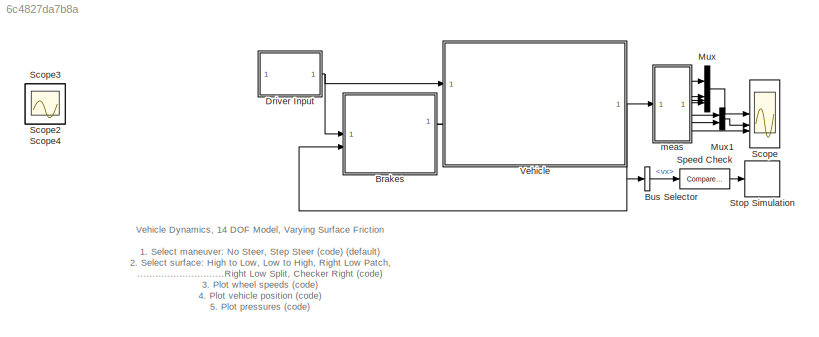
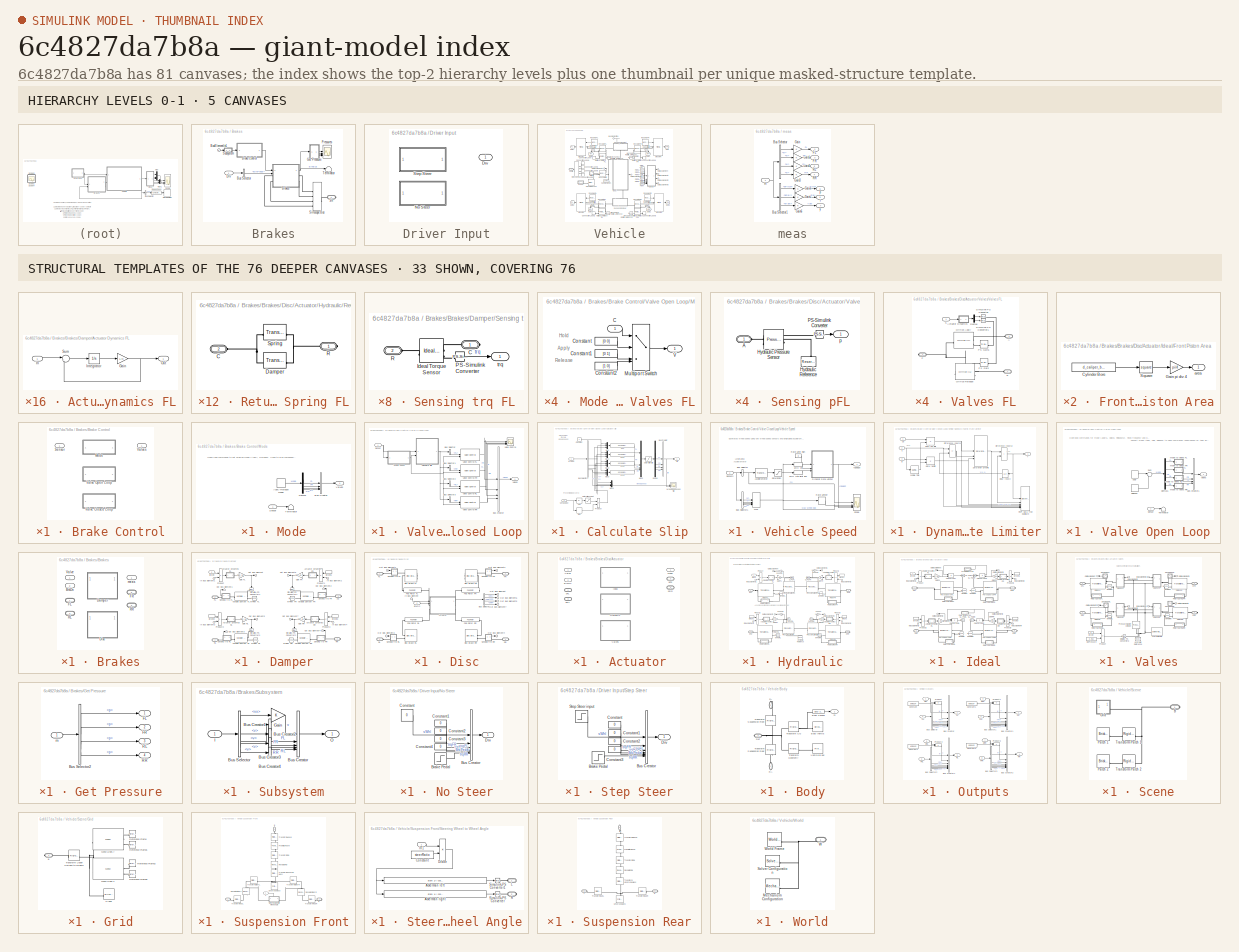
[diagram: thumbnail index - top-2 hierarchy levels (5 canvases) + 33 structural-template representatives of the remaining 76 canvases]
MODEL slx_6c4827da7b8a
KIND model
CONFIG AbsTol = 1e-3
CONFIG EnableMultiTasking = on
CONFIG MaxStep = 0.2
CONFIG PostLoadFcn = sm_vehicle_2axle_heave_roll_param\nsm_vehicle_2axle_heave_roll_scene\nsm_vehicle_2axle_heave_roll_config_maneuver(bdroot,VehicleData,'plateau');\nset_param([bdroot '/Vehicle'],'popup_surface_conditions','Checker Right');
CONFIG SolverName = ode23t
CONFIG StartFcn = tic
CONFIG StopFcn = Elapsed_Sim_Time = toc;
CONFIG StopTime = 14.2
BLOCK [SubSystem] Brakes
  AttributesFormatString = Disc, Pressure
BLOCK [SubSystem] Brakes/Brake Control
  AttributesFormatString = %<control_mode>
  LabelModeActiveChoice = Mode
  Variant = on
  VariantControl = Variant1
  VariantControlMode = label
BLOCK [Outport] Brakes/Brake Control/ Valves
  VectorParamsAs1DForOutWhenUnconnected = off
BLOCK [SubSystem] Brakes/Brake Control/Mode
  VariantControl = Mode
BLOCK [DiscretePulseGenerator] Brakes/Brake Control/Mode/Apply Release Mode
  Amplitude = [1 1 1 1]
  Period = 0.1
  PulseType = Time based
  PulseWidth = 60
BLOCK [BusCreator] Brakes/Brake Control/Mode/Bus Creator
  DisplayOption = bar
  InheritFromInputs = on
  Inputs = 4
BLOCK [Demux] Brakes/Brake Control/Mode/Demux
BLOCK [Inport] Brakes/Brake Control/Mode/Sensor
BLOCK [Terminator] Brakes/Brake Control/Mode/Terminator
BLOCK [Outport] Brakes/Brake Control/Mode/Valves
  VectorParamsAs1DForOutWhenUnconnected = off
BLOCK [Inport] Brakes/Brake Control/Sensor
BLOCK [SubSystem] Brakes/Brake Control/Valve Closed Loop
  VariantControl = Valve_Closed_Loop
BLOCK [BusCreator] Brakes/Brake Control/Valve Closed Loop/Bus Creator
  DisplayOption = bar
  InheritFromInputs = on
  Inputs = 4
BLOCK [BusSelector] Brakes/Brake Control/Valve Closed Loop/Bus Selector
  OutputSignals = FL
BLOCK [BusSelector] Brakes/Brake Control/Valve Closed Loop/Bus Selector1
  OutputSignals = FR
BLOCK [BusSelector] Brakes/Brake Control/Valve Closed Loop/Bus Selector2
  OutputSignals = RL
BLOCK [BusSelector] Brakes/Brake Control/Valve Closed Loop/Bus Selector3
  OutputSignals = RR
BLOCK [SubSystem] Brakes/Brake Control/Valve Closed Loop/Calculate Slip
BLOCK [Abs] Brakes/Brake Control/Valve Closed Loop/Calculate Slip/Abs
  SaturateOnIntegerOverflow = off
  ZeroCross = off
BLOCK [BusCreator] Brakes/Brake Control/Valve Closed Loop/Calculate Slip/Bus Creator
  DisplayOption = bar
  InheritFromInputs = on
  Inputs = 4
BLOCK [BusSelector] Brakes/Brake Control/Valve Closed Loop/Calculate Slip/Bus Selector1
  OutputSignals = FL.v,FR.v,RL.v,RR.v
BLOCK [Constant] Brakes/Brake Control/Valve Closed Loop/Calculate Slip/Constant
BLOCK [Demux] Brakes/Brake Control/Valve Closed Loop/Calculate Slip/Demux
BLOCK [Fcn] Brakes/Brake Control/Valve Closed Loop/Calculate Slip/Fcn
  Expr = abs(u(1)*u(2)-u(3))/u(3)
BLOCK [Fcn] Brakes/Brake Control/Valve Closed Loop/Calculate Slip/Fcn1
  Expr = abs(u(1)*u(2)-u(3))/u(3)
BLOCK [Fcn] Brakes/Brake Control/Valve Closed Loop/Calculate Slip/Fcn2
  Expr = abs(u(1)*u(2)-u(3))/u(3)
BLOCK [Fcn] Brakes/Brake Control/Valve Closed Loop/Calculate Slip/Fcn3
  Expr = abs(u(1)*u(2)-u(3))/u(3)
BLOCK [Mux] Brakes/Brake Control/Valve Closed Loop/Calculate Slip/Mux
  DisplayOption = bar
  Inputs = 3
BLOCK [Mux] Brakes/Brake Control/Valve Closed Loop/Calculate Slip/Mux1
  DisplayOption = bar
  Inputs = 3
BLOCK [Mux] Brakes/Brake Control/Valve Closed Loop/Calculate Slip/Mux2
  DisplayOption = bar
  Inputs = 3
BLOCK [Mux] Brakes/Brake Control/Valve Closed Loop/Calculate Slip/Mux3
  DisplayOption = bar
  Inputs = 3
BLOCK [Mux] Brakes/Brake Control/Valve Closed Loop/Calculate Slip/Mux4
  DisplayOption = bar
BLOCK [Mux] Brakes/Brake Control/Valve Closed Loop/Calculate Slip/Mux5
  DisplayOption = bar
BLOCK [Product] Brakes/Brake Control/Valve Closed Loop/Calculate Slip/Product
BLOCK [Saturate] Brakes/Brake Control/Valve Closed Loop/Calculate Slip/Saturation Slip
  LowerLimit = 0
  UpperLimit = 1
BLOCK [Saturate] Brakes/Brake Control/Valve Closed Loop/Calculate Slip/Saturation vsEst
  LowerLimit = eps
  UpperLimit = inf
  ZeroCross = off
BLOCK [Signum] Brakes/Brake Control/Valve Closed Loop/Calculate Slip/Sign
  ZeroCross = off
BLOCK [Outport] Brakes/Brake Control/Valve Closed Loop/Calculate Slip/Slip
  VectorParamsAs1DForOutWhenUnconnected = off
BLOCK [Inport] Brakes/Brake Control/Valve Closed Loop/Calculate Slip/VehSpdEst
  Port = 2
BLOCK [Scope] Brakes/Brake Control/Valve Closed Loop/Calculate Slip/Wheel Speeds and Slip
  ActiveDisplayYMaximum = 23.14687
  ActiveDisplayYMinimum = -2.4876
  DataLoggingVariableName = ScopeData2
  Floating = off
  GraphicalSettings = {"GraphicalSettings":{"LegacySettings":true,"Style":{"AxesScalingProperties":{"ScaleAxesLimitsAtStop":false},"Style":{"AxesColor":"[0 0 0]","ChannelNames":["",""],"ColorOrder":"[1 1 0.0666666666666667;0.0745098039215686 0.623529411764706 1;1 0.411764705882353 0.16078431372549;0.392156862745098 0.831372549019608 0.0745098039215686;0.717647058823529 0.274509803921569 1;0.0588235294117647 1 1;1 0.074...<+473ch>
  LayoutDimensionsString = [2 1]
  MultipleDisplayCache = [{"MaxYLimMag":23.14687,"MaxYLimReal":23.14687,"MinYLimMag":0,"MinYLimReal":-2.4876,"PlotAsMagnitudePhase":false,"ShowGrid":true,"ShowLegend":true,"Title":"%<SignalLabel>","YLabel":""},{"MaxYLimMag":31.375,"MaxYLimReal":0.6653,"MinYLimMag":0,"MinYLimReal":-0.07392,"PlotAsMagnitudePhase":false,"ShowGrid":true,"ShowLegend":true,"Title":"%<SignalLabel>","YLabel":""}]
  NumInputPorts = 2
  ShowLegend = on
  WasSavedAsWebScope = on
  WindowPosition = [1007 466 560 420]
BLOCK [Inport] Brakes/Brake Control/Valve Closed Loop/Calculate Slip/WhlSpd
BLOCK [Inport] Brakes/Brake Control/Valve Closed Loop/Sensor
BLOCK [Scope] Brakes/Brake Control/Valve Closed Loop/Valve Control
  ActiveDisplayYMaximum = 1.125
  ActiveDisplayYMinimum = -0.125
  DataLoggingVariableName = ScopeData1
  Floating = off
  GraphicalSettings = {"GraphicalSettings":{"LegacySettings":true,"Style":{"AxesScalingProperties":{"ScaleAxesLimitsAtStop":false},"Style":{"AxesColor":"[0 0 0]","ChannelNames":["","","",""],"ColorOrder":"[1 1 0.0666666666666667;0.0745098039215686 0.623529411764706 1;1 0.411764705882353 0.16078431372549;0.392156862745098 0.831372549019608 0.0745098039215686;0.717647058823529 0.274509803921569 1;0.0588235294117647 1 1;1...<+556ch>
  LayoutDimensionsString = [2 2]
  MultipleDisplayCache = [{"MaxYLimMag":1.125,"MaxYLimReal":1.125,"MinYLimMag":0,"MinYLimReal":-0.125,"PlotAsMagnitudePhase":false,"ShowGrid":true,"ShowLegend":true,"Title":"%<SignalLabel>","YLabel":""},{"MaxYLimMag":1,"MaxYLimReal":1.125,"MinYLimMag":0,"MinYLimReal":-0.125,"PlotAsMagnitudePhase":false,"ShowGrid":true,"ShowLegend":true,"Title":"%<SignalLabel>","YLabel":""},{"MaxYLimMag":1,"MaxYLimReal":1.125,"MinYLimMag":...<+297ch>
  NumInputPorts = 4
  ShowLegend = on
  WasSavedAsWebScope = on
  WindowPosition = [135 362 546 361]
BLOCK [Reference] Brakes/Brake Control/Valve Closed Loop/Valve Control FL  REF=sm_vehicle_utilities_lib/Valve Control  (lib defined in slx_7901a99a1966, slx_bde73e06ff5b)
  SourceBlock = sm_vehicle_utilities_lib/Valve Control
  SourceType = SubSystem
BLOCK [Reference] Brakes/Brake Control/Valve Closed Loop/Valve Control FR  REF=sm_vehicle_utilities_lib/Valve Control  (lib defined in slx_7901a99a1966, slx_bde73e06ff5b)
  SourceBlock = sm_vehicle_utilities_lib/Valve Control
  SourceType = SubSystem
BLOCK [Reference] Brakes/Brake Control/Valve Closed Loop/Valve Control RL  REF=sm_vehicle_utilities_lib/Valve Control  (lib defined in slx_7901a99a1966, slx_bde73e06ff5b)
  SourceBlock = sm_vehicle_utilities_lib/Valve Control
  SourceType = SubSystem
BLOCK [Reference] Brakes/Brake Control/Valve Closed Loop/Valve Control RR  REF=sm_vehicle_utilities_lib/Valve Control  (lib defined in slx_7901a99a1966, slx_bde73e06ff5b)
  SourceBlock = sm_vehicle_utilities_lib/Valve Control
  SourceType = SubSystem
BLOCK [Outport] Brakes/Brake Control/Valve Closed Loop/Valves
  VectorParamsAs1DForOutWhenUnconnected = off
BLOCK [SubSystem] Brakes/Brake Control/Valve Closed Loop/Vehicle Speed
BLOCK [Reference] Brakes/Brake Control/Valve Closed Loop/Vehicle Speed/Accelerometer  REF=simulink_extras/Additional
Linear/Transfer Fcn
(with initial states)
  SourceBlock = simulink_extras/Additional\nLinear/Transfer Fcn\n(with initial states)
  SourceType = Transfer Function with Initial States
BLOCK [BusSelector] Brakes/Brake Control/Valve Closed Loop/Vehicle Speed/Bus Selector
  OutputSignals = v
BLOCK [BusSelector] Brakes/Brake Control/Valve Closed Loop/Vehicle Speed/Bus Selector1
  OutputSignals = FL.v,FR.v,RL.v,RR.v
BLOCK [SubSystem] Brakes/Brake Control/Valve Closed Loop/Vehicle Speed/Dynamic Rate Limiter
BLOCK [UnitDelay] Brakes/Brake Control/Valve Closed Loop/Vehicle Speed/Dynamic Rate Limiter/Delay Input2
  Description = Store in Global RAM
  DisableCoverage = on
  InitialCondition = InitVehicle.Vehicle.vx
  NameLocation = top
  SampleTime = -1
BLOCK [Sum] Brakes/Brake Control/Valve Closed Loop/Vehicle Speed/Dynamic Rate Limiter/Difference Inputs1
  Description = Add in CPU
  DisableCoverage = on
  IconShape = rectangular
  Inputs = +-
  OutDataTypeStr = Inherit: Inherit via back propagation
BLOCK [Sum] Brakes/Brake Control/Valve Closed Loop/Vehicle Speed/Dynamic Rate Limiter/Difference Inputs2
  Description = Add in CPU
  IconShape = rectangular
  OutDataTypeStr = Inherit: Inherit via back propagation
BLOCK [DataTypeDuplicate] Brakes/Brake Control/Valve Closed Loop/Vehicle Speed/Dynamic Rate Limiter/FixPt Data Type Duplicate
  DisableCoverage = on
  NumInputPorts = 7
BLOCK [Reference] Brakes/Brake Control/Valve Closed Loop/Vehicle Speed/Dynamic Rate Limiter/Saturation Dynamic  REF=sl_discontinuities/Saturation
Dynamic
  SourceBlock = sl_discontinuities/Saturation\nDynamic
  SourceType = Saturation Dynamic
BLOCK [Outport] Brakes/Brake Control/Valve Closed Loop/Vehicle Speed/Dynamic Rate Limiter/Y
  InitialOutput = 0
  VectorParamsAs1DForOutWhenUnconnected = off
BLOCK [Product] Brakes/Brake Control/Valve Closed Loop/Vehicle Speed/Dynamic Rate Limiter/delta fall limit
  DisableCoverage = on
  Inputs = **
  OutDataTypeStr = Inherit: Inherit via back propagation
  SaturateOnIntegerOverflow = on
BLOCK [Product] Brakes/Brake Control/Valve Closed Loop/Vehicle Speed/Dynamic Rate Limiter/delta rise limit
  DisableCoverage = on
  Inputs = **
  OutDataTypeStr = Inherit: Inherit via back propagation
  SaturateOnIntegerOverflow = on
BLOCK [Inport] Brakes/Brake Control/Valve Closed Loop/Vehicle Speed/Dynamic Rate Limiter/lo
  Port = 3
BLOCK [SampleTimeMath] Brakes/Brake Control/Valve Closed Loop/Vehicle Speed/Dynamic Rate Limiter/sample time
  DisableCoverage = on
  TsampMathOp = Ts Only
  weightValue = 1
BLOCK [Inport] Brakes/Brake Control/Valve Closed Loop/Vehicle Speed/Dynamic Rate Limiter/u
  Port = 2
BLOCK [Inport] Brakes/Brake Control/Valve Closed Loop/Vehicle Speed/Dynamic Rate Limiter/up
BLOCK [MinMax] Brakes/Brake Control/Valve Closed Loop/Vehicle Speed/Max
  Function = max
  Inputs = 4
BLOCK [Constant] Brakes/Brake Control/Valve Closed Loop/Vehicle Speed/Rate Limit high
  Value = 8
BLOCK [RateLimiter] Brakes/Brake Control/Valve Closed Loop/Vehicle Speed/Rate Limiter
  FallingSlewLimit = -4
  RisingSlewLimit = 8
  SampleTimeMode = inherited
BLOCK [Saturate] Brakes/Brake Control/Valve Closed Loop/Vehicle Speed/Saturation
  LowerLimit = -inf
  UpperLimit = 0
BLOCK [Scope] Brakes/Brake Control/Valve Closed Loop/Vehicle Speed/Scope
  ActiveDisplayYMaximum = 22.93912
  ActiveDisplayYMinimum = -0.6179
  DataLoggingVariableName = ScopeData1
  Floating = off
  GraphicalSettings = {"GraphicalSettings":{"LegacySettings":true,"Style":{"AxesScalingProperties":{"ScaleAxesLimitsAtStop":false},"Style":{"AxesColor":"[0 0 0]","ChannelNames":[""],"ColorOrder":"[1 1 0.0666666666666667;0.0745098039215686 0.623529411764706 1;1 0.411764705882353 0.16078431372549;0.392156862745098 0.831372549019608 0.0745098039215686;0.717647058823529 0.274509803921569 1;0.0588235294117647 1 1;1 0.074509...<+433ch>
  MultipleDisplayCache = [{"MaxYLimMag":22.93912,"MaxYLimReal":22.93912,"MinYLimMag":0,"MinYLimReal":-0.6179,"PlotAsMagnitudePhase":false,"ShowGrid":true,"ShowLegend":true,"Title":"%<SignalLabel>","YLabel":""}]
  NumInputPorts = 4
  ShowLegend = on
  WasSavedAsWebScope = on
  WindowPosition = [400 257 562 505]
BLOCK [Inport] Brakes/Brake Control/Valve Closed Loop/Vehicle Speed/Sensors
BLOCK [ZeroOrderHold] Brakes/Brake Control/Valve Closed Loop/Vehicle Speed/ZOH rate limit low
  SampleTime = 1e-2
BLOCK [ZeroOrderHold] Brakes/Brake Control/Valve Closed Loop/Vehicle Speed/ZOH vel
  SampleTime = 1e-2
BLOCK [Outport] Brakes/Brake Control/Valve Closed Loop/Vehicle Speed/vSpdEst
  VectorParamsAs1DForOutWhenUnconnected = off
BLOCK [SubSystem] Brakes/Brake Control/Valve Open Loop
  VariantControl = Valve_Open_Loop
BLOCK [DiscretePulseGenerator] Brakes/Brake Control/Valve Open Loop/Apply
  Amplitude = [1 1 1 1]
  Period = 0.1
  PulseType = Time based
  PulseWidth = 6
BLOCK [BusCreator] Brakes/Brake Control/Valve Open Loop/Bus Creator1
  DisplayOption = bar
  InheritFromInputs = on
  Inputs = 4
BLOCK [Demux] Brakes/Brake Control/Valve Open Loop/Demux1
BLOCK [SubSystem] Brakes/Brake Control/Valve Open Loop/Mode to Valves FL
  NameLocation = top
BLOCK [Inport] Brakes/Brake Control/Valve Open Loop/Mode to Valves FL/C
  NameLocation = top
BLOCK [Constant] Brakes/Brake Control/Valve Open Loop/Mode to Valves FL/Constant
  Value = [0 0]
BLOCK [Constant] Brakes/Brake Control/Valve Open Loop/Mode to Valves FL/Constant1
  Value = [0 1]
BLOCK [Constant] Brakes/Brake Control/Valve Open Loop/Mode to Valves FL/Constant2
  Value = [1 0]
BLOCK [MultiPortSwitch] Brakes/Brake Control/Valve Open Loop/Mode to Valves FL/Multiport Switch
  DataPortOrder = Zero-based contiguous
  InputSameDT = off
  SaturateOnIntegerOverflow = off
  zeroidx = on
BLOCK [Outport] Brakes/Brake Control/Valve Open Loop/Mode to Valves FL/V
  VectorParamsAs1DForOutWhenUnconnected = off
BLOCK [SubSystem] Brakes/Brake Control/Valve Open Loop/Mode to Valves FR
  NameLocation = top
BLOCK [Inport] Brakes/Brake Control/Valve Open Loop/Mode to Valves FR/C
  NameLocation = top
BLOCK [Constant] Brakes/Brake Control/Valve Open Loop/Mode to Valves FR/Constant
  Value = [0 0]
BLOCK [Constant] Brakes/Brake Control/Valve Open Loop/Mode to Valves FR/Constant1
  Value = [0 1]
BLOCK [Constant] Brakes/Brake Control/Valve Open Loop/Mode to Valves FR/Constant2
  Value = [1 0]
BLOCK [MultiPortSwitch] Brakes/Brake Control/Valve Open Loop/Mode to Valves FR/Multiport Switch
  DataPortOrder = Zero-based contiguous
  InputSameDT = off
  SaturateOnIntegerOverflow = off
  zeroidx = on
BLOCK [Outport] Brakes/Brake Control/Valve Open Loop/Mode to Valves FR/V
  VectorParamsAs1DForOutWhenUnconnected = off
BLOCK [SubSystem] Brakes/Brake Control/Valve Open Loop/Mode to Valves RL
  NameLocation = top
BLOCK [Inport] Brakes/Brake Control/Valve Open Loop/Mode to Valves RL/C
  NameLocation = top
BLOCK [Constant] Brakes/Brake Control/Valve Open Loop/Mode to Valves RL/Constant
  Value = [0 0]
BLOCK [Constant] Brakes/Brake Control/Valve Open Loop/Mode to Valves RL/Constant1
  Value = [0 1]
BLOCK [Constant] Brakes/Brake Control/Valve Open Loop/Mode to Valves RL/Constant2
  Value = [1 0]
BLOCK [MultiPortSwitch] Brakes/Brake Control/Valve Open Loop/Mode to Valves RL/Multiport Switch
  DataPortOrder = Zero-based contiguous
  InputSameDT = off
  SaturateOnIntegerOverflow = off
  zeroidx = on
BLOCK [Outport] Brakes/Brake Control/Valve Open Loop/Mode to Valves RL/V
  VectorParamsAs1DForOutWhenUnconnected = off
BLOCK [SubSystem] Brakes/Brake Control/Valve Open Loop/Mode to Valves RR
BLOCK [Inport] Brakes/Brake Control/Valve Open Loop/Mode to Valves RR/C
  NameLocation = top
BLOCK [Constant] Brakes/Brake Control/Valve Open Loop/Mode to Valves RR/Constant
  Value = [0 0]
BLOCK [Constant] Brakes/Brake Control/Valve Open Loop/Mode to Valves RR/Constant1
  Value = [0 1]
BLOCK [Constant] Brakes/Brake Control/Valve Open Loop/Mode to Valves RR/Constant2
  Value = [1 0]
BLOCK [MultiPortSwitch] Brakes/Brake Control/Valve Open Loop/Mode to Valves RR/Multiport Switch
  DataPortOrder = Zero-based contiguous
  InputSameDT = off
  SaturateOnIntegerOverflow = off
  zeroidx = on
BLOCK [Outport] Brakes/Brake Control/Valve Open Loop/Mode to Valves RR/V
  VectorParamsAs1DForOutWhenUnconnected = off
BLOCK [DiscretePulseGenerator] Brakes/Brake Control/Valve Open Loop/Release
  Amplitude = [1 1 1 1]*2
  Period = 0.1
  PhaseDelay = 0.1*0.2
  PulseType = Time based
  PulseWidth = 6
BLOCK [Inport] Brakes/Brake Control/Valve Open Loop/Sensor
BLOCK [Sum] Brakes/Brake Control/Valve Open Loop/Sum
  Inputs = |++
BLOCK [Terminator] Brakes/Brake Control/Valve Open Loop/Terminator
BLOCK [Outport] Brakes/Brake Control/Valve Open Loop/Valves
  VectorParamsAs1DForOutWhenUnconnected = off
BLOCK [SubSystem] Brakes/Brakes
  AttributesFormatString = %<brake_type>, %<actuator_type>
  LabelModeActiveChoice = Disc
  Variant = on
  VariantControl = Variant1
  VariantControlMode = label
BLOCK [PMIOPort] Brakes/Brakes/ FL
  Side = Left
BLOCK [PMIOPort] Brakes/Brakes/ RL
  Port = 3
  Side = Left
BLOCK [Outport] Brakes/Brakes/ meas
  VectorParamsAs1DForOutWhenUnconnected = off
BLOCK [Inport] Brakes/Brakes/BrkOn
  Port = 2
BLOCK [SubSystem] Brakes/Brakes/Damper
  VariantControl = Damper
BLOCK [SubSystem] Brakes/Brakes/Damper/Actuator Dynamics FL
BLOCK [Gain] Brakes/Brakes/Damper/Actuator Dynamics FL/Gain
  Gain = 1./b
BLOCK [Inport] Brakes/Brakes/Damper/Actuator Dynamics FL/In
BLOCK [Integrator] Brakes/Brakes/Damper/Actuator Dynamics FL/Integrator
  InitialCondition = x_initial.*b
BLOCK [Outport] Brakes/Brakes/Damper/Actuator Dynamics FL/Out
  VectorParamsAs1DForOutWhenUnconnected = off
BLOCK [Sum] Brakes/Brakes/Damper/Actuator Dynamics FL/Sum
  InputSameDT = on
  Inputs = |+-
  OutDataTypeStr = Inherit: Same as first input
  SaturateOnIntegerOverflow = on
BLOCK [SubSystem] Brakes/Brakes/Damper/Actuator Dynamics FR
  NameLocation = top
BLOCK [Gain] Brakes/Brakes/Damper/Actuator Dynamics FR/Gain
  Gain = 1./b
BLOCK [Inport] Brakes/Brakes/Damper/Actuator Dynamics FR/In
BLOCK [Integrator] Brakes/Brakes/Damper/Actuator Dynamics FR/Integrator
  InitialCondition = x_initial.*b
BLOCK [Outport] Brakes/Brakes/Damper/Actuator Dynamics FR/Out
  VectorParamsAs1DForOutWhenUnconnected = off
BLOCK [Sum] Brakes/Brakes/Damper/Actuator Dynamics FR/Sum
  InputSameDT = on
  Inputs = |+-
  OutDataTypeStr = Inherit: Same as first input
  SaturateOnIntegerOverflow = on
BLOCK [SubSystem] Brakes/Brakes/Damper/Actuator Dynamics RL
BLOCK [Gain] Brakes/Brakes/Damper/Actuator Dynamics RL/Gain
  Gain = 1./b
BLOCK [Inport] Brakes/Brakes/Damper/Actuator Dynamics RL/In
BLOCK [Integrator] Brakes/Brakes/Damper/Actuator Dynamics RL/Integrator
  InitialCondition = x_initial.*b
BLOCK [Outport] Brakes/Brakes/Damper/Actuator Dynamics RL/Out
  VectorParamsAs1DForOutWhenUnconnected = off
BLOCK [Sum] Brakes/Brakes/Damper/Actuator Dynamics RL/Sum
  InputSameDT = on
  Inputs = |+-
  OutDataTypeStr = Inherit: Same as first input
  SaturateOnIntegerOverflow = on
BLOCK [SubSystem] Brakes/Brakes/Damper/Actuator Dynamics RR
BLOCK [Gain] Brakes/Brakes/Damper/Actuator Dynamics RR/Gain
  Gain = 1./b
BLOCK [Inport] Brakes/Brakes/Damper/Actuator Dynamics RR/In
BLOCK [Integrator] Brakes/Brakes/Damper/Actuator Dynamics RR/Integrator
  InitialCondition = x_initial.*b
BLOCK [Outport] Brakes/Brakes/Damper/Actuator Dynamics RR/Out
  VectorParamsAs1DForOutWhenUnconnected = off
BLOCK [Sum] Brakes/Brakes/Damper/Actuator Dynamics RR/Sum
  InputSameDT = on
  Inputs = |+-
  OutDataTypeStr = Inherit: Same as first input
  SaturateOnIntegerOverflow = on
BLOCK [Inport] Brakes/Brakes/Damper/BrkOn
  Port = 2
BLOCK [InportShadow] Brakes/Brakes/Damper/BrkOn1
  Port = 2
BLOCK [InportShadow] Brakes/Brakes/Damper/BrkOn2
  Port = 2
BLOCK [InportShadow] Brakes/Brakes/Damper/BrkOn3
  Port = 2
BLOCK [PMIOPort] Brakes/Brakes/Damper/FL
  Side = Left
BLOCK [PMIOPort] Brakes/Brakes/Damper/FR
  Port = 2
  Side = Right
BLOCK [Gain] Brakes/Brakes/Damper/Gain FL
  Gain = max_visc_frict
BLOCK [Gain] Brakes/Brakes/Damper/Gain FR
  Gain = max_visc_frict
  NameLocation = top
BLOCK [Gain] Brakes/Brakes/Damper/Gain RL
  Gain = max_visc_frict
BLOCK [Gain] Brakes/Brakes/Damper/Gain RR
  Gain = max_visc_frict
BLOCK [Inport] Brakes/Brakes/Damper/In Bus Element1
BLOCK [Inport] Brakes/Brakes/Damper/In Bus Element2
BLOCK [Inport] Brakes/Brakes/Damper/In Bus Element3
BLOCK [Inport] Brakes/Brakes/Damper/In Bus Element4
BLOCK [Reference] Brakes/Brakes/Damper/MRRef FL  REF=fl_lib/Mechanical/Rotational Elements/Mechanical
Rotational Reference
  SourceBlock = fl_lib/Mechanical/Rotational Elements/Mechanical\nRotational Reference
  SourceType = Mechanical\nRotational Reference
BLOCK [Reference] Brakes/Brakes/Damper/MRRef FR  REF=fl_lib/Mechanical/Rotational Elements/Mechanical
Rotational Reference
  SourceBlock = fl_lib/Mechanical/Rotational Elements/Mechanical\nRotational Reference
  SourceType = Mechanical\nRotational Reference
BLOCK [Reference] Brakes/Brakes/Damper/MRRef RL  REF=fl_lib/Mechanical/Rotational Elements/Mechanical
Rotational Reference
  SourceBlock = fl_lib/Mechanical/Rotational Elements/Mechanical\nRotational Reference
  SourceType = Mechanical\nRotational Reference
BLOCK [Reference] Brakes/Brakes/Damper/MRRef RR  REF=fl_lib/Mechanical/Rotational Elements/Mechanical
Rotational Reference
  SourceBlock = fl_lib/Mechanical/Rotational Elements/Mechanical\nRotational Reference
  SourceType = Mechanical\nRotational Reference
BLOCK [Outport] Brakes/Brakes/Damper/Out Bus Element
  VectorParamsAs1DForOutWhenUnconnected = off
BLOCK [Outport] Brakes/Brakes/Damper/Out Bus Element1
  VectorParamsAs1DForOutWhenUnconnected = off
BLOCK [Outport] Brakes/Brakes/Damper/Out Bus Element2
  VectorParamsAs1DForOutWhenUnconnected = off
BLOCK [Outport] Brakes/Brakes/Damper/Out Bus Element3
  VectorParamsAs1DForOutWhenUnconnected = off
BLOCK [Outport] Brakes/Brakes/Damper/Out Bus Element4
  VectorParamsAs1DForOutWhenUnconnected = off
BLOCK [Outport] Brakes/Brakes/Damper/Out Bus Element5
  VectorParamsAs1DForOutWhenUnconnected = off
BLOCK [Outport] Brakes/Brakes/Damper/Out Bus Element6
  VectorParamsAs1DForOutWhenUnconnected = off
BLOCK [Outport] Brakes/Brakes/Damper/Out Bus Element7
  VectorParamsAs1DForOutWhenUnconnected = off
BLOCK [Product] Brakes/Brakes/Damper/Product
BLOCK [Product] Brakes/Brakes/Damper/Product1
BLOCK [Product] Brakes/Brakes/Damper/Product2
BLOCK [Product] Brakes/Brakes/Damper/Product3
BLOCK [PMIOPort] Brakes/Brakes/Damper/RL
  Port = 3
  Side = Left
BLOCK [PMIOPort] Brakes/Brakes/Damper/RR
  Port = 4
  Side = Right
BLOCK [SubSystem] Brakes/Brakes/Damper/Sensing trq FL
BLOCK [PMIOPort] Brakes/Brakes/Damper/Sensing trq FL/C
  NameLocation = top
  Side = Right
BLOCK [Reference] Brakes/Brakes/Damper/Sensing trq FL/Ideal Torque Sensor  REF=fl_lib/Mechanical/Mechanical Sensors/Ideal Torque Sensor
  SourceBlock = fl_lib/Mechanical/Mechanical Sensors/Ideal Torque Sensor
  SourceType = Ideal Torque Sensor
BLOCK [Reference] Brakes/Brakes/Damper/Sensing trq FL/PS-Simulink Converter  REF=nesl_utility/PS-Simulink
Converter
  SourceBlock = nesl_utility/PS-Simulink\nConverter
  SourceType = PS-Simulink\nConverter
BLOCK [PMIOPort] Brakes/Brakes/Damper/Sensing trq FL/R
  Port = 2
  Side = Left
BLOCK [Outport] Brakes/Brakes/Damper/Sensing trq FL/trq
  VectorParamsAs1DForOutWhenUnconnected = off
BLOCK [SubSystem] Brakes/Brakes/Damper/Sensing trq FR
BLOCK [PMIOPort] Brakes/Brakes/Damper/Sensing trq FR/C
  NameLocation = top
  Side = Right
BLOCK [Reference] Brakes/Brakes/Damper/Sensing trq FR/Ideal Torque Sensor  REF=fl_lib/Mechanical/Mechanical Sensors/Ideal Torque Sensor
  SourceBlock = fl_lib/Mechanical/Mechanical Sensors/Ideal Torque Sensor
  SourceType = Ideal Torque Sensor
BLOCK [Reference] Brakes/Brakes/Damper/Sensing trq FR/PS-Simulink Converter  REF=nesl_utility/PS-Simulink
Converter
  SourceBlock = nesl_utility/PS-Simulink\nConverter
  SourceType = PS-Simulink\nConverter
BLOCK [PMIOPort] Brakes/Brakes/Damper/Sensing trq FR/R
  Port = 2
  Side = Left
BLOCK [Outport] Brakes/Brakes/Damper/Sensing trq FR/trq
  VectorParamsAs1DForOutWhenUnconnected = off
BLOCK [SubSystem] Brakes/Brakes/Damper/Sensing trq RL
BLOCK [PMIOPort] Brakes/Brakes/Damper/Sensing trq RL/C
  NameLocation = top
  Side = Right
BLOCK [Reference] Brakes/Brakes/Damper/Sensing trq RL/Ideal Torque Sensor  REF=fl_lib/Mechanical/Mechanical Sensors/Ideal Torque Sensor
  SourceBlock = fl_lib/Mechanical/Mechanical Sensors/Ideal Torque Sensor
  SourceType = Ideal Torque Sensor
BLOCK [Reference] Brakes/Brakes/Damper/Sensing trq RL/PS-Simulink Converter  REF=nesl_utility/PS-Simulink
Converter
  SourceBlock = nesl_utility/PS-Simulink\nConverter
  SourceType = PS-Simulink\nConverter
BLOCK [PMIOPort] Brakes/Brakes/Damper/Sensing trq RL/R
  Port = 2
  Side = Left
BLOCK [Outport] Brakes/Brakes/Damper/Sensing trq RL/trq
  VectorParamsAs1DForOutWhenUnconnected = off
BLOCK [SubSystem] Brakes/Brakes/Damper/Sensing trq RR
BLOCK [PMIOPort] Brakes/Brakes/Damper/Sensing trq RR/C
  NameLocation = top
  Side = Right
BLOCK [Reference] Brakes/Brakes/Damper/Sensing trq RR/Ideal Torque Sensor  REF=fl_lib/Mechanical/Mechanical Sensors/Ideal Torque Sensor
  SourceBlock = fl_lib/Mechanical/Mechanical Sensors/Ideal Torque Sensor
  SourceType = Ideal Torque Sensor
BLOCK [Reference] Brakes/Brakes/Damper/Sensing trq RR/PS-Simulink Converter  REF=nesl_utility/PS-Simulink
Converter
  SourceBlock = nesl_utility/PS-Simulink\nConverter
  SourceType = PS-Simulink\nConverter
BLOCK [PMIOPort] Brakes/Brakes/Damper/Sensing trq RR/R
  Port = 2
  Side = Left
BLOCK [Outport] Brakes/Brakes/Damper/Sensing trq RR/trq
  VectorParamsAs1DForOutWhenUnconnected = off
BLOCK [Reference] Brakes/Brakes/Damper/Simulink-PS Converter1  REF=nesl_utility/Simulink-PS
Converter
  NameLocation = right
  SourceBlock = nesl_utility/Simulink-PS\nConverter
  SourceType = Simulink-PS\nConverter
BLOCK [Reference] Brakes/Brakes/Damper/Simulink-PS Converter2  REF=nesl_utility/Simulink-PS
Converter
  NameLocation = right
  SourceBlock = nesl_utility/Simulink-PS\nConverter
  SourceType = Simulink-PS\nConverter
BLOCK [Reference] Brakes/Brakes/Damper/Simulink-PS Converter3  REF=nesl_utility/Simulink-PS
Converter
  NameLocation = left
  SourceBlock = nesl_utility/Simulink-PS\nConverter
  SourceType = Simulink-PS\nConverter
BLOCK [Reference] Brakes/Brakes/Damper/Simulink-PS Converter4  REF=nesl_utility/Simulink-PS
Converter
  NameLocation = left
  SourceBlock = nesl_utility/Simulink-PS\nConverter
  SourceType = Simulink-PS\nConverter
BLOCK [Reference] Brakes/Brakes/Damper/Variable Damper FL  REF=sdl_lib/Couplings & Drives/Springs & Dampers/Variable Rotational
Damper
  SourceBlock = sdl_lib/Couplings & Drives/Springs & Dampers/Variable Rotational\nDamper
  SourceType = Variable Rotational\nDamper
BLOCK [Reference] Brakes/Brakes/Damper/Variable Damper FR  REF=sdl_lib/Couplings & Drives/Springs & Dampers/Variable Rotational
Damper
  SourceBlock = sdl_lib/Couplings & Drives/Springs & Dampers/Variable Rotational\nDamper
  SourceType = Variable Rotational\nDamper
BLOCK [Reference] Brakes/Brakes/Damper/Variable Damper RL  REF=sdl_lib/Couplings & Drives/Springs & Dampers/Variable Rotational
Damper
  SourceBlock = sdl_lib/Couplings & Drives/Springs & Dampers/Variable Rotational\nDamper
  SourceType = Variable Rotational\nDamper
BLOCK [Reference] Brakes/Brakes/Damper/Variable Damper RR  REF=sdl_lib/Couplings & Drives/Springs & Dampers/Variable Rotational
Damper
  SourceBlock = sdl_lib/Couplings & Drives/Springs & Dampers/Variable Rotational\nDamper
  SourceType = Variable Rotational\nDamper
BLOCK [SubSystem] Brakes/Brakes/Disc
  Tag = PublishSubsystem
  VariantControl = Disc
BLOCK [SubSystem] Brakes/Brakes/Disc/Actuator
  AttributesFormatString = %<ActiveVariant>
  LabelModeActiveChoice = Hydraulic
  Variant = on
  VariantControl = Function
  VariantControlMode = label
BLOCK [Inport] Brakes/Brakes/Disc/Actuator/BrkOn
  Port = 2
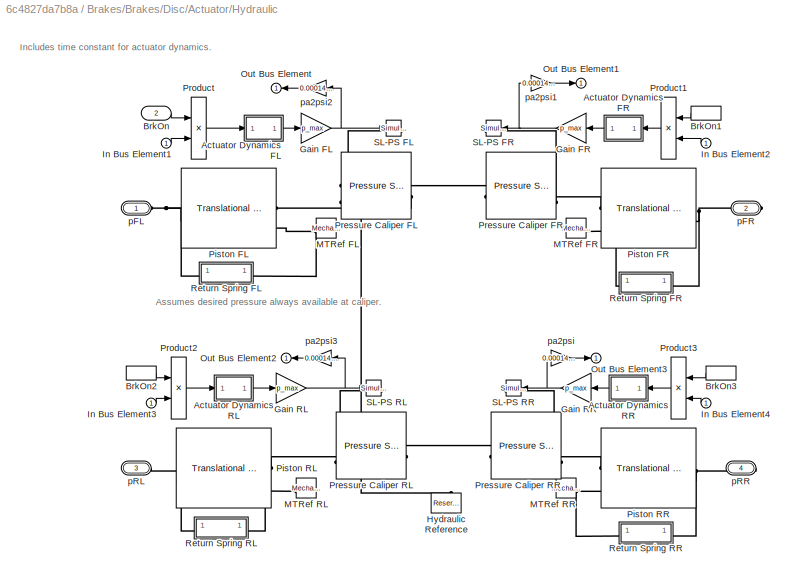
BLOCK [SubSystem] Brakes/Brakes/Disc/Actuator/Hydraulic
  VariantControl = Hydraulic
BLOCK [SubSystem] Brakes/Brakes/Disc/Actuator/Hydraulic/Actuator Dynamics FL
BLOCK [Gain] Brakes/Brakes/Disc/Actuator/Hydraulic/Actuator Dynamics FL/Gain
  Gain = 1./b
BLOCK [Inport] Brakes/Brakes/Disc/Actuator/Hydraulic/Actuator Dynamics FL/In
BLOCK [Integrator] Brakes/Brakes/Disc/Actuator/Hydraulic/Actuator Dynamics FL/Integrator
  InitialCondition = x_initial.*b
BLOCK [Outport] Brakes/Brakes/Disc/Actuator/Hydraulic/Actuator Dynamics FL/Out
  VectorParamsAs1DForOutWhenUnconnected = off
BLOCK [Sum] Brakes/Brakes/Disc/Actuator/Hydraulic/Actuator Dynamics FL/Sum
  InputSameDT = on
  Inputs = |+-
  OutDataTypeStr = Inherit: Same as first input
  SaturateOnIntegerOverflow = on
BLOCK [SubSystem] Brakes/Brakes/Disc/Actuator/Hydraulic/Actuator Dynamics FR
BLOCK [Gain] Brakes/Brakes/Disc/Actuator/Hydraulic/Actuator Dynamics FR/Gain
  Gain = 1./b
BLOCK [Inport] Brakes/Brakes/Disc/Actuator/Hydraulic/Actuator Dynamics FR/In
BLOCK [Integrator] Brakes/Brakes/Disc/Actuator/Hydraulic/Actuator Dynamics FR/Integrator
  InitialCondition = x_initial.*b
BLOCK [Outport] Brakes/Brakes/Disc/Actuator/Hydraulic/Actuator Dynamics FR/Out
  VectorParamsAs1DForOutWhenUnconnected = off
BLOCK [Sum] Brakes/Brakes/Disc/Actuator/Hydraulic/Actuator Dynamics FR/Sum
  InputSameDT = on
  Inputs = |+-
  OutDataTypeStr = Inherit: Same as first input
  SaturateOnIntegerOverflow = on
BLOCK [SubSystem] Brakes/Brakes/Disc/Actuator/Hydraulic/Actuator Dynamics RL
BLOCK [Gain] Brakes/Brakes/Disc/Actuator/Hydraulic/Actuator Dynamics RL/Gain
  Gain = 1./b
BLOCK [Inport] Brakes/Brakes/Disc/Actuator/Hydraulic/Actuator Dynamics RL/In
BLOCK [Integrator] Brakes/Brakes/Disc/Actuator/Hydraulic/Actuator Dynamics RL/Integrator
  InitialCondition = x_initial.*b
BLOCK [Outport] Brakes/Brakes/Disc/Actuator/Hydraulic/Actuator Dynamics RL/Out
  VectorParamsAs1DForOutWhenUnconnected = off
BLOCK [Sum] Brakes/Brakes/Disc/Actuator/Hydraulic/Actuator Dynamics RL/Sum
  InputSameDT = on
  Inputs = |+-
  OutDataTypeStr = Inherit: Same as first input
  SaturateOnIntegerOverflow = on
BLOCK [SubSystem] Brakes/Brakes/Disc/Actuator/Hydraulic/Actuator Dynamics RR
BLOCK [Gain] Brakes/Brakes/Disc/Actuator/Hydraulic/Actuator Dynamics RR/Gain
  Gain = 1./b
BLOCK [Inport] Brakes/Brakes/Disc/Actuator/Hydraulic/Actuator Dynamics RR/In
BLOCK [Integrator] Brakes/Brakes/Disc/Actuator/Hydraulic/Actuator Dynamics RR/Integrator
  InitialCondition = x_initial.*b
BLOCK [Outport] Brakes/Brakes/Disc/Actuator/Hydraulic/Actuator Dynamics RR/Out
  VectorParamsAs1DForOutWhenUnconnected = off
BLOCK [Sum] Brakes/Brakes/Disc/Actuator/Hydraulic/Actuator Dynamics RR/Sum
  InputSameDT = on
  Inputs = |+-
  OutDataTypeStr = Inherit: Same as first input
  SaturateOnIntegerOverflow = on
BLOCK [Inport] Brakes/Brakes/Disc/Actuator/Hydraulic/BrkOn
  NameLocation = top
  Port = 2
BLOCK [InportShadow] Brakes/Brakes/Disc/Actuator/Hydraulic/BrkOn1
  NameLocation = top
  Port = 2
BLOCK [InportShadow] Brakes/Brakes/Disc/Actuator/Hydraulic/BrkOn2
  NameLocation = top
  Port = 2
BLOCK [InportShadow] Brakes/Brakes/Disc/Actuator/Hydraulic/BrkOn3
  NameLocation = top
  Port = 2
BLOCK [Gain] Brakes/Brakes/Disc/Actuator/Hydraulic/Gain FL
  Gain = p_max
BLOCK [Gain] Brakes/Brakes/Disc/Actuator/Hydraulic/Gain FR
  Gain = p_max
BLOCK [Gain] Brakes/Brakes/Disc/Actuator/Hydraulic/Gain RL
  Gain = p_max
BLOCK [Gain] Brakes/Brakes/Disc/Actuator/Hydraulic/Gain RR
  Gain = p_max
BLOCK [Reference] Brakes/Brakes/Disc/Actuator/Hydraulic/Hydraulic Reference  REF=fl_lib/Isothermal Liquid/Elements/Reservoir (IL)
  LibrarySourceBlock = fl_lib/Hydraulic/Hydraulic Elements/Hydraulic Reference
  NameLocation = right
  SourceBlock = fl_lib/Isothermal Liquid/Elements/Reservoir (IL)
  SourceType = Reservoir (IL)
BLOCK [Inport] Brakes/Brakes/Disc/Actuator/Hydraulic/In Bus Element1
BLOCK [Inport] Brakes/Brakes/Disc/Actuator/Hydraulic/In Bus Element2
BLOCK [Inport] Brakes/Brakes/Disc/Actuator/Hydraulic/In Bus Element3
BLOCK [Inport] Brakes/Brakes/Disc/Actuator/Hydraulic/In Bus Element4
BLOCK [Reference] Brakes/Brakes/Disc/Actuator/Hydraulic/MTRef FL  REF=fl_lib/Mechanical/Translational
Elements/Mechanical
Translational
Reference
  SourceBlock = fl_lib/Mechanical/Translational\nElements/Mechanical\nTranslational\nReference
  SourceType = Mechanical\nTranslational\nReference
BLOCK [Reference] Brakes/Brakes/Disc/Actuator/Hydraulic/MTRef FR  REF=fl_lib/Mechanical/Translational
Elements/Mechanical
Translational
Reference
  SourceBlock = fl_lib/Mechanical/Translational\nElements/Mechanical\nTranslational\nReference
  SourceType = Mechanical\nTranslational\nReference
BLOCK [Reference] Brakes/Brakes/Disc/Actuator/Hydraulic/MTRef RL  REF=fl_lib/Mechanical/Translational
Elements/Mechanical
Translational
Reference
  SourceBlock = fl_lib/Mechanical/Translational\nElements/Mechanical\nTranslational\nReference
  SourceType = Mechanical\nTranslational\nReference
BLOCK [Reference] Brakes/Brakes/Disc/Actuator/Hydraulic/MTRef RR  REF=fl_lib/Mechanical/Translational
Elements/Mechanical
Translational
Reference
  SourceBlock = fl_lib/Mechanical/Translational\nElements/Mechanical\nTranslational\nReference
  SourceType = Mechanical\nTranslational\nReference
BLOCK [Outport] Brakes/Brakes/Disc/Actuator/Hydraulic/Out Bus Element
  VectorParamsAs1DForOutWhenUnconnected = off
BLOCK [Outport] Brakes/Brakes/Disc/Actuator/Hydraulic/Out Bus Element1
  VectorParamsAs1DForOutWhenUnconnected = off
BLOCK [Outport] Brakes/Brakes/Disc/Actuator/Hydraulic/Out Bus Element2
  VectorParamsAs1DForOutWhenUnconnected = off
BLOCK [Outport] Brakes/Brakes/Disc/Actuator/Hydraulic/Out Bus Element3
  VectorParamsAs1DForOutWhenUnconnected = off
BLOCK [Reference] Brakes/Brakes/Disc/Actuator/Hydraulic/Piston FL  REF=fl_lib/Isothermal Liquid/Elements/Translational
Mechanical Converter
(IL)
  LibrarySourceBlock = fl_lib/Hydraulic/Hydraulic Elements/Translational\nHydro-Mechanical\nConverter
  SourceBlock = fl_lib/Isothermal Liquid/Elements/Translational\nMechanical Converter\n(IL)
  SourceType = Translational\nMechanical Converter\n(IL)
BLOCK [Reference] Brakes/Brakes/Disc/Actuator/Hydraulic/Piston FR  REF=fl_lib/Isothermal Liquid/Elements/Translational
Mechanical Converter
(IL)
  LibrarySourceBlock = fl_lib/Hydraulic/Hydraulic Elements/Translational\nHydro-Mechanical\nConverter
  SourceBlock = fl_lib/Isothermal Liquid/Elements/Translational\nMechanical Converter\n(IL)
  SourceType = Translational\nMechanical Converter\n(IL)
BLOCK [Reference] Brakes/Brakes/Disc/Actuator/Hydraulic/Piston RL  REF=fl_lib/Isothermal Liquid/Elements/Translational
Mechanical Converter
(IL)
  LibrarySourceBlock = fl_lib/Hydraulic/Hydraulic Elements/Translational\nHydro-Mechanical\nConverter
  NameLocation = top
  SourceBlock = fl_lib/Isothermal Liquid/Elements/Translational\nMechanical Converter\n(IL)
  SourceType = Translational\nMechanical Converter\n(IL)
BLOCK [Reference] Brakes/Brakes/Disc/Actuator/Hydraulic/Piston RR  REF=fl_lib/Isothermal Liquid/Elements/Translational
Mechanical Converter
(IL)
  LibrarySourceBlock = fl_lib/Hydraulic/Hydraulic Elements/Translational\nHydro-Mechanical\nConverter
  NameLocation = top
  SourceBlock = fl_lib/Isothermal Liquid/Elements/Translational\nMechanical Converter\n(IL)
  SourceType = Translational\nMechanical Converter\n(IL)
BLOCK [Reference] Brakes/Brakes/Disc/Actuator/Hydraulic/Pressure Caliper FL  REF=fl_lib/Isothermal Liquid/Sources/Pressure Source (IL)
  LibrarySourceBlock = fl_lib/Hydraulic/Hydraulic Sources/Hydraulic Pressure\nSource
  SourceBlock = fl_lib/Isothermal Liquid/Sources/Pressure Source (IL)
  SourceType = Pressure Source (IL)
BLOCK [Reference] Brakes/Brakes/Disc/Actuator/Hydraulic/Pressure Caliper FR  REF=fl_lib/Isothermal Liquid/Sources/Pressure Source (IL)
  LibrarySourceBlock = fl_lib/Hydraulic/Hydraulic Sources/Hydraulic Pressure\nSource
  SourceBlock = fl_lib/Isothermal Liquid/Sources/Pressure Source (IL)
  SourceType = Pressure Source (IL)
BLOCK [Reference] Brakes/Brakes/Disc/Actuator/Hydraulic/Pressure Caliper RL  REF=fl_lib/Isothermal Liquid/Sources/Pressure Source (IL)
  LibrarySourceBlock = fl_lib/Hydraulic/Hydraulic Sources/Hydraulic Pressure\nSource
  SourceBlock = fl_lib/Isothermal Liquid/Sources/Pressure Source (IL)
  SourceType = Pressure Source (IL)
BLOCK [Reference] Brakes/Brakes/Disc/Actuator/Hydraulic/Pressure Caliper RR  REF=fl_lib/Isothermal Liquid/Sources/Pressure Source (IL)
  LibrarySourceBlock = fl_lib/Hydraulic/Hydraulic Sources/Hydraulic Pressure\nSource
  SourceBlock = fl_lib/Isothermal Liquid/Sources/Pressure Source (IL)
  SourceType = Pressure Source (IL)
BLOCK [Product] Brakes/Brakes/Disc/Actuator/Hydraulic/Product
BLOCK [Product] Brakes/Brakes/Disc/Actuator/Hydraulic/Product1
BLOCK [Product] Brakes/Brakes/Disc/Actuator/Hydraulic/Product2
BLOCK [Product] Brakes/Brakes/Disc/Actuator/Hydraulic/Product3
BLOCK [SubSystem] Brakes/Brakes/Disc/Actuator/Hydraulic/Return Spring FL
BLOCK [PMIOPort] Brakes/Brakes/Disc/Actuator/Hydraulic/Return Spring FL/C
  Port = 2
  Side = Left
BLOCK [Reference] Brakes/Brakes/Disc/Actuator/Hydraulic/Return Spring FL/Damper  REF=fl_lib/Mechanical/Translational
Elements/Translational Damper
  SourceBlock = fl_lib/Mechanical/Translational\nElements/Translational Damper
  SourceType = Translational Damper
BLOCK [PMIOPort] Brakes/Brakes/Disc/Actuator/Hydraulic/Return Spring FL/R
  Side = Right
BLOCK [Reference] Brakes/Brakes/Disc/Actuator/Hydraulic/Return Spring FL/Spring  REF=fl_lib/Mechanical/Translational
Elements/Translational Spring
  SourceBlock = fl_lib/Mechanical/Translational\nElements/Translational Spring
  SourceType = Translational Spring
BLOCK [SubSystem] Brakes/Brakes/Disc/Actuator/Hydraulic/Return Spring FR
BLOCK [PMIOPort] Brakes/Brakes/Disc/Actuator/Hydraulic/Return Spring FR/C
  Port = 2
  Side = Left
BLOCK [Reference] Brakes/Brakes/Disc/Actuator/Hydraulic/Return Spring FR/Damper  REF=fl_lib/Mechanical/Translational
Elements/Translational Damper
  SourceBlock = fl_lib/Mechanical/Translational\nElements/Translational Damper
  SourceType = Translational Damper
BLOCK [PMIOPort] Brakes/Brakes/Disc/Actuator/Hydraulic/Return Spring FR/R
  Side = Right
BLOCK [Reference] Brakes/Brakes/Disc/Actuator/Hydraulic/Return Spring FR/Spring  REF=fl_lib/Mechanical/Translational
Elements/Translational Spring
  SourceBlock = fl_lib/Mechanical/Translational\nElements/Translational Spring
  SourceType = Translational Spring
BLOCK [SubSystem] Brakes/Brakes/Disc/Actuator/Hydraulic/Return Spring RL
BLOCK [PMIOPort] Brakes/Brakes/Disc/Actuator/Hydraulic/Return Spring RL/C
  Port = 2
  Side = Left
BLOCK [Reference] Brakes/Brakes/Disc/Actuator/Hydraulic/Return Spring RL/Damper  REF=fl_lib/Mechanical/Translational
Elements/Translational Damper
  SourceBlock = fl_lib/Mechanical/Translational\nElements/Translational Damper
  SourceType = Translational Damper
BLOCK [PMIOPort] Brakes/Brakes/Disc/Actuator/Hydraulic/Return Spring RL/R
  Side = Right
BLOCK [Reference] Brakes/Brakes/Disc/Actuator/Hydraulic/Return Spring RL/Spring  REF=fl_lib/Mechanical/Translational
Elements/Translational Spring
  SourceBlock = fl_lib/Mechanical/Translational\nElements/Translational Spring
  SourceType = Translational Spring
BLOCK [SubSystem] Brakes/Brakes/Disc/Actuator/Hydraulic/Return Spring RR
BLOCK [PMIOPort] Brakes/Brakes/Disc/Actuator/Hydraulic/Return Spring RR/C
  Port = 2
  Side = Left
BLOCK [Reference] Brakes/Brakes/Disc/Actuator/Hydraulic/Return Spring RR/Damper  REF=fl_lib/Mechanical/Translational
Elements/Translational Damper
  SourceBlock = fl_lib/Mechanical/Translational\nElements/Translational Damper
  SourceType = Translational Damper
BLOCK [PMIOPort] Brakes/Brakes/Disc/Actuator/Hydraulic/Return Spring RR/R
  Side = Right
BLOCK [Reference] Brakes/Brakes/Disc/Actuator/Hydraulic/Return Spring RR/Spring  REF=fl_lib/Mechanical/Translational
Elements/Translational Spring
  SourceBlock = fl_lib/Mechanical/Translational\nElements/Translational Spring
  SourceType = Translational Spring
BLOCK [Reference] Brakes/Brakes/Disc/Actuator/Hydraulic/SL-PS FL  REF=nesl_utility/Simulink-PS
Converter
  NameLocation = top
  SourceBlock = nesl_utility/Simulink-PS\nConverter
  SourceType = Simulink-PS\nConverter
BLOCK [Reference] Brakes/Brakes/Disc/Actuator/Hydraulic/SL-PS FR  REF=nesl_utility/Simulink-PS
Converter
  NameLocation = top
  SourceBlock = nesl_utility/Simulink-PS\nConverter
  SourceType = Simulink-PS\nConverter
BLOCK [Reference] Brakes/Brakes/Disc/Actuator/Hydraulic/SL-PS RL  REF=nesl_utility/Simulink-PS
Converter
  NameLocation = top
  SourceBlock = nesl_utility/Simulink-PS\nConverter
  SourceType = Simulink-PS\nConverter
BLOCK [Reference] Brakes/Brakes/Disc/Actuator/Hydraulic/SL-PS RR  REF=nesl_utility/Simulink-PS
Converter
  SourceBlock = nesl_utility/Simulink-PS\nConverter
  SourceType = Simulink-PS\nConverter
BLOCK [PMIOPort] Brakes/Brakes/Disc/Actuator/Hydraulic/pFL
  Side = Left
BLOCK [PMIOPort] Brakes/Brakes/Disc/Actuator/Hydraulic/pFR
  Port = 2
  Side = Right
BLOCK [PMIOPort] Brakes/Brakes/Disc/Actuator/Hydraulic/pRL
  Port = 3
  Side = Left
BLOCK [PMIOPort] Brakes/Brakes/Disc/Actuator/Hydraulic/pRR
  Port = 4
  Side = Right
BLOCK [Gain] Brakes/Brakes/Disc/Actuator/Hydraulic/pa2psi
  Gain = 0.000145038
BLOCK [Gain] Brakes/Brakes/Disc/Actuator/Hydraulic/pa2psi1
  Gain = 0.000145038
BLOCK [Gain] Brakes/Brakes/Disc/Actuator/Hydraulic/pa2psi2
  Gain = 0.000145038
BLOCK [Gain] Brakes/Brakes/Disc/Actuator/Hydraulic/pa2psi3
  Gain = 0.000145038
BLOCK [SubSystem] Brakes/Brakes/Disc/Actuator/Ideal
  VariantControl = Ideal
BLOCK [SubSystem] Brakes/Brakes/Disc/Actuator/Ideal/Actuator Dynamics FL
BLOCK [Gain] Brakes/Brakes/Disc/Actuator/Ideal/Actuator Dynamics FL/Gain
  Gain = 1./b
BLOCK [Inport] Brakes/Brakes/Disc/Actuator/Ideal/Actuator Dynamics FL/In
BLOCK [Integrator] Brakes/Brakes/Disc/Actuator/Ideal/Actuator Dynamics FL/Integrator
  InitialCondition = x_initial.*b
BLOCK [Outport] Brakes/Brakes/Disc/Actuator/Ideal/Actuator Dynamics FL/Out
  VectorParamsAs1DForOutWhenUnconnected = off
BLOCK [Sum] Brakes/Brakes/Disc/Actuator/Ideal/Actuator Dynamics FL/Sum
  InputSameDT = on
  Inputs = |+-
  OutDataTypeStr = Inherit: Same as first input
  SaturateOnIntegerOverflow = on
BLOCK [SubSystem] Brakes/Brakes/Disc/Actuator/Ideal/Actuator Dynamics FR
BLOCK [Gain] Brakes/Brakes/Disc/Actuator/Ideal/Actuator Dynamics FR/Gain
  Gain = 1./b
BLOCK [Inport] Brakes/Brakes/Disc/Actuator/Ideal/Actuator Dynamics FR/In
BLOCK [Integrator] Brakes/Brakes/Disc/Actuator/Ideal/Actuator Dynamics FR/Integrator
  InitialCondition = x_initial.*b
BLOCK [Outport] Brakes/Brakes/Disc/Actuator/Ideal/Actuator Dynamics FR/Out
  VectorParamsAs1DForOutWhenUnconnected = off
BLOCK [Sum] Brakes/Brakes/Disc/Actuator/Ideal/Actuator Dynamics FR/Sum
  InputSameDT = on
  Inputs = |+-
  OutDataTypeStr = Inherit: Same as first input
  SaturateOnIntegerOverflow = on
BLOCK [SubSystem] Brakes/Brakes/Disc/Actuator/Ideal/Actuator Dynamics RL
BLOCK [Gain] Brakes/Brakes/Disc/Actuator/Ideal/Actuator Dynamics RL/Gain
  Gain = 1./b
BLOCK [Inport] Brakes/Brakes/Disc/Actuator/Ideal/Actuator Dynamics RL/In
BLOCK [Integrator] Brakes/Brakes/Disc/Actuator/Ideal/Actuator Dynamics RL/Integrator
  InitialCondition = x_initial.*b
BLOCK [Outport] Brakes/Brakes/Disc/Actuator/Ideal/Actuator Dynamics RL/Out
  VectorParamsAs1DForOutWhenUnconnected = off
BLOCK [Sum] Brakes/Brakes/Disc/Actuator/Ideal/Actuator Dynamics RL/Sum
  InputSameDT = on
  Inputs = |+-
  OutDataTypeStr = Inherit: Same as first input
  SaturateOnIntegerOverflow = on
BLOCK [SubSystem] Brakes/Brakes/Disc/Actuator/Ideal/Actuator Dynamics RR
BLOCK [Gain] Brakes/Brakes/Disc/Actuator/Ideal/Actuator Dynamics RR/Gain
  Gain = 1./b
BLOCK [Inport] Brakes/Brakes/Disc/Actuator/Ideal/Actuator Dynamics RR/In
BLOCK [Integrator] Brakes/Brakes/Disc/Actuator/Ideal/Actuator Dynamics RR/Integrator
  InitialCondition = x_initial.*b
BLOCK [Outport] Brakes/Brakes/Disc/Actuator/Ideal/Actuator Dynamics RR/Out
  VectorParamsAs1DForOutWhenUnconnected = off
BLOCK [Sum] Brakes/Brakes/Disc/Actuator/Ideal/Actuator Dynamics RR/Sum
  InputSameDT = on
  Inputs = |+-
  OutDataTypeStr = Inherit: Same as first input
  SaturateOnIntegerOverflow = on
BLOCK [Inport] Brakes/Brakes/Disc/Actuator/Ideal/BrkOn
  NameLocation = top
  Port = 2
BLOCK [InportShadow] Brakes/Brakes/Disc/Actuator/Ideal/BrkOn1
  NameLocation = top
  Port = 2
BLOCK [InportShadow] Brakes/Brakes/Disc/Actuator/Ideal/BrkOn2
  NameLocation = top
  Port = 2
BLOCK [InportShadow] Brakes/Brakes/Disc/Actuator/Ideal/BrkOn3
  NameLocation = top
  Port = 2
BLOCK [Product] Brakes/Brakes/Disc/Actuator/Ideal/Calc Force FL
  Inputs = **
BLOCK [Product] Brakes/Brakes/Disc/Actuator/Ideal/Calc Force FR
  Inputs = **
BLOCK [Product] Brakes/Brakes/Disc/Actuator/Ideal/Calc Force RL
  Inputs = **
BLOCK [Product] Brakes/Brakes/Disc/Actuator/Ideal/Calc Force RR
  Inputs = **
BLOCK [Reference] Brakes/Brakes/Disc/Actuator/Ideal/Force Source FL  REF=fl_lib/Mechanical/Mechanical Sources/Ideal Force Source
  SourceBlock = fl_lib/Mechanical/Mechanical Sources/Ideal Force Source
  SourceType = Ideal Force Source
BLOCK [Reference] Brakes/Brakes/Disc/Actuator/Ideal/Force Source FR  REF=fl_lib/Mechanical/Mechanical Sources/Ideal Force Source
  SourceBlock = fl_lib/Mechanical/Mechanical Sources/Ideal Force Source
  SourceType = Ideal Force Source
BLOCK [Reference] Brakes/Brakes/Disc/Actuator/Ideal/Force Source RL  REF=fl_lib/Mechanical/Mechanical Sources/Ideal Force Source
  SourceBlock = fl_lib/Mechanical/Mechanical Sources/Ideal Force Source
  SourceType = Ideal Force Source
BLOCK [Reference] Brakes/Brakes/Disc/Actuator/Ideal/Force Source RR  REF=fl_lib/Mechanical/Mechanical Sources/Ideal Force Source
  SourceBlock = fl_lib/Mechanical/Mechanical Sources/Ideal Force Source
  SourceType = Ideal Force Source
BLOCK [SubSystem] Brakes/Brakes/Disc/Actuator/Ideal/Front Piston Area
BLOCK [Constant] Brakes/Brakes/Disc/Actuator/Ideal/Front Piston Area/Cylinder Bore
  Value = d_caliper_bore_f
BLOCK [Gain] Brakes/Brakes/Disc/Actuator/Ideal/Front Piston Area/Gain pi div 4
  Gain = pi/4
BLOCK [Math] Brakes/Brakes/Disc/Actuator/Ideal/Front Piston Area/Square
  Operator = square
  SignedPower = on
BLOCK [Outport] Brakes/Brakes/Disc/Actuator/Ideal/Front Piston Area/area
  VectorParamsAs1DForOutWhenUnconnected = off
BLOCK [Gain] Brakes/Brakes/Disc/Actuator/Ideal/Gain FL
  Gain = p_max
BLOCK [Gain] Brakes/Brakes/Disc/Actuator/Ideal/Gain FR
  Gain = p_max
BLOCK [Gain] Brakes/Brakes/Disc/Actuator/Ideal/Gain RL
  Gain = p_max
BLOCK [Gain] Brakes/Brakes/Disc/Actuator/Ideal/Gain RR
  Gain = p_max
BLOCK [Inport] Brakes/Brakes/Disc/Actuator/Ideal/In Bus Element1
BLOCK [Inport] Brakes/Brakes/Disc/Actuator/Ideal/In Bus Element2
BLOCK [Inport] Brakes/Brakes/Disc/Actuator/Ideal/In Bus Element3
BLOCK [Inport] Brakes/Brakes/Disc/Actuator/Ideal/In Bus Element4
BLOCK [Reference] Brakes/Brakes/Disc/Actuator/Ideal/MTRef FL  REF=fl_lib/Mechanical/Translational
Elements/Mechanical
Translational
Reference
  SourceBlock = fl_lib/Mechanical/Translational\nElements/Mechanical\nTranslational\nReference
  SourceType = Mechanical\nTranslational\nReference
BLOCK [Reference] Brakes/Brakes/Disc/Actuator/Ideal/MTRef FR  REF=fl_lib/Mechanical/Translational
Elements/Mechanical
Translational
Reference
  SourceBlock = fl_lib/Mechanical/Translational\nElements/Mechanical\nTranslational\nReference
  SourceType = Mechanical\nTranslational\nReference
BLOCK [Reference] Brakes/Brakes/Disc/Actuator/Ideal/MTRef RL  REF=fl_lib/Mechanical/Translational
Elements/Mechanical
Translational
Reference
  SourceBlock = fl_lib/Mechanical/Translational\nElements/Mechanical\nTranslational\nReference
  SourceType = Mechanical\nTranslational\nReference
BLOCK [Reference] Brakes/Brakes/Disc/Actuator/Ideal/MTRef RR  REF=fl_lib/Mechanical/Translational
Elements/Mechanical
Translational
Reference
  SourceBlock = fl_lib/Mechanical/Translational\nElements/Mechanical\nTranslational\nReference
  SourceType = Mechanical\nTranslational\nReference
BLOCK [Outport] Brakes/Brakes/Disc/Actuator/Ideal/Out Bus Element
  VectorParamsAs1DForOutWhenUnconnected = off
BLOCK [Outport] Brakes/Brakes/Disc/Actuator/Ideal/Out Bus Element1
  VectorParamsAs1DForOutWhenUnconnected = off
BLOCK [Outport] Brakes/Brakes/Disc/Actuator/Ideal/Out Bus Element2
  VectorParamsAs1DForOutWhenUnconnected = off
BLOCK [Outport] Brakes/Brakes/Disc/Actuator/Ideal/Out Bus Element3
  VectorParamsAs1DForOutWhenUnconnected = off
BLOCK [Product] Brakes/Brakes/Disc/Actuator/Ideal/Product
BLOCK [Product] Brakes/Brakes/Disc/Actuator/Ideal/Product1
BLOCK [Product] Brakes/Brakes/Disc/Actuator/Ideal/Product2
BLOCK [Product] Brakes/Brakes/Disc/Actuator/Ideal/Product3
BLOCK [SubSystem] Brakes/Brakes/Disc/Actuator/Ideal/Rear Piston Area
BLOCK [Constant] Brakes/Brakes/Disc/Actuator/Ideal/Rear Piston Area/Cylinder Bore
  Value = d_caliper_bore_r
BLOCK [Gain] Brakes/Brakes/Disc/Actuator/Ideal/Rear Piston Area/Gain pi div 4
  Gain = pi/4
BLOCK [Math] Brakes/Brakes/Disc/Actuator/Ideal/Rear Piston Area/Square
  Operator = square
  SignedPower = on
BLOCK [Outport] Brakes/Brakes/Disc/Actuator/Ideal/Rear Piston Area/area
  VectorParamsAs1DForOutWhenUnconnected = off
BLOCK [SubSystem] Brakes/Brakes/Disc/Actuator/Ideal/Return Spring FL
BLOCK [PMIOPort] Brakes/Brakes/Disc/Actuator/Ideal/Return Spring FL/C
  Port = 2
  Side = Left
BLOCK [Reference] Brakes/Brakes/Disc/Actuator/Ideal/Return Spring FL/Damper  REF=fl_lib/Mechanical/Translational
Elements/Translational Damper
  SourceBlock = fl_lib/Mechanical/Translational\nElements/Translational Damper
  SourceType = Translational Damper
BLOCK [PMIOPort] Brakes/Brakes/Disc/Actuator/Ideal/Return Spring FL/R
  Side = Right
BLOCK [Reference] Brakes/Brakes/Disc/Actuator/Ideal/Return Spring FL/Spring  REF=fl_lib/Mechanical/Translational
Elements/Translational Spring
  SourceBlock = fl_lib/Mechanical/Translational\nElements/Translational Spring
  SourceType = Translational Spring
BLOCK [SubSystem] Brakes/Brakes/Disc/Actuator/Ideal/Return Spring FR
BLOCK [PMIOPort] Brakes/Brakes/Disc/Actuator/Ideal/Return Spring FR/C
  Port = 2
  Side = Left
BLOCK [Reference] Brakes/Brakes/Disc/Actuator/Ideal/Return Spring FR/Damper  REF=fl_lib/Mechanical/Translational
Elements/Translational Damper
  SourceBlock = fl_lib/Mechanical/Translational\nElements/Translational Damper
  SourceType = Translational Damper
BLOCK [PMIOPort] Brakes/Brakes/Disc/Actuator/Ideal/Return Spring FR/R
  Side = Right
BLOCK [Reference] Brakes/Brakes/Disc/Actuator/Ideal/Return Spring FR/Spring  REF=fl_lib/Mechanical/Translational
Elements/Translational Spring
  SourceBlock = fl_lib/Mechanical/Translational\nElements/Translational Spring
  SourceType = Translational Spring
BLOCK [SubSystem] Brakes/Brakes/Disc/Actuator/Ideal/Return Spring RL
BLOCK [PMIOPort] Brakes/Brakes/Disc/Actuator/Ideal/Return Spring RL/C
  Port = 2
  Side = Left
BLOCK [Reference] Brakes/Brakes/Disc/Actuator/Ideal/Return Spring RL/Damper  REF=fl_lib/Mechanical/Translational
Elements/Translational Damper
  SourceBlock = fl_lib/Mechanical/Translational\nElements/Translational Damper
  SourceType = Translational Damper
BLOCK [PMIOPort] Brakes/Brakes/Disc/Actuator/Ideal/Return Spring RL/R
  Side = Right
BLOCK [Reference] Brakes/Brakes/Disc/Actuator/Ideal/Return Spring RL/Spring  REF=fl_lib/Mechanical/Translational
Elements/Translational Spring
  SourceBlock = fl_lib/Mechanical/Translational\nElements/Translational Spring
  SourceType = Translational Spring
BLOCK [SubSystem] Brakes/Brakes/Disc/Actuator/Ideal/Return Spring RR
BLOCK [PMIOPort] Brakes/Brakes/Disc/Actuator/Ideal/Return Spring RR/C
  Port = 2
  Side = Left
BLOCK [Reference] Brakes/Brakes/Disc/Actuator/Ideal/Return Spring RR/Damper  REF=fl_lib/Mechanical/Translational
Elements/Translational Damper
  SourceBlock = fl_lib/Mechanical/Translational\nElements/Translational Damper
  SourceType = Translational Damper
BLOCK [PMIOPort] Brakes/Brakes/Disc/Actuator/Ideal/Return Spring RR/R
  Side = Right
BLOCK [Reference] Brakes/Brakes/Disc/Actuator/Ideal/Return Spring RR/Spring  REF=fl_lib/Mechanical/Translational
Elements/Translational Spring
  SourceBlock = fl_lib/Mechanical/Translational\nElements/Translational Spring
  SourceType = Translational Spring
BLOCK [Reference] Brakes/Brakes/Disc/Actuator/Ideal/SL-PS FL   REF=nesl_utility/Simulink-PS
Converter
  SourceBlock = nesl_utility/Simulink-PS\nConverter
  SourceType = Simulink-PS\nConverter
BLOCK [Reference] Brakes/Brakes/Disc/Actuator/Ideal/SL-PS FR  REF=nesl_utility/Simulink-PS
Converter
  SourceBlock = nesl_utility/Simulink-PS\nConverter
  SourceType = Simulink-PS\nConverter
BLOCK [Reference] Brakes/Brakes/Disc/Actuator/Ideal/SL-PS RL  REF=nesl_utility/Simulink-PS
Converter
  SourceBlock = nesl_utility/Simulink-PS\nConverter
  SourceType = Simulink-PS\nConverter
BLOCK [Reference] Brakes/Brakes/Disc/Actuator/Ideal/SL-PS RR  REF=nesl_utility/Simulink-PS
Converter
  SourceBlock = nesl_utility/Simulink-PS\nConverter
  SourceType = Simulink-PS\nConverter
BLOCK [PMIOPort] Brakes/Brakes/Disc/Actuator/Ideal/pFL
  Side = Left
BLOCK [PMIOPort] Brakes/Brakes/Disc/Actuator/Ideal/pFR
  Port = 2
  Side = Right
BLOCK [PMIOPort] Brakes/Brakes/Disc/Actuator/Ideal/pRL
  Port = 3
  Side = Left
BLOCK [PMIOPort] Brakes/Brakes/Disc/Actuator/Ideal/pRR
  Port = 4
  Side = Right
BLOCK [Inport] Brakes/Brakes/Disc/Actuator/Valve
BLOCK [SubSystem] Brakes/Brakes/Disc/Actuator/Valves
  VariantControl = Valves
BLOCK [Inport] Brakes/Brakes/Disc/Actuator/Valves/BrkOn
  Port = 2
BLOCK [Reference] Brakes/Brakes/Disc/Actuator/Valves/Hydraulic Fluid  REF=fl_lib/Isothermal Liquid/Utilities/Isothermal Liquid
Properties (IL)
  LibrarySourceBlock = sh_lib/Hydraulic Utilities/Hydraulic Fluid
  SourceBlock = fl_lib/Isothermal Liquid/Utilities/Isothermal Liquid\nProperties (IL)
  SourceType = Isothermal Liquid\nProperties (IL)
BLOCK [Reference] Brakes/Brakes/Disc/Actuator/Valves/Hydraulic Reference  REF=fl_lib/Isothermal Liquid/Elements/Reservoir (IL)
  LibrarySourceBlock = fl_lib/Hydraulic/Hydraulic Elements/Hydraulic Reference
  NameLocation = right
  SourceBlock = fl_lib/Isothermal Liquid/Elements/Reservoir (IL)
  SourceType = Reservoir (IL)
BLOCK [Inport] Brakes/Brakes/Disc/Actuator/Valves/In Bus Element1
BLOCK [Inport] Brakes/Brakes/Disc/Actuator/Valves/In Bus Element2
BLOCK [Inport] Brakes/Brakes/Disc/Actuator/Valves/In Bus Element3
BLOCK [Inport] Brakes/Brakes/Disc/Actuator/Valves/In Bus Element4
BLOCK [Constant] Brakes/Brakes/Disc/Actuator/Valves/MC Pressure
  Value = p_max
BLOCK [Reference] Brakes/Brakes/Disc/Actuator/Valves/MTRef FL  REF=fl_lib/Mechanical/Translational
Elements/Mechanical
Translational
Reference
  SourceBlock = fl_lib/Mechanical/Translational\nElements/Mechanical\nTranslational\nReference
  SourceType = Mechanical\nTranslational\nReference
BLOCK [Reference] Brakes/Brakes/Disc/Actuator/Valves/MTRef FR  REF=fl_lib/Mechanical/Translational
Elements/Mechanical
Translational
Reference
  SourceBlock = fl_lib/Mechanical/Translational\nElements/Mechanical\nTranslational\nReference
  SourceType = Mechanical\nTranslational\nReference
BLOCK [Reference] Brakes/Brakes/Disc/Actuator/Valves/MTRef RL  REF=fl_lib/Mechanical/Translational
Elements/Mechanical
Translational
Reference
  SourceBlock = fl_lib/Mechanical/Translational\nElements/Mechanical\nTranslational\nReference
  SourceType = Mechanical\nTranslational\nReference
BLOCK [Reference] Brakes/Brakes/Disc/Actuator/Valves/MTRef RR  REF=fl_lib/Mechanical/Translational
Elements/Mechanical
Translational
Reference
  SourceBlock = fl_lib/Mechanical/Translational\nElements/Mechanical\nTranslational\nReference
  SourceType = Mechanical\nTranslational\nReference
BLOCK [Outport] Brakes/Brakes/Disc/Actuator/Valves/Out Bus Element
  VectorParamsAs1DForOutWhenUnconnected = off
BLOCK [Outport] Brakes/Brakes/Disc/Actuator/Valves/Out Bus Element1
  VectorParamsAs1DForOutWhenUnconnected = off
BLOCK [Outport] Brakes/Brakes/Disc/Actuator/Valves/Out Bus Element2
  VectorParamsAs1DForOutWhenUnconnected = off
BLOCK [Outport] Brakes/Brakes/Disc/Actuator/Valves/Out Bus Element3
  VectorParamsAs1DForOutWhenUnconnected = off
BLOCK [Reference] Brakes/Brakes/Disc/Actuator/Valves/Piston FL  REF=fl_lib/Isothermal Liquid/Elements/Translational
Mechanical Converter
(IL)
  LibrarySourceBlock = fl_lib/Hydraulic/Hydraulic Elements/Translational\nHydro-Mechanical\nConverter
  SourceBlock = fl_lib/Isothermal Liquid/Elements/Translational\nMechanical Converter\n(IL)
  SourceType = Translational\nMechanical Converter\n(IL)
BLOCK [Reference] Brakes/Brakes/Disc/Actuator/Valves/Piston FR  REF=fl_lib/Isothermal Liquid/Elements/Translational
Mechanical Converter
(IL)
  LibrarySourceBlock = fl_lib/Hydraulic/Hydraulic Elements/Translational\nHydro-Mechanical\nConverter
  SourceBlock = fl_lib/Isothermal Liquid/Elements/Translational\nMechanical Converter\n(IL)
  SourceType = Translational\nMechanical Converter\n(IL)
BLOCK [Reference] Brakes/Brakes/Disc/Actuator/Valves/Piston RL  REF=fl_lib/Isothermal Liquid/Elements/Translational
Mechanical Converter
(IL)
  LibrarySourceBlock = fl_lib/Hydraulic/Hydraulic Elements/Translational\nHydro-Mechanical\nConverter
  SourceBlock = fl_lib/Isothermal Liquid/Elements/Translational\nMechanical Converter\n(IL)
  SourceType = Translational\nMechanical Converter\n(IL)
BLOCK [Reference] Brakes/Brakes/Disc/Actuator/Valves/Piston RR  REF=fl_lib/Isothermal Liquid/Elements/Translational
Mechanical Converter
(IL)
  LibrarySourceBlock = fl_lib/Hydraulic/Hydraulic Elements/Translational\nHydro-Mechanical\nConverter
  SourceBlock = fl_lib/Isothermal Liquid/Elements/Translational\nMechanical Converter\n(IL)
  SourceType = Translational\nMechanical Converter\n(IL)
BLOCK [Reference] Brakes/Brakes/Disc/Actuator/Valves/Pressure Master Cylinder  REF=fl_lib/Isothermal Liquid/Sources/Pressure Source (IL)
  LibrarySourceBlock = fl_lib/Hydraulic/Hydraulic Sources/Hydraulic Pressure\nSource
  NameLocation = left
  SourceBlock = fl_lib/Isothermal Liquid/Sources/Pressure Source (IL)
  SourceType = Pressure Source (IL)
BLOCK [Product] Brakes/Brakes/Disc/Actuator/Valves/Product
BLOCK [SubSystem] Brakes/Brakes/Disc/Actuator/Valves/Return Spring FL
BLOCK [PMIOPort] Brakes/Brakes/Disc/Actuator/Valves/Return Spring FL/C
  Port = 2
  Side = Left
BLOCK [Reference] Brakes/Brakes/Disc/Actuator/Valves/Return Spring FL/Damper  REF=fl_lib/Mechanical/Translational
Elements/Translational Damper
  SourceBlock = fl_lib/Mechanical/Translational\nElements/Translational Damper
  SourceType = Translational Damper
BLOCK [PMIOPort] Brakes/Brakes/Disc/Actuator/Valves/Return Spring FL/R
  Side = Right
BLOCK [Reference] Brakes/Brakes/Disc/Actuator/Valves/Return Spring FL/Spring  REF=fl_lib/Mechanical/Translational
Elements/Translational Spring
  SourceBlock = fl_lib/Mechanical/Translational\nElements/Translational Spring
  SourceType = Translational Spring
BLOCK [SubSystem] Brakes/Brakes/Disc/Actuator/Valves/Return Spring FR
BLOCK [PMIOPort] Brakes/Brakes/Disc/Actuator/Valves/Return Spring FR/C
  Port = 2
  Side = Left
BLOCK [Reference] Brakes/Brakes/Disc/Actuator/Valves/Return Spring FR/Damper  REF=fl_lib/Mechanical/Translational
Elements/Translational Damper
  SourceBlock = fl_lib/Mechanical/Translational\nElements/Translational Damper
  SourceType = Translational Damper
BLOCK [PMIOPort] Brakes/Brakes/Disc/Actuator/Valves/Return Spring FR/R
  Side = Right
BLOCK [Reference] Brakes/Brakes/Disc/Actuator/Valves/Return Spring FR/Spring  REF=fl_lib/Mechanical/Translational
Elements/Translational Spring
  SourceBlock = fl_lib/Mechanical/Translational\nElements/Translational Spring
  SourceType = Translational Spring
BLOCK [SubSystem] Brakes/Brakes/Disc/Actuator/Valves/Return Spring RL
BLOCK [PMIOPort] Brakes/Brakes/Disc/Actuator/Valves/Return Spring RL/C
  Port = 2
  Side = Left
BLOCK [Reference] Brakes/Brakes/Disc/Actuator/Valves/Return Spring RL/Damper  REF=fl_lib/Mechanical/Translational
Elements/Translational Damper
  SourceBlock = fl_lib/Mechanical/Translational\nElements/Translational Damper
  SourceType = Translational Damper
BLOCK [PMIOPort] Brakes/Brakes/Disc/Actuator/Valves/Return Spring RL/R
  Side = Right
BLOCK [Reference] Brakes/Brakes/Disc/Actuator/Valves/Return Spring RL/Spring  REF=fl_lib/Mechanical/Translational
Elements/Translational Spring
  SourceBlock = fl_lib/Mechanical/Translational\nElements/Translational Spring
  SourceType = Translational Spring
BLOCK [SubSystem] Brakes/Brakes/Disc/Actuator/Valves/Return Spring RR
BLOCK [PMIOPort] Brakes/Brakes/Disc/Actuator/Valves/Return Spring RR/C
  Port = 2
  Side = Left
BLOCK [Reference] Brakes/Brakes/Disc/Actuator/Valves/Return Spring RR/Damper  REF=fl_lib/Mechanical/Translational
Elements/Translational Damper
  SourceBlock = fl_lib/Mechanical/Translational\nElements/Translational Damper
  SourceType = Translational Damper
BLOCK [PMIOPort] Brakes/Brakes/Disc/Actuator/Valves/Return Spring RR/R
  Side = Right
BLOCK [Reference] Brakes/Brakes/Disc/Actuator/Valves/Return Spring RR/Spring  REF=fl_lib/Mechanical/Translational
Elements/Translational Spring
  SourceBlock = fl_lib/Mechanical/Translational\nElements/Translational Spring
  SourceType = Translational Spring
BLOCK [SubSystem] Brakes/Brakes/Disc/Actuator/Valves/Sensing pFL
  NameLocation = top
BLOCK [PMIOPort] Brakes/Brakes/Disc/Actuator/Valves/Sensing pFL/A
  Side = Left
BLOCK [Reference] Brakes/Brakes/Disc/Actuator/Valves/Sensing pFL/Hydraulic Pressure Sensor  REF=fl_lib/Isothermal Liquid/Sensors/Pressure Sensor (IL)
  LibrarySourceBlock = fl_lib/Hydraulic/Hydraulic Sensors/Hydraulic Pressure\nSensor
  SourceBlock = fl_lib/Isothermal Liquid/Sensors/Pressure Sensor (IL)
  SourceType = Pressure Sensor (IL)
BLOCK [Reference] Brakes/Brakes/Disc/Actuator/Valves/Sensing pFL/Hydraulic Reference  REF=fl_lib/Isothermal Liquid/Elements/Reservoir (IL)
  LibrarySourceBlock = fl_lib/Hydraulic/Hydraulic Elements/Hydraulic Reference
  NameLocation = right
  SourceBlock = fl_lib/Isothermal Liquid/Elements/Reservoir (IL)
  SourceType = Reservoir (IL)
BLOCK [Reference] Brakes/Brakes/Disc/Actuator/Valves/Sensing pFL/PS-Simulink Converter  REF=nesl_utility/PS-Simulink
Converter
  SourceBlock = nesl_utility/PS-Simulink\nConverter
  SourceType = PS-Simulink\nConverter
BLOCK [Outport] Brakes/Brakes/Disc/Actuator/Valves/Sensing pFL/p
  VectorParamsAs1DForOutWhenUnconnected = off
BLOCK [SubSystem] Brakes/Brakes/Disc/Actuator/Valves/Sensing pFR
BLOCK [PMIOPort] Brakes/Brakes/Disc/Actuator/Valves/Sensing pFR/A
  Side = Left
BLOCK [Reference] Brakes/Brakes/Disc/Actuator/Valves/Sensing pFR/Hydraulic Pressure Sensor  REF=fl_lib/Isothermal Liquid/Sensors/Pressure Sensor (IL)
  LibrarySourceBlock = fl_lib/Hydraulic/Hydraulic Sensors/Hydraulic Pressure\nSensor
  SourceBlock = fl_lib/Isothermal Liquid/Sensors/Pressure Sensor (IL)
  SourceType = Pressure Sensor (IL)
BLOCK [Reference] Brakes/Brakes/Disc/Actuator/Valves/Sensing pFR/Hydraulic Reference  REF=fl_lib/Isothermal Liquid/Elements/Reservoir (IL)
  LibrarySourceBlock = fl_lib/Hydraulic/Hydraulic Elements/Hydraulic Reference
  NameLocation = right
  SourceBlock = fl_lib/Isothermal Liquid/Elements/Reservoir (IL)
  SourceType = Reservoir (IL)
BLOCK [Reference] Brakes/Brakes/Disc/Actuator/Valves/Sensing pFR/PS-Simulink Converter  REF=nesl_utility/PS-Simulink
Converter
  SourceBlock = nesl_utility/PS-Simulink\nConverter
  SourceType = PS-Simulink\nConverter
BLOCK [Outport] Brakes/Brakes/Disc/Actuator/Valves/Sensing pFR/p
  VectorParamsAs1DForOutWhenUnconnected = off
BLOCK [SubSystem] Brakes/Brakes/Disc/Actuator/Valves/Sensing pRL
BLOCK [PMIOPort] Brakes/Brakes/Disc/Actuator/Valves/Sensing pRL/A
  Side = Left
BLOCK [Reference] Brakes/Brakes/Disc/Actuator/Valves/Sensing pRL/Hydraulic Pressure Sensor  REF=fl_lib/Isothermal Liquid/Sensors/Pressure Sensor (IL)
  LibrarySourceBlock = fl_lib/Hydraulic/Hydraulic Sensors/Hydraulic Pressure\nSensor
  SourceBlock = fl_lib/Isothermal Liquid/Sensors/Pressure Sensor (IL)
  SourceType = Pressure Sensor (IL)
BLOCK [Reference] Brakes/Brakes/Disc/Actuator/Valves/Sensing pRL/Hydraulic Reference  REF=fl_lib/Isothermal Liquid/Elements/Reservoir (IL)
  LibrarySourceBlock = fl_lib/Hydraulic/Hydraulic Elements/Hydraulic Reference
  NameLocation = right
  SourceBlock = fl_lib/Isothermal Liquid/Elements/Reservoir (IL)
  SourceType = Reservoir (IL)
BLOCK [Reference] Brakes/Brakes/Disc/Actuator/Valves/Sensing pRL/PS-Simulink Converter  REF=nesl_utility/PS-Simulink
Converter
  SourceBlock = nesl_utility/PS-Simulink\nConverter
  SourceType = PS-Simulink\nConverter
BLOCK [Outport] Brakes/Brakes/Disc/Actuator/Valves/Sensing pRL/p
  VectorParamsAs1DForOutWhenUnconnected = off
BLOCK [SubSystem] Brakes/Brakes/Disc/Actuator/Valves/Sensing pRR
BLOCK [PMIOPort] Brakes/Brakes/Disc/Actuator/Valves/Sensing pRR/A
  Side = Left
BLOCK [Reference] Brakes/Brakes/Disc/Actuator/Valves/Sensing pRR/Hydraulic Pressure Sensor  REF=fl_lib/Isothermal Liquid/Sensors/Pressure Sensor (IL)
  LibrarySourceBlock = fl_lib/Hydraulic/Hydraulic Sensors/Hydraulic Pressure\nSensor
  SourceBlock = fl_lib/Isothermal Liquid/Sensors/Pressure Sensor (IL)
  SourceType = Pressure Sensor (IL)
BLOCK [Reference] Brakes/Brakes/Disc/Actuator/Valves/Sensing pRR/Hydraulic Reference  REF=fl_lib/Isothermal Liquid/Elements/Reservoir (IL)
  LibrarySourceBlock = fl_lib/Hydraulic/Hydraulic Elements/Hydraulic Reference
  NameLocation = right
  SourceBlock = fl_lib/Isothermal Liquid/Elements/Reservoir (IL)
  SourceType = Reservoir (IL)
BLOCK [Reference] Brakes/Brakes/Disc/Actuator/Valves/Sensing pRR/PS-Simulink Converter  REF=nesl_utility/PS-Simulink
Converter
  SourceBlock = nesl_utility/PS-Simulink\nConverter
  SourceType = PS-Simulink\nConverter
BLOCK [Outport] Brakes/Brakes/Disc/Actuator/Valves/Sensing pRR/p
  VectorParamsAs1DForOutWhenUnconnected = off
BLOCK [Reference] Brakes/Brakes/Disc/Actuator/Valves/Simulink-PS Converter8  REF=nesl_utility/Simulink-PS
Converter
  SourceBlock = nesl_utility/Simulink-PS\nConverter
  SourceType = Simulink-PS\nConverter
BLOCK [SubSystem] Brakes/Brakes/Disc/Actuator/Valves/Valves FL
BLOCK [PMIOPort] Brakes/Brakes/Disc/Actuator/Valves/Valves FL/A
  NameLocation = top
  Side = Left
BLOCK [SubSystem] Brakes/Brakes/Disc/Actuator/Valves/Valves FL/Actuator Dynamics
BLOCK [Gain] Brakes/Brakes/Disc/Actuator/Valves/Valves FL/Actuator Dynamics/Gain
  Gain = 1./b
BLOCK [Inport] Brakes/Brakes/Disc/Actuator/Valves/Valves FL/Actuator Dynamics/In
BLOCK [Integrator] Brakes/Brakes/Disc/Actuator/Valves/Valves FL/Actuator Dynamics/Integrator
  InitialCondition = x_initial.*b
BLOCK [Outport] Brakes/Brakes/Disc/Actuator/Valves/Valves FL/Actuator Dynamics/Out
  VectorParamsAs1DForOutWhenUnconnected = off
BLOCK [Sum] Brakes/Brakes/Disc/Actuator/Valves/Valves FL/Actuator Dynamics/Sum
  InputSameDT = on
  Inputs = |+-
  OutDataTypeStr = Inherit: Same as first input
  SaturateOnIntegerOverflow = on
BLOCK [Demux] Brakes/Brakes/Disc/Actuator/Valves/Valves FL/Demux
  Outputs = 2
BLOCK [Reference] Brakes/Brakes/Disc/Actuator/Valves/Valves FL/Orifice Apply  REF=SimscapeFluids_lib/Isothermal Liquid/Valves & Orifices/Orifices/Orifice (IL)
  LibrarySourceBlock = sh_lib/Orifices/Variable Orifice
  SourceBlock = SimscapeFluids_lib/Isothermal Liquid/Valves & Orifices/Orifices/Orifice (IL)
  SourceType = Orifice (IL)
BLOCK [Reference] Brakes/Brakes/Disc/Actuator/Valves/Valves FL/Orifice Release  REF=SimscapeFluids_lib/Isothermal Liquid/Valves & Orifices/Orifices/Orifice (IL)
  LibrarySourceBlock = sh_lib/Orifices/Variable Orifice
  SourceBlock = SimscapeFluids_lib/Isothermal Liquid/Valves & Orifices/Orifices/Orifice (IL)
  SourceType = Orifice (IL)
BLOCK [PMIOPort] Brakes/Brakes/Disc/Actuator/Valves/Valves FL/P
  Port = 3
  Side = Right
BLOCK [Reference] Brakes/Brakes/Disc/Actuator/Valves/Valves FL/PS Gain  REF=fl_lib/Physical Signals/Functions/PS Gain
  SourceBlock = fl_lib/Physical Signals/Functions/PS Gain
  SourceType = PS Gain
BLOCK [Reference] Brakes/Brakes/Disc/Actuator/Valves/Valves FL/PS Gain1  REF=fl_lib/Physical Signals/Functions/PS Gain
  SourceBlock = fl_lib/Physical Signals/Functions/PS Gain
  SourceType = PS Gain
BLOCK [PMIOPort] Brakes/Brakes/Disc/Actuator/Valves/Valves FL/R
  Port = 2
  Side = Left
BLOCK [Inport] Brakes/Brakes/Disc/Actuator/Valves/Valves FL/S
BLOCK [Reference] Brakes/Brakes/Disc/Actuator/Valves/Valves FL/Simulink-PS Converter  REF=nesl_utility/Simulink-PS
Converter
  SourceBlock = nesl_utility/Simulink-PS\nConverter
  SourceType = Simulink-PS\nConverter
BLOCK [Reference] Brakes/Brakes/Disc/Actuator/Valves/Valves FL/Simulink-PS Converter1  REF=nesl_utility/Simulink-PS
Converter
  SourceBlock = nesl_utility/Simulink-PS\nConverter
  SourceType = Simulink-PS\nConverter
BLOCK [SubSystem] Brakes/Brakes/Disc/Actuator/Valves/Valves FR
BLOCK [PMIOPort] Brakes/Brakes/Disc/Actuator/Valves/Valves FR/A
  Side = Left
BLOCK [SubSystem] Brakes/Brakes/Disc/Actuator/Valves/Valves FR/Actuator Dynamics
BLOCK [Gain] Brakes/Brakes/Disc/Actuator/Valves/Valves FR/Actuator Dynamics/Gain
  Gain = 1./b
BLOCK [Inport] Brakes/Brakes/Disc/Actuator/Valves/Valves FR/Actuator Dynamics/In
BLOCK [Integrator] Brakes/Brakes/Disc/Actuator/Valves/Valves FR/Actuator Dynamics/Integrator
  InitialCondition = x_initial.*b
BLOCK [Outport] Brakes/Brakes/Disc/Actuator/Valves/Valves FR/Actuator Dynamics/Out
  VectorParamsAs1DForOutWhenUnconnected = off
BLOCK [Sum] Brakes/Brakes/Disc/Actuator/Valves/Valves FR/Actuator Dynamics/Sum
  InputSameDT = on
  Inputs = |+-
  OutDataTypeStr = Inherit: Same as first input
  SaturateOnIntegerOverflow = on
BLOCK [Demux] Brakes/Brakes/Disc/Actuator/Valves/Valves FR/Demux1
  Outputs = 2
BLOCK [Reference] Brakes/Brakes/Disc/Actuator/Valves/Valves FR/Orifice Apply  REF=SimscapeFluids_lib/Isothermal Liquid/Valves & Orifices/Orifices/Orifice (IL)
  LibrarySourceBlock = sh_lib/Orifices/Variable Orifice
  SourceBlock = SimscapeFluids_lib/Isothermal Liquid/Valves & Orifices/Orifices/Orifice (IL)
  SourceType = Orifice (IL)
BLOCK [Reference] Brakes/Brakes/Disc/Actuator/Valves/Valves FR/Orifice Release  REF=SimscapeFluids_lib/Isothermal Liquid/Valves & Orifices/Orifices/Orifice (IL)
  LibrarySourceBlock = sh_lib/Orifices/Variable Orifice
  SourceBlock = SimscapeFluids_lib/Isothermal Liquid/Valves & Orifices/Orifices/Orifice (IL)
  SourceType = Orifice (IL)
BLOCK [PMIOPort] Brakes/Brakes/Disc/Actuator/Valves/Valves FR/P
  Port = 3
  Side = Right
BLOCK [Reference] Brakes/Brakes/Disc/Actuator/Valves/Valves FR/PS Gain  REF=fl_lib/Physical Signals/Functions/PS Gain
  SourceBlock = fl_lib/Physical Signals/Functions/PS Gain
  SourceType = PS Gain
BLOCK [Reference] Brakes/Brakes/Disc/Actuator/Valves/Valves FR/PS Gain1  REF=fl_lib/Physical Signals/Functions/PS Gain
  SourceBlock = fl_lib/Physical Signals/Functions/PS Gain
  SourceType = PS Gain
BLOCK [PMIOPort] Brakes/Brakes/Disc/Actuator/Valves/Valves FR/R
  Port = 2
  Side = Left
BLOCK [Inport] Brakes/Brakes/Disc/Actuator/Valves/Valves FR/S
BLOCK [Reference] Brakes/Brakes/Disc/Actuator/Valves/Valves FR/Simulink-PS Converter2  REF=nesl_utility/Simulink-PS
Converter
  SourceBlock = nesl_utility/Simulink-PS\nConverter
  SourceType = Simulink-PS\nConverter
BLOCK [Reference] Brakes/Brakes/Disc/Actuator/Valves/Valves FR/Simulink-PS Converter3  REF=nesl_utility/Simulink-PS
Converter
  SourceBlock = nesl_utility/Simulink-PS\nConverter
  SourceType = Simulink-PS\nConverter
BLOCK [SubSystem] Brakes/Brakes/Disc/Actuator/Valves/Valves RL
BLOCK [PMIOPort] Brakes/Brakes/Disc/Actuator/Valves/Valves RL/A
  Side = Left
BLOCK [SubSystem] Brakes/Brakes/Disc/Actuator/Valves/Valves RL/Actuator Dynamics
BLOCK [Gain] Brakes/Brakes/Disc/Actuator/Valves/Valves RL/Actuator Dynamics/Gain
  Gain = 1./b
BLOCK [Inport] Brakes/Brakes/Disc/Actuator/Valves/Valves RL/Actuator Dynamics/In
BLOCK [Integrator] Brakes/Brakes/Disc/Actuator/Valves/Valves RL/Actuator Dynamics/Integrator
  InitialCondition = x_initial.*b
BLOCK [Outport] Brakes/Brakes/Disc/Actuator/Valves/Valves RL/Actuator Dynamics/Out
  VectorParamsAs1DForOutWhenUnconnected = off
BLOCK [Sum] Brakes/Brakes/Disc/Actuator/Valves/Valves RL/Actuator Dynamics/Sum
  InputSameDT = on
  Inputs = |+-
  OutDataTypeStr = Inherit: Same as first input
  SaturateOnIntegerOverflow = on
BLOCK [Demux] Brakes/Brakes/Disc/Actuator/Valves/Valves RL/Demux3
  Outputs = 2
BLOCK [Reference] Brakes/Brakes/Disc/Actuator/Valves/Valves RL/Orifice Apply  REF=SimscapeFluids_lib/Isothermal Liquid/Valves & Orifices/Orifices/Orifice (IL)
  LibrarySourceBlock = sh_lib/Orifices/Variable Orifice
  SourceBlock = SimscapeFluids_lib/Isothermal Liquid/Valves & Orifices/Orifices/Orifice (IL)
  SourceType = Orifice (IL)
BLOCK [Reference] Brakes/Brakes/Disc/Actuator/Valves/Valves RL/Orifice Release  REF=SimscapeFluids_lib/Isothermal Liquid/Valves & Orifices/Orifices/Orifice (IL)
  LibrarySourceBlock = sh_lib/Orifices/Variable Orifice
  SourceBlock = SimscapeFluids_lib/Isothermal Liquid/Valves & Orifices/Orifices/Orifice (IL)
  SourceType = Orifice (IL)
BLOCK [PMIOPort] Brakes/Brakes/Disc/Actuator/Valves/Valves RL/P
  Port = 3
  Side = Right
BLOCK [Reference] Brakes/Brakes/Disc/Actuator/Valves/Valves RL/PS Gain  REF=fl_lib/Physical Signals/Functions/PS Gain
  NameLocation = top
  SourceBlock = fl_lib/Physical Signals/Functions/PS Gain
  SourceType = PS Gain
BLOCK [Reference] Brakes/Brakes/Disc/Actuator/Valves/Valves RL/PS Gain1  REF=fl_lib/Physical Signals/Functions/PS Gain
  SourceBlock = fl_lib/Physical Signals/Functions/PS Gain
  SourceType = PS Gain
BLOCK [PMIOPort] Brakes/Brakes/Disc/Actuator/Valves/Valves RL/R
  Port = 2
  Side = Left
BLOCK [Inport] Brakes/Brakes/Disc/Actuator/Valves/Valves RL/S
BLOCK [Reference] Brakes/Brakes/Disc/Actuator/Valves/Valves RL/Simulink-PS Converter6  REF=nesl_utility/Simulink-PS
Converter
  SourceBlock = nesl_utility/Simulink-PS\nConverter
  SourceType = Simulink-PS\nConverter
BLOCK [Reference] Brakes/Brakes/Disc/Actuator/Valves/Valves RL/Simulink-PS Converter7  REF=nesl_utility/Simulink-PS
Converter
  SourceBlock = nesl_utility/Simulink-PS\nConverter
  SourceType = Simulink-PS\nConverter
BLOCK [SubSystem] Brakes/Brakes/Disc/Actuator/Valves/Valves RR
BLOCK [PMIOPort] Brakes/Brakes/Disc/Actuator/Valves/Valves RR/A
  NameLocation = top
  Side = Left
BLOCK [SubSystem] Brakes/Brakes/Disc/Actuator/Valves/Valves RR/Actuator Dynamics RR
BLOCK [Gain] Brakes/Brakes/Disc/Actuator/Valves/Valves RR/Actuator Dynamics RR/Gain
  Gain = 1./b
BLOCK [Inport] Brakes/Brakes/Disc/Actuator/Valves/Valves RR/Actuator Dynamics RR/In
BLOCK [Integrator] Brakes/Brakes/Disc/Actuator/Valves/Valves RR/Actuator Dynamics RR/Integrator
  InitialCondition = x_initial.*b
BLOCK [Outport] Brakes/Brakes/Disc/Actuator/Valves/Valves RR/Actuator Dynamics RR/Out
  VectorParamsAs1DForOutWhenUnconnected = off
BLOCK [Sum] Brakes/Brakes/Disc/Actuator/Valves/Valves RR/Actuator Dynamics RR/Sum
  InputSameDT = on
  Inputs = |+-
  OutDataTypeStr = Inherit: Same as first input
  SaturateOnIntegerOverflow = on
BLOCK [Demux] Brakes/Brakes/Disc/Actuator/Valves/Valves RR/Demux2
  Outputs = 2
BLOCK [Reference] Brakes/Brakes/Disc/Actuator/Valves/Valves RR/Orifice Apply  REF=SimscapeFluids_lib/Isothermal Liquid/Valves & Orifices/Orifices/Orifice (IL)
  LibrarySourceBlock = sh_lib/Orifices/Variable Orifice
  SourceBlock = SimscapeFluids_lib/Isothermal Liquid/Valves & Orifices/Orifices/Orifice (IL)
  SourceType = Orifice (IL)
BLOCK [Reference] Brakes/Brakes/Disc/Actuator/Valves/Valves RR/Orifice Release  REF=SimscapeFluids_lib/Isothermal Liquid/Valves & Orifices/Orifices/Orifice (IL)
  LibrarySourceBlock = sh_lib/Orifices/Variable Orifice
  SourceBlock = SimscapeFluids_lib/Isothermal Liquid/Valves & Orifices/Orifices/Orifice (IL)
  SourceType = Orifice (IL)
BLOCK [PMIOPort] Brakes/Brakes/Disc/Actuator/Valves/Valves RR/P
  Port = 3
  Side = Right
BLOCK [Reference] Brakes/Brakes/Disc/Actuator/Valves/Valves RR/PS Gain  REF=fl_lib/Physical Signals/Functions/PS Gain
  NameLocation = top
  SourceBlock = fl_lib/Physical Signals/Functions/PS Gain
  SourceType = PS Gain
BLOCK [Reference] Brakes/Brakes/Disc/Actuator/Valves/Valves RR/PS Gain1  REF=fl_lib/Physical Signals/Functions/PS Gain
  NameLocation = top
  SourceBlock = fl_lib/Physical Signals/Functions/PS Gain
  SourceType = PS Gain
BLOCK [PMIOPort] Brakes/Brakes/Disc/Actuator/Valves/Valves RR/R
  Port = 2
  Side = Left
BLOCK [Inport] Brakes/Brakes/Disc/Actuator/Valves/Valves RR/S
BLOCK [Reference] Brakes/Brakes/Disc/Actuator/Valves/Valves RR/Simulink-PS Converter4  REF=nesl_utility/Simulink-PS
Converter
  SourceBlock = nesl_utility/Simulink-PS\nConverter
  SourceType = Simulink-PS\nConverter
BLOCK [Reference] Brakes/Brakes/Disc/Actuator/Valves/Valves RR/Simulink-PS Converter5  REF=nesl_utility/Simulink-PS
Converter
  SourceBlock = nesl_utility/Simulink-PS\nConverter
  SourceType = Simulink-PS\nConverter
BLOCK [PMIOPort] Brakes/Brakes/Disc/Actuator/Valves/pFL
  Side = Left
BLOCK [PMIOPort] Brakes/Brakes/Disc/Actuator/Valves/pFR
  Port = 2
  Side = Right
BLOCK [PMIOPort] Brakes/Brakes/Disc/Actuator/Valves/pRL
  Port = 3
  Side = Left
BLOCK [PMIOPort] Brakes/Brakes/Disc/Actuator/Valves/pRR
  Port = 4
  Side = Right
BLOCK [Outport] Brakes/Brakes/Disc/Actuator/meas
  VectorParamsAs1DForOutWhenUnconnected = off
BLOCK [PMIOPort] Brakes/Brakes/Disc/Actuator/pFL
  Side = Left
BLOCK [PMIOPort] Brakes/Brakes/Disc/Actuator/pFR
  Port = 2
  Side = Right
BLOCK [PMIOPort] Brakes/Brakes/Disc/Actuator/pRL
  Port = 3
  Side = Left
BLOCK [PMIOPort] Brakes/Brakes/Disc/Actuator/pRR
  Port = 4
  Side = Right
BLOCK [Inport] Brakes/Brakes/Disc/BrkOn
  Port = 2
BLOCK [BusSelector] Brakes/Brakes/Disc/Bus Selector
  NameLocation = top
  OutputSignals = pFL,pFR,pRL,pRR
BLOCK [Reference] Brakes/Brakes/Disc/Disc Brake FL  REF=sdl_lib/Brakes & Detents/Rotational/Disc Brake
  SourceBlock = sdl_lib/Brakes & Detents/Rotational/Disc Brake
  SourceType = Disc Brake
BLOCK [Reference] Brakes/Brakes/Disc/Disc Brake FR  REF=sdl_lib/Brakes & Detents/Rotational/Disc Brake
  SourceBlock = sdl_lib/Brakes & Detents/Rotational/Disc Brake
  SourceType = Disc Brake
BLOCK [Reference] Brakes/Brakes/Disc/Disc Brake RL  REF=sdl_lib/Brakes & Detents/Rotational/Disc Brake
  SourceBlock = sdl_lib/Brakes & Detents/Rotational/Disc Brake
  SourceType = Disc Brake
BLOCK [Reference] Brakes/Brakes/Disc/Disc Brake RR  REF=sdl_lib/Brakes & Detents/Rotational/Disc Brake
  SourceBlock = sdl_lib/Brakes & Detents/Rotational/Disc Brake
  SourceType = Disc Brake
BLOCK [PMIOPort] Brakes/Brakes/Disc/FL
  Side = Left
BLOCK [PMIOPort] Brakes/Brakes/Disc/FR
  Port = 2
  Side = Right
BLOCK [Inport] Brakes/Brakes/Disc/In Bus Element
BLOCK [Outport] Brakes/Brakes/Disc/Out Bus Element
  VectorParamsAs1DForOutWhenUnconnected = off
BLOCK [Outport] Brakes/Brakes/Disc/Out Bus Element1
  VectorParamsAs1DForOutWhenUnconnected = off
BLOCK [Outport] Brakes/Brakes/Disc/Out Bus Element2
  NameLocation = right
  VectorParamsAs1DForOutWhenUnconnected = off
BLOCK [Outport] Brakes/Brakes/Disc/Out Bus Element3
  VectorParamsAs1DForOutWhenUnconnected = off
BLOCK [Outport] Brakes/Brakes/Disc/Out Bus Element4
  NameLocation = top
  VectorParamsAs1DForOutWhenUnconnected = off
BLOCK [Outport] Brakes/Brakes/Disc/Out Bus Element5
  VectorParamsAs1DForOutWhenUnconnected = off
BLOCK [Outport] Brakes/Brakes/Disc/Out Bus Element6
  VectorParamsAs1DForOutWhenUnconnected = off
BLOCK [Outport] Brakes/Brakes/Disc/Out Bus Element7
  VectorParamsAs1DForOutWhenUnconnected = off
BLOCK [Reference] Brakes/Brakes/Disc/Pad Rotor FL  REF=sm_vehicle_utilities_lib/Pad Rotor  (lib defined in slx_7901a99a1966, slx_bde73e06ff5b)
  SourceBlock = sm_vehicle_utilities_lib/Pad Rotor
  SourceType = Caliper Pad to Rotor
BLOCK [Reference] Brakes/Brakes/Disc/Pad Rotor FR  REF=sm_vehicle_utilities_lib/Pad Rotor  (lib defined in slx_7901a99a1966, slx_bde73e06ff5b)
  SourceBlock = sm_vehicle_utilities_lib/Pad Rotor
  SourceType = Caliper Pad to Rotor
BLOCK [Reference] Brakes/Brakes/Disc/Pad Rotor RL  REF=sm_vehicle_utilities_lib/Pad Rotor  (lib defined in slx_7901a99a1966, slx_bde73e06ff5b)
  SourceBlock = sm_vehicle_utilities_lib/Pad Rotor
  SourceType = Caliper Pad to Rotor
BLOCK [Reference] Brakes/Brakes/Disc/Pad Rotor RR  REF=sm_vehicle_utilities_lib/Pad Rotor  (lib defined in slx_7901a99a1966, slx_bde73e06ff5b)
  SourceBlock = sm_vehicle_utilities_lib/Pad Rotor
  SourceType = Caliper Pad to Rotor
BLOCK [PMIOPort] Brakes/Brakes/Disc/RL
  Port = 3
  Side = Left
BLOCK [PMIOPort] Brakes/Brakes/Disc/RR
  Port = 4
  Side = Right
BLOCK [SubSystem] Brakes/Brakes/Disc/Sensing trq FL
BLOCK [PMIOPort] Brakes/Brakes/Disc/Sensing trq FL/C
  NameLocation = top
  Side = Right
BLOCK [Reference] Brakes/Brakes/Disc/Sensing trq FL/Ideal Torque Sensor  REF=fl_lib/Mechanical/Mechanical Sensors/Ideal Torque Sensor
  SourceBlock = fl_lib/Mechanical/Mechanical Sensors/Ideal Torque Sensor
  SourceType = Ideal Torque Sensor
BLOCK [Reference] Brakes/Brakes/Disc/Sensing trq FL/PS-Simulink Converter  REF=nesl_utility/PS-Simulink
Converter
  SourceBlock = nesl_utility/PS-Simulink\nConverter
  SourceType = PS-Simulink\nConverter
BLOCK [PMIOPort] Brakes/Brakes/Disc/Sensing trq FL/R
  Port = 2
  Side = Left
BLOCK [Outport] Brakes/Brakes/Disc/Sensing trq FL/trq
  VectorParamsAs1DForOutWhenUnconnected = off
BLOCK [SubSystem] Brakes/Brakes/Disc/Sensing trq FR
BLOCK [PMIOPort] Brakes/Brakes/Disc/Sensing trq FR/C
  NameLocation = top
  Side = Right
BLOCK [Reference] Brakes/Brakes/Disc/Sensing trq FR/Ideal Torque Sensor  REF=fl_lib/Mechanical/Mechanical Sensors/Ideal Torque Sensor
  SourceBlock = fl_lib/Mechanical/Mechanical Sensors/Ideal Torque Sensor
  SourceType = Ideal Torque Sensor
BLOCK [Reference] Brakes/Brakes/Disc/Sensing trq FR/PS-Simulink Converter  REF=nesl_utility/PS-Simulink
Converter
  SourceBlock = nesl_utility/PS-Simulink\nConverter
  SourceType = PS-Simulink\nConverter
BLOCK [PMIOPort] Brakes/Brakes/Disc/Sensing trq FR/R
  Port = 2
  Side = Left
BLOCK [Outport] Brakes/Brakes/Disc/Sensing trq FR/trq
  VectorParamsAs1DForOutWhenUnconnected = off
BLOCK [SubSystem] Brakes/Brakes/Disc/Sensing trq RL
BLOCK [PMIOPort] Brakes/Brakes/Disc/Sensing trq RL/C
  NameLocation = top
  Side = Right
BLOCK [Reference] Brakes/Brakes/Disc/Sensing trq RL/Ideal Torque Sensor  REF=fl_lib/Mechanical/Mechanical Sensors/Ideal Torque Sensor
  SourceBlock = fl_lib/Mechanical/Mechanical Sensors/Ideal Torque Sensor
  SourceType = Ideal Torque Sensor
BLOCK [Reference] Brakes/Brakes/Disc/Sensing trq RL/PS-Simulink Converter  REF=nesl_utility/PS-Simulink
Converter
  SourceBlock = nesl_utility/PS-Simulink\nConverter
  SourceType = PS-Simulink\nConverter
BLOCK [PMIOPort] Brakes/Brakes/Disc/Sensing trq RL/R
  Port = 2
  Side = Left
BLOCK [Outport] Brakes/Brakes/Disc/Sensing trq RL/trq
  VectorParamsAs1DForOutWhenUnconnected = off
BLOCK [SubSystem] Brakes/Brakes/Disc/Sensing trq RR
BLOCK [PMIOPort] Brakes/Brakes/Disc/Sensing trq RR/C
  NameLocation = top
  Side = Right
BLOCK [Reference] Brakes/Brakes/Disc/Sensing trq RR/Ideal Torque Sensor  REF=fl_lib/Mechanical/Mechanical Sensors/Ideal Torque Sensor
  SourceBlock = fl_lib/Mechanical/Mechanical Sensors/Ideal Torque Sensor
  SourceType = Ideal Torque Sensor
BLOCK [Reference] Brakes/Brakes/Disc/Sensing trq RR/PS-Simulink Converter  REF=nesl_utility/PS-Simulink
Converter
  SourceBlock = nesl_utility/PS-Simulink\nConverter
  SourceType = PS-Simulink\nConverter
BLOCK [PMIOPort] Brakes/Brakes/Disc/Sensing trq RR/R
  Port = 2
  Side = Left
BLOCK [Outport] Brakes/Brakes/Disc/Sensing trq RR/trq
  VectorParamsAs1DForOutWhenUnconnected = off
BLOCK [PMIOPort] Brakes/Brakes/FR
  Port = 2
  Side = Right
BLOCK [PMIOPort] Brakes/Brakes/RR
  Port = 4
  Side = Right
BLOCK [Inport] Brakes/Brakes/Valve
BLOCK [BusSelector] Brakes/Bus Selector
  OutputSignals = BrkPedal
BLOCK [Inport] Brakes/BusElementIn1
  Port = 2
BLOCK [Inport] Brakes/Drv
BLOCK [SubSystem] Brakes/Get Pressure
BLOCK [BusSelector] Brakes/Get Pressure/Bus Selector2
  OutputSignals = FL.p,FR.p,RL.p,RR.p
BLOCK [Outport] Brakes/Get Pressure/FL
  VectorParamsAs1DForOutWhenUnconnected = off
BLOCK [Outport] Brakes/Get Pressure/FR
  Port = 2
  VectorParamsAs1DForOutWhenUnconnected = off
BLOCK [Outport] Brakes/Get Pressure/RL
  Port = 3
  VectorParamsAs1DForOutWhenUnconnected = off
BLOCK [Outport] Brakes/Get Pressure/RR
  Port = 4
  VectorParamsAs1DForOutWhenUnconnected = off
BLOCK [Inport] Brakes/Get Pressure/m
BLOCK [Scope] Brakes/Pressures
  ActiveDisplayYMaximum = 1958.00947
  ActiveDisplayYMinimum = -217.5567
  DataLoggingVariableName = ScopeData1
  Floating = off
  GraphicalSettings = {"GraphicalSettings":{"LegacySettings":true,"Style":{"AxesScalingProperties":{"ScaleAxesLimitsAtStop":false},"Style":{"AxesColor":"[0 0 0]","ChannelNames":["","","",""],"ColorOrder":"[1 1 0.0666666666666667;0.0745098039215686 0.623529411764706 1;1 0.411764705882353 0.16078431372549;0.392156862745098 0.831372549019608 0.0745098039215686;0.717647058823529 0.274509803921569 1;0.0588235294117647 1 1;1...<+544ch>
  LayoutDimensionsString = [2 2]
  MultipleDisplayCache = [{"MaxYLimMag":1958.00947,"MaxYLimReal":1958.00947,"MinYLimMag":0,"MinYLimReal":-217.5567,"PlotAsMagnitudePhase":false,"ShowGrid":true,"ShowLegend":false,"Title":"%<SignalLabel>","YLabel":""},{"MaxYLimMag":10,"MaxYLimReal":1958.00947,"MinYLimMag":0,"MinYLimReal":-217.5567,"PlotAsMagnitudePhase":false,"ShowGrid":true,"ShowLegend":false,"Title":"%<SignalLabel>","YLabel":""},{"MaxYLimMag":10,"MaxYLim...<+343ch>
  NumInputPorts = 4
  WasSavedAsWebScope = on
  WindowPosition = [859 269 551 410]
BLOCK [PMIOPort] Brakes/Sh
  Side = Right
BLOCK [SimscapeBus] Brakes/Simscape Bus
  HierarchyStrings = FR;RR;RL;FL
BLOCK [SubSystem] Brakes/Subsystem
BLOCK [BusCreator] Brakes/Subsystem/Bus Creator
  DisplayOption = bar
  InheritFromInputs = on
  Inputs = 5
BLOCK [BusCreator] Brakes/Subsystem/Bus Creator1
  DisplayOption = bar
  InheritFromInputs = on
  Inputs = 1
BLOCK [BusCreator] Brakes/Subsystem/Bus Creator2
  DisplayOption = bar
  InheritFromInputs = on
  Inputs = 1
BLOCK [BusCreator] Brakes/Subsystem/Bus Creator3
  DisplayOption = bar
  InheritFromInputs = on
  Inputs = 1
BLOCK [BusCreator] Brakes/Subsystem/Bus Creator4
  DisplayOption = bar
  InheritFromInputs = on
  Inputs = 1
BLOCK [BusSelector] Brakes/Subsystem/Bus Selector
  OutputSignals = Body.vx,TireFL.v,TireFR.v,TireRL.v,TireRR.v
BLOCK [Gain] Brakes/Subsystem/Gain
BLOCK [Inport] Brakes/Subsystem/I
BLOCK [Outport] Brakes/Subsystem/O
BLOCK [Terminator] Brakes/Terminator
BLOCK [BusSelector] Bus Selector
  OutputSignals = Body.vx
BLOCK [SubSystem] Driver Input
  LabelModeActiveChoice = NoSteer
  Variant = on
  VariantControlMode = label
BLOCK [Outport] Driver Input/Drv
BLOCK [SubSystem] Driver Input/No Steer
  VariantControl = NoSteer
BLOCK [Step] Driver Input/No Steer/Brake Pedal
  SampleTime = 0
  Time = 0.5
BLOCK [BusCreator] Driver Input/No Steer/Bus Creator
  DisplayOption = bar
  InheritFromInputs = on
  Inputs = 6
BLOCK [Constant] Driver Input/No Steer/Constant
  Value = 0
BLOCK [Constant] Driver Input/No Steer/Constant1
  Value = 0
BLOCK [Constant] Driver Input/No Steer/Constant2
  Value = 0
BLOCK [Constant] Driver Input/No Steer/Constant3
  Value = 0
BLOCK [Constant] Driver Input/No Steer/Constant4
  Value = 0
BLOCK [Outport] Driver Input/No Steer/Drv
BLOCK [SubSystem] Driver Input/Step Steer
  VariantControl = StepSteer
BLOCK [Step] Driver Input/Step Steer/Brake Pedal
  SampleTime = 0
  Time = 0.5
BLOCK [BusCreator] Driver Input/Step Steer/Bus Creator
  DisplayOption = bar
  InheritFromInputs = on
  Inputs = 6
BLOCK [Constant] Driver Input/Step Steer/Constant
  Value = 0
BLOCK [Constant] Driver Input/Step Steer/Constant1
  Value = 0
BLOCK [Constant] Driver Input/Step Steer/Constant2
  Value = 0
BLOCK [Constant] Driver Input/Step Steer/Constant3
  Value = 0
BLOCK [Outport] Driver Input/Step Steer/Drv
BLOCK [Step] Driver Input/Step Steer/Step Steer input
  FinalValue = 160*pi/180
  SampleTime = 0
  Time = 2
BLOCK [Mux] Mux
  DisplayOption = bar
BLOCK [Mux] Mux1
  DisplayOption = bar
  Inputs = 2
BLOCK [Scope] Scope
  ActiveDisplayYMaximum = 66.13125
  ActiveDisplayYMinimum = -7.08357
  DataLoggingVariableName = ScopeData1
  Floating = off
  GraphicalSettings = {"GraphicalSettings":{"LegacySettings":true,"Style":{"AxesScalingProperties":{"ScaleAxesLimitsAtStop":false},"Style":{"AxesColor":"[0 0 0]","ChannelNames":["","",""],"ColorOrder":"[1 1 0.0666666666666667;0.0745098039215686 0.623529411764706 1;1 0.411764705882353 0.16078431372549;0.392156862745098 0.831372549019608 0.0745098039215686;0.717647058823529 0.274509803921569 1;0.0588235294117647 1 1;1 0....<+746ch>
  LayoutDimensionsString = [3 1]
  MultipleDisplayCache = [{"MaxYLimMag":66.13125,"MaxYLimReal":66.13125,"MinYLimMag":0,"MinYLimReal":-7.08357,"PlotAsMagnitudePhase":false,"ShowGrid":true,"ShowLegend":true,"Title":"%<SignalLabel>","YLabel":""},{"MaxYLimMag":22.36037,"MaxYLimReal":0.07704,"MinYLimMag":0,"MinYLimReal":-0.00867,"PlotAsMagnitudePhase":false,"ShowGrid":true,"ShowLegend":true,"Title":"%<SignalLabel>","YLabel":""},{"MaxYLimMag":22.36037,"MaxYLi...<+150ch>
  NumInputPorts = 3
  ShowLegend = on
  WasSavedAsWebScope = on
  WindowPosition = [725 370 500 389]
BLOCK [Scope] Scope2
  DataLoggingDecimateData = on
  DataLoggingDecimation = 1
  DataLoggingLimitDataPoints = on
  DataLoggingMaxPoints = 7500
  DataLoggingSaveFormat = Array
  Floating = off
  GraphicalSettings = {"GraphicalSettings":{"LegacySettings":true,"Style":{"Style":{"AxesColor":"[0 0 0]","ChannelNames":[""],"ColorOrder":"[1 1 0.0666666666666667;0.0745098039215686 0.623529411764706 1;1 0.411764705882353 0.16078431372549;0.392156862745098 0.831372549019608 0.0745098039215686;0.717647058823529 0.274509803921569 1;0.0588235294117647 1 1;1 0.0745098039215686 0.650980392156863]","CurrentConfiguration":"e...<+343ch>  <repeated x3 — deduplicated; at blocks: Scope2, Scope3, Scope4>
  IOType = viewer
  NumInputPorts = 1
  WasSavedAsWebScope = on
  WindowPosition = [1104 116 324 502]
BLOCK [Scope] Scope3
  DataLoggingDecimateData = on
  DataLoggingDecimation = 1
  DataLoggingLimitDataPoints = on
  DataLoggingMaxPoints = 7500
  DataLoggingSaveFormat = Array
  DataLoggingVariableName = ScopeData1
  Floating = off
  IOType = viewer
  MultipleDisplayCache = [{"MaxYLimMag":10,"MaxYLimReal":10,"MinYLimMag":0,"MinYLimReal":-10,"PlotAsMagnitudePhase":false,"ShowGrid":true,"ShowLegend":true,"Title":"%<SignalLabel>","YLabel":""}]
  NumInputPorts = 1
  ShowLegend = on
  WasSavedAsWebScope = on
  WindowPosition = [744 -24 545 261]
BLOCK [Scope] Scope4
  DataLoggingDecimateData = on
  DataLoggingDecimation = 1
  DataLoggingLimitDataPoints = on
  DataLoggingMaxPoints = 7500
  DataLoggingSaveFormat = Array
  DataLoggingVariableName = ScopeData2
  Floating = off
  IOType = viewer
  NumInputPorts = 1
  WasSavedAsWebScope = on
  WindowPosition = [188 236 324 239]
BLOCK [Reference] Speed Check  REF=simulink/Logic and Bit
Operations/Compare
To Constant
  SourceBlock = simulink/Logic and Bit\nOperations/Compare\nTo Constant
  SourceType = Compare To Constant
BLOCK [Stop] Stop Simulation
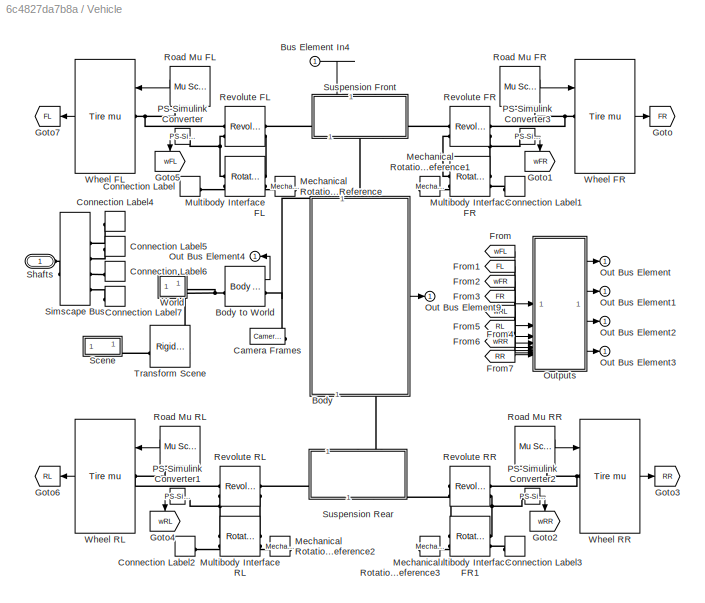
BLOCK [SubSystem] Vehicle
  AttributesFormatString = %<popup_surface_conditions>
BLOCK [SubSystem] Vehicle/Body
  PortSchema = {"entries":[{"content":{"sides":[{"content":{"connectorIds":["LConn1"]},"type":"ConnectorPlacement.EquallySpacedRectSide","uuid":"a6a40084-0b01-416d-a19a-d775fde84bbf"},{"content":{"connectorIds":["RConn1"],"side":"RIGHT"},"type":"ConnectorPlacement.EquallySpacedRectSide","uuid":"7b527776-1265-46e3-b587-d37cab880183"},{"content":{"connectorIds":["Out1"],"side":"TOP"},"type":"ConnectorPlacement.Equ...<+403ch>
BLOCK [Reference] Vehicle/Body to World  REF=sm_vehicle_utilities_lib/Body to World  (lib defined in slx_7901a99a1966, slx_bde73e06ff5b)
  SourceBlock = sm_vehicle_utilities_lib/Body to World
  SourceType = Body to World
BLOCK [Reference] Vehicle/Body/Body Inertia  REF=sm_lib/Body Elements/Brick Solid
  SourceBlock = sm_lib/Body Elements/Brick Solid
  SourceType = Brick Solid
BLOCK [Reference] Vehicle/Body/Body Sensor  REF=sm_vehicle_utilities_lib/Body Sensor  (lib defined in slx_7901a99a1966, slx_bde73e06ff5b)
  SourceBlock = sm_vehicle_utilities_lib/Body Sensor
  SourceType = Measurements in Body Frame
BLOCK [PMIOPort] Vehicle/Body/FA
  NameLocation = left
  Port = 2
  Side = Right
BLOCK [PMIOPort] Vehicle/Body/RA
  NameLocation = left
  Side = Left
BLOCK [PMIOPort] Vehicle/Body/Ref
  Port = 3
  Side = Right
BLOCK [Reference] Vehicle/Body/Transform CG  REF=sm_lib/Frames and
Transforms/Rigid
Transform
  SourceBlock = sm_lib/Frames and\nTransforms/Rigid\nTransform
  SourceType = Rigid\nTransform
BLOCK [Reference] Vehicle/Body/Transform Geometry  REF=sm_lib/Frames and
Transforms/Rigid
Transform
  SourceBlock = sm_lib/Frames and\nTransforms/Rigid\nTransform
  SourceType = Rigid\nTransform
BLOCK [Reference] Vehicle/Body/Transform Suspension Front  REF=sm_lib/Frames and
Transforms/Rigid
Transform
  NameLocation = left
  SourceBlock = sm_lib/Frames and\nTransforms/Rigid\nTransform
  SourceType = Rigid\nTransform
BLOCK [Reference] Vehicle/Body/Transform Suspension Rear  REF=sm_lib/Frames and
Transforms/Rigid
Transform
  NameLocation = left
  SourceBlock = sm_lib/Frames and\nTransforms/Rigid\nTransform
  SourceType = Rigid\nTransform
BLOCK [Reference] Vehicle/Body/Vehicle Body  REF=sm_lib/Body Elements/File Solid
  SourceBlock = sm_lib/Body Elements/File Solid
  SourceType = File Solid
BLOCK [Outport] Vehicle/Body/m
BLOCK [Inport] Vehicle/Bus Element In4
  NameLocation = top
BLOCK [Reference] Vehicle/Camera Frames  REF=sm_vehicle_utilities_lib/Camera Frames  (lib defined in slx_7901a99a1966, slx_bde73e06ff5b)
  SourceBlock = sm_vehicle_utilities_lib/Camera Frames
  SourceType = Camera Frame Definitions
BLOCK [ConnectionLabel] Vehicle/Connection Label
  Label = FL
  NameLocation = top
BLOCK [ConnectionLabel] Vehicle/Connection Label1
  Label = FR
  NameLocation = top
BLOCK [ConnectionLabel] Vehicle/Connection Label2
  Label = RL
  NameLocation = top
BLOCK [ConnectionLabel] Vehicle/Connection Label3
  Label = RR
  NameLocation = top
BLOCK [ConnectionLabel] Vehicle/Connection Label4
  Label = FL
  NameLocation = top
BLOCK [ConnectionLabel] Vehicle/Connection Label5
  Label = FR
BLOCK [ConnectionLabel] Vehicle/Connection Label6
  Label = RL
  NameLocation = top
BLOCK [ConnectionLabel] Vehicle/Connection Label7
  Label = RR
  NameLocation = top
BLOCK [From] Vehicle/From
  GotoTag = wFL
BLOCK [From] Vehicle/From1
  GotoTag = FL
BLOCK [From] Vehicle/From2
  GotoTag = wFR
BLOCK [From] Vehicle/From3
  GotoTag = FR
BLOCK [From] Vehicle/From4
  GotoTag = wRL
BLOCK [From] Vehicle/From5
  GotoTag = RL
BLOCK [From] Vehicle/From6
  GotoTag = wRR
BLOCK [From] Vehicle/From7
  GotoTag = RR
BLOCK [Goto] Vehicle/Goto
  GotoTag = FR
BLOCK [Goto] Vehicle/Goto1
  GotoTag = wFR
  NameLocation = left
BLOCK [Goto] Vehicle/Goto2
  GotoTag = wRR
  NameLocation = left
BLOCK [Goto] Vehicle/Goto3
  GotoTag = RR
BLOCK [Goto] Vehicle/Goto4
  GotoTag = wRL
  NameLocation = left
BLOCK [Goto] Vehicle/Goto5
  GotoTag = wFL
  NameLocation = left
BLOCK [Goto] Vehicle/Goto6
  GotoTag = RL
BLOCK [Goto] Vehicle/Goto7
  GotoTag = FL
BLOCK [Reference] Vehicle/Mechanical Rotational Reference  REF=fl_lib/Mechanical/Rotational Elements/Mechanical
Rotational Reference
  NameLocation = top
  SourceBlock = fl_lib/Mechanical/Rotational Elements/Mechanical\nRotational Reference
  SourceType = Mechanical\nRotational Reference
BLOCK [Reference] Vehicle/Mechanical Rotational Reference1  REF=fl_lib/Mechanical/Rotational Elements/Mechanical
Rotational Reference
  NameLocation = top
  SourceBlock = fl_lib/Mechanical/Rotational Elements/Mechanical\nRotational Reference
  SourceType = Mechanical\nRotational Reference
BLOCK [Reference] Vehicle/Mechanical Rotational Reference2  REF=fl_lib/Mechanical/Rotational Elements/Mechanical
Rotational Reference
  NameLocation = top
  SourceBlock = fl_lib/Mechanical/Rotational Elements/Mechanical\nRotational Reference
  SourceType = Mechanical\nRotational Reference
BLOCK [Reference] Vehicle/Mechanical Rotational Reference3  REF=fl_lib/Mechanical/Rotational Elements/Mechanical
Rotational Reference
  NameLocation = top
  SourceBlock = fl_lib/Mechanical/Rotational Elements/Mechanical\nRotational Reference
  SourceType = Mechanical\nRotational Reference
BLOCK [Reference] Vehicle/Multibody Interface FL  REF=fl_lib/Mechanical/Multibody Interfaces/Rotational Multibody
Interface
  SourceBlock = fl_lib/Mechanical/Multibody Interfaces/Rotational Multibody\nInterface
  SourceType = Rotational Multibody\nInterface
BLOCK [Reference] Vehicle/Multibody Interface FR  REF=fl_lib/Mechanical/Multibody Interfaces/Rotational Multibody
Interface
  SourceBlock = fl_lib/Mechanical/Multibody Interfaces/Rotational Multibody\nInterface
  SourceType = Rotational Multibody\nInterface
BLOCK [Reference] Vehicle/Multibody Interface FR1  REF=fl_lib/Mechanical/Multibody Interfaces/Rotational Multibody
Interface
  SourceBlock = fl_lib/Mechanical/Multibody Interfaces/Rotational Multibody\nInterface
  SourceType = Rotational Multibody\nInterface
BLOCK [Reference] Vehicle/Multibody Interface RL  REF=fl_lib/Mechanical/Multibody Interfaces/Rotational Multibody
Interface
  SourceBlock = fl_lib/Mechanical/Multibody Interfaces/Rotational Multibody\nInterface
  SourceType = Rotational Multibody\nInterface
BLOCK [Outport] Vehicle/Out Bus Element
BLOCK [Outport] Vehicle/Out Bus Element1
BLOCK [Outport] Vehicle/Out Bus Element2
BLOCK [Outport] Vehicle/Out Bus Element3
BLOCK [Outport] Vehicle/Out Bus Element4
  NameLocation = top
BLOCK [Outport] Vehicle/Out Bus Element9
BLOCK [SubSystem] Vehicle/Outputs
BLOCK [BusCreator] Vehicle/Outputs/Bus Creator
  DisplayOption = bar
  InheritFromInputs = on
  Inputs = 8
BLOCK [BusCreator] Vehicle/Outputs/Bus Creator1
  DisplayOption = bar
  InheritFromInputs = on
  Inputs = 8
BLOCK [BusCreator] Vehicle/Outputs/Bus Creator2
  DisplayOption = bar
  InheritFromInputs = on
  Inputs = 8
BLOCK [BusCreator] Vehicle/Outputs/Bus Creator4
  DisplayOption = bar
  InheritFromInputs = on
  Inputs = 8
BLOCK [BusSelector] Vehicle/Outputs/Bus Selector
  OutputSignals = Fx,Fy,Fz,Tx,Ty,Tz
BLOCK [BusSelector] Vehicle/Outputs/Bus Selector1
  OutputSignals = Fx,Fy,Fz,Tx,Ty,Tz
BLOCK [BusSelector] Vehicle/Outputs/Bus Selector2
  OutputSignals = Fx,Fy,Fz,Tx,Ty,Tz
BLOCK [BusSelector] Vehicle/Outputs/Bus Selector3
  OutputSignals = Fx,Fy,Fz,Tx,Ty,Tz
BLOCK [Constant] Vehicle/Outputs/Constant
  Value = whlRadF
BLOCK [Constant] Vehicle/Outputs/Constant1
  Value = whlRadF
BLOCK [Constant] Vehicle/Outputs/Constant2
  Value = whlRadR
BLOCK [Constant] Vehicle/Outputs/Constant3
  Value = whlRadR
BLOCK [Outport] Vehicle/Outputs/FL
BLOCK [Outport] Vehicle/Outputs/FR
  Port = 2
BLOCK [Product] Vehicle/Outputs/Product
BLOCK [Product] Vehicle/Outputs/Product1
BLOCK [Product] Vehicle/Outputs/Product2
BLOCK [Product] Vehicle/Outputs/Product3
BLOCK [Outport] Vehicle/Outputs/RL
  Port = 3
BLOCK [Outport] Vehicle/Outputs/RR
  Port = 4
BLOCK [Inport] Vehicle/Outputs/TFL
  Port = 2
BLOCK [Inport] Vehicle/Outputs/TFR
  Port = 4
BLOCK [Inport] Vehicle/Outputs/TRL
  Port = 6
BLOCK [Inport] Vehicle/Outputs/TRR
  Port = 8
BLOCK [Inport] Vehicle/Outputs/wFL
BLOCK [Inport] Vehicle/Outputs/wFR
  Port = 3
BLOCK [Inport] Vehicle/Outputs/wRL
  Port = 5
BLOCK [Inport] Vehicle/Outputs/wRR
  Port = 7
BLOCK [Reference] Vehicle/PS-Simulink Converter  REF=nesl_utility/PS-Simulink
Converter
  SourceBlock = nesl_utility/PS-Simulink\nConverter
  SourceType = PS-Simulink\nConverter
BLOCK [Reference] Vehicle/PS-Simulink Converter1  REF=nesl_utility/PS-Simulink
Converter
  SourceBlock = nesl_utility/PS-Simulink\nConverter
  SourceType = PS-Simulink\nConverter
BLOCK [Reference] Vehicle/PS-Simulink Converter2  REF=nesl_utility/PS-Simulink
Converter
  NameLocation = top
  SourceBlock = nesl_utility/PS-Simulink\nConverter
  SourceType = PS-Simulink\nConverter
BLOCK [Reference] Vehicle/PS-Simulink Converter3  REF=nesl_utility/PS-Simulink
Converter
  NameLocation = top
  SourceBlock = nesl_utility/PS-Simulink\nConverter
  SourceType = PS-Simulink\nConverter
BLOCK [Reference] Vehicle/Revolute FL  REF=sm_lib/Joints/Revolute Joint
  NameLocation = top
  SourceBlock = sm_lib/Joints/Revolute Joint
  SourceType = Revolute Joint
BLOCK [Reference] Vehicle/Revolute FR  REF=sm_lib/Joints/Revolute Joint
  NameLocation = top
  SourceBlock = sm_lib/Joints/Revolute Joint
  SourceType = Revolute Joint
BLOCK [Reference] Vehicle/Revolute RL  REF=sm_lib/Joints/Revolute Joint
  NameLocation = top
  SourceBlock = sm_lib/Joints/Revolute Joint
  SourceType = Revolute Joint
BLOCK [Reference] Vehicle/Revolute RR  REF=sm_lib/Joints/Revolute Joint
  NameLocation = top
  SourceBlock = sm_lib/Joints/Revolute Joint
  SourceType = Revolute Joint
BLOCK [Reference] Vehicle/Road Mu FL  REF=sm_vehicle_utilities_lib/Mu Scaling by Position  (lib defined in slx_7901a99a1966, slx_bde73e06ff5b)
  NameLocation = top
  SourceBlock = sm_vehicle_utilities_lib/Mu Scaling by Position
BLOCK [Reference] Vehicle/Road Mu FR  REF=sm_vehicle_utilities_lib/Mu Scaling by Position  (lib defined in slx_7901a99a1966, slx_bde73e06ff5b)
  NameLocation = top
  SourceBlock = sm_vehicle_utilities_lib/Mu Scaling by Position
BLOCK [Reference] Vehicle/Road Mu RL  REF=sm_vehicle_utilities_lib/Mu Scaling by Position  (lib defined in slx_7901a99a1966, slx_bde73e06ff5b)
  NameLocation = top
  SourceBlock = sm_vehicle_utilities_lib/Mu Scaling by Position
BLOCK [Reference] Vehicle/Road Mu RR  REF=sm_vehicle_utilities_lib/Mu Scaling by Position  (lib defined in slx_7901a99a1966, slx_bde73e06ff5b)
  NameLocation = top
  SourceBlock = sm_vehicle_utilities_lib/Mu Scaling by Position
BLOCK [SubSystem] Vehicle/Scene
BLOCK [PMIOPort] Vehicle/Scene/B
  Side = Right
BLOCK [SubSystem] Vehicle/Scene/Grid
  VariantControl = Grid
BLOCK [PMIOPort] Vehicle/Scene/Grid/B
  Side = Right
BLOCK [Reference] Vehicle/Scene/Grid/Mesh Lines x  REF=sm_vehicle_utilities_lib/Mesh  (lib defined in slx_7901a99a1966, slx_bde73e06ff5b)
  SourceBlock = sm_vehicle_utilities_lib/Mesh
  SourceType = Rectangular Mesh
BLOCK [Reference] Vehicle/Scene/Grid/Mesh Lines y   REF=sm_vehicle_utilities_lib/Mesh  (lib defined in slx_7901a99a1966, slx_bde73e06ff5b)
  SourceBlock = sm_vehicle_utilities_lib/Mesh
  SourceType = Rectangular Mesh
BLOCK [Reference] Vehicle/Scene/Grid/Plane  REF=sm_lib/Body Elements/Brick Solid
  SourceBlock = sm_lib/Body Elements/Brick Solid
  SourceType = Brick Solid
BLOCK [Reference] Vehicle/Scene/Grid/Reference Frame  REF=sm_lib/Frames and
Transforms/Reference
Frame
  NameLocation = top
  SourceBlock = sm_lib/Frames and\nTransforms/Reference\nFrame
  SourceType = Reference\nFrame
BLOCK [Reference] Vehicle/Scene/Grid/Reference Frame1  REF=sm_lib/Frames and
Transforms/Reference
Frame
  NameLocation = top
  SourceBlock = sm_lib/Frames and\nTransforms/Reference\nFrame
  SourceType = Reference\nFrame
BLOCK [Reference] Vehicle/Scene/Grid/Reference Frame2  REF=sm_lib/Frames and
Transforms/Reference
Frame
  NameLocation = top
  SourceBlock = sm_lib/Frames and\nTransforms/Reference\nFrame
  SourceType = Reference\nFrame
BLOCK [Reference] Vehicle/Scene/Grid/Reference Frame3  REF=sm_lib/Frames and
Transforms/Reference
Frame
  SourceBlock = sm_lib/Frames and\nTransforms/Reference\nFrame
  SourceType = Reference\nFrame
BLOCK [Reference] Vehicle/Scene/Grid/Transform Upper Surface to Middle  REF=sm_lib/Frames and
Transforms/Rigid
Transform
  SourceBlock = sm_lib/Frames and\nTransforms/Rigid\nTransform
  SourceType = Rigid\nTransform
BLOCK [Reference] Vehicle/Scene/Patch 1  REF=sm_lib/Body Elements/Brick Solid
  SourceBlock = sm_lib/Body Elements/Brick Solid
  SourceType = Brick Solid
BLOCK [Reference] Vehicle/Scene/Patch 2  REF=sm_lib/Body Elements/Brick Solid
  SourceBlock = sm_lib/Body Elements/Brick Solid
  SourceType = Brick Solid
BLOCK [Reference] Vehicle/Scene/Transform Patch 1  REF=sm_lib/Frames and
Transforms/Rigid
Transform
  SourceBlock = sm_lib/Frames and\nTransforms/Rigid\nTransform
  SourceType = Rigid\nTransform
BLOCK [Reference] Vehicle/Scene/Transform Patch 2  REF=sm_lib/Frames and
Transforms/Rigid
Transform
  SourceBlock = sm_lib/Frames and\nTransforms/Rigid\nTransform
  SourceType = Rigid\nTransform
BLOCK [PMIOPort] Vehicle/Shafts
  Side = Left
BLOCK [SimscapeBus] Vehicle/Simscape Bus
  HierarchyStrings = FL;FR;RL;RR
BLOCK [SubSystem] Vehicle/Suspension Front
  PortSchema = {"entries":[{"content":{"sides":[{"content":{"connectorIds":["LConn1"]},"type":"ConnectorPlacement.EquallySpacedRectSide","uuid":"0af81f34-82de-4f02-a8a7-ec45be82faea"},{"content":{"connectorIds":["In1"],"side":"RIGHT"},"type":"ConnectorPlacement.EquallySpacedRectSide","uuid":"9bc48957-2707-4e2f-b988-a5743aaf8f58"},{"content":{"connectorIds":["LConn2"],"side":"TOP"},"type":"ConnectorPlacement.Equa...<+402ch>
BLOCK [PMIOPort] Vehicle/Suspension Front/B
  NameLocation = left
  Side = Left
BLOCK [PMIOPort] Vehicle/Suspension Front/L
  Port = 2
  Side = Left
BLOCK [Reference] Vehicle/Suspension Front/Prismatic Heave  REF=sm_lib/Joints/Prismatic
Joint
  NameLocation = left
  SourceBlock = sm_lib/Joints/Prismatic\nJoint
  SourceType = Prismatic\nJoint
BLOCK [PMIOPort] Vehicle/Suspension Front/R
  Port = 3
  Side = Right
BLOCK [Reference] Vehicle/Suspension Front/Revolute Roll  REF=sm_lib/Joints/Revolute Joint
  NameLocation = right
  SourceBlock = sm_lib/Joints/Revolute Joint
  SourceType = Revolute Joint
BLOCK [Reference] Vehicle/Suspension Front/Revolute Steer L  REF=sm_lib/Joints/Revolute Joint
  NameLocation = left
  SourceBlock = sm_lib/Joints/Revolute Joint
  SourceType = Revolute Joint
BLOCK [Reference] Vehicle/Suspension Front/Revolute Steer R  REF=sm_lib/Joints/Revolute Joint
  NameLocation = right
  SourceBlock = sm_lib/Joints/Revolute Joint
  SourceType = Revolute Joint
BLOCK [SubSystem] Vehicle/Suspension Front/Steering Wheel to Wheel Angle
  PortSchema = {"entries":[{"content":{"sides":[{"content":{"connectorIds":["LConn1"]},"type":"ConnectorPlacement.EquallySpacedRectSide","uuid":"65a6d75a-79bf-476b-9435-04bcf6c2ef18"},{"content":{"connectorIds":["RConn1"],"side":"RIGHT"},"type":"ConnectorPlacement.EquallySpacedRectSide","uuid":"4d91bb65-021e-4e19-8917-9509e9fd2683"},{"content":{"connectorIds":["In1"],"side":"TOP"},"type":"ConnectorPlacement.Equa...<+250ch>
BLOCK [Fcn] Vehicle/Suspension Front/Steering Wheel to Wheel Angle/Ackerman left
  Expr = atan( 1/( cos(u+eps)/sin(u+eps) - yTrack/(2*wheelbase) ) )
BLOCK [Fcn] Vehicle/Suspension Front/Steering Wheel to Wheel Angle/Ackerman right
  Expr = atan( 1/( cos(u+eps)/sin(u+eps) + yTrack/(2*wheelbase) ) )
BLOCK [Constant] Vehicle/Suspension Front/Steering Wheel to Wheel Angle/Constant
  Value = steerRatio
BLOCK [Product] Vehicle/Suspension Front/Steering Wheel to Wheel Angle/Divide
  Inputs = */
BLOCK [Inport] Vehicle/Suspension Front/Steering Wheel to Wheel Angle/In1
BLOCK [PMIOPort] Vehicle/Suspension Front/Steering Wheel to Wheel Angle/L
  NameLocation = top
  Side = Left
BLOCK [PMIOPort] Vehicle/Suspension Front/Steering Wheel to Wheel Angle/R
  NameLocation = top
  Port = 2
  Side = Right
BLOCK [Reference] Vehicle/Suspension Front/Steering Wheel to Wheel Angle/Simulink-PS Converter  REF=nesl_utility/Simulink-PS
Converter
  NameLocation = top
  SourceBlock = nesl_utility/Simulink-PS\nConverter
  SourceType = Simulink-PS\nConverter
BLOCK [Reference] Vehicle/Suspension Front/Steering Wheel to Wheel Angle/Simulink-PS Converter1  REF=nesl_utility/Simulink-PS
Converter
  NameLocation = top
  SourceBlock = nesl_utility/Simulink-PS\nConverter
  SourceType = Simulink-PS\nConverter
BLOCK [Reference] Vehicle/Suspension Front/Transform Heave  REF=sm_lib/Frames and
Transforms/Rigid
Transform
  NameLocation = left
  SourceBlock = sm_lib/Frames and\nTransforms/Rigid\nTransform
  SourceType = Rigid\nTransform
BLOCK [Reference] Vehicle/Suspension Front/Transform Hub L  REF=sm_lib/Frames and
Transforms/Rigid
Transform
  SourceBlock = sm_lib/Frames and\nTransforms/Rigid\nTransform
  SourceType = Rigid\nTransform
BLOCK [Reference] Vehicle/Suspension Front/Transform Hub R  REF=sm_lib/Frames and
Transforms/Rigid
Transform
  SourceBlock = sm_lib/Frames and\nTransforms/Rigid\nTransform
  SourceType = Rigid\nTransform
BLOCK [Reference] Vehicle/Suspension Front/Transform Roll  REF=sm_lib/Frames and
Transforms/Rigid
Transform
  NameLocation = left
  SourceBlock = sm_lib/Frames and\nTransforms/Rigid\nTransform
  SourceType = Rigid\nTransform
BLOCK [Reference] Vehicle/Suspension Front/Transform Steer L  REF=sm_lib/Frames and
Transforms/Rigid
Transform
  NameLocation = top
  SourceBlock = sm_lib/Frames and\nTransforms/Rigid\nTransform
  SourceType = Rigid\nTransform
BLOCK [Reference] Vehicle/Suspension Front/Transform Steer R  REF=sm_lib/Frames and
Transforms/Rigid
Transform
  NameLocation = top
  SourceBlock = sm_lib/Frames and\nTransforms/Rigid\nTransform
  SourceType = Rigid\nTransform
BLOCK [Reference] Vehicle/Suspension Front/Transform Unspring Mass  REF=sm_lib/Frames and
Transforms/Rigid
Transform
  NameLocation = left
  SourceBlock = sm_lib/Frames and\nTransforms/Rigid\nTransform
  SourceType = Rigid\nTransform
BLOCK [Reference] Vehicle/Suspension Front/Unsprung Mass  REF=sm_lib/Body Elements/Cylindrical Solid
  NameLocation = left
  SourceBlock = sm_lib/Body Elements/Cylindrical Solid
  SourceType = Cylindrical Solid
BLOCK [Inport] Vehicle/Suspension Front/s
BLOCK [SubSystem] Vehicle/Suspension Rear
  PortSchema = {"entries":[{"content":{"sides":[{"content":{"connectorIds":["LConn1"]},"type":"ConnectorPlacement.EquallySpacedRectSide","uuid":"0af81f34-82de-4f02-a8a7-ec45be82faea"},{"content":{"connectorIds":[],"side":"RIGHT"},"type":"ConnectorPlacement.EquallySpacedRectSide","uuid":"9bc48957-2707-4e2f-b988-a5743aaf8f58"},{"content":{"connectorIds":["LConn2"],"side":"TOP"},"type":"ConnectorPlacement.EquallySp...<+397ch>
BLOCK [PMIOPort] Vehicle/Suspension Rear/B
  NameLocation = left
  Side = Left
BLOCK [PMIOPort] Vehicle/Suspension Rear/L
  Port = 2
  Side = Left
BLOCK [Reference] Vehicle/Suspension Rear/Prismatic Heave  REF=sm_lib/Joints/Prismatic
Joint
  NameLocation = left
  SourceBlock = sm_lib/Joints/Prismatic\nJoint
  SourceType = Prismatic\nJoint
BLOCK [PMIOPort] Vehicle/Suspension Rear/R
  Port = 3
  Side = Right
BLOCK [Reference] Vehicle/Suspension Rear/Revolute Roll  REF=sm_lib/Joints/Revolute Joint
  NameLocation = right
  SourceBlock = sm_lib/Joints/Revolute Joint
  SourceType = Revolute Joint
BLOCK [Reference] Vehicle/Suspension Rear/Transform Heave  REF=sm_lib/Frames and
Transforms/Rigid
Transform
  NameLocation = left
  SourceBlock = sm_lib/Frames and\nTransforms/Rigid\nTransform
  SourceType = Rigid\nTransform
BLOCK [Reference] Vehicle/Suspension Rear/Transform Hub L  REF=sm_lib/Frames and
Transforms/Rigid
Transform
  SourceBlock = sm_lib/Frames and\nTransforms/Rigid\nTransform
  SourceType = Rigid\nTransform
BLOCK [Reference] Vehicle/Suspension Rear/Transform Hub R  REF=sm_lib/Frames and
Transforms/Rigid
Transform
  SourceBlock = sm_lib/Frames and\nTransforms/Rigid\nTransform
  SourceType = Rigid\nTransform
BLOCK [Reference] Vehicle/Suspension Rear/Transform Roll  REF=sm_lib/Frames and
Transforms/Rigid
Transform
  NameLocation = left
  SourceBlock = sm_lib/Frames and\nTransforms/Rigid\nTransform
  SourceType = Rigid\nTransform
BLOCK [Reference] Vehicle/Suspension Rear/Transform Unsprung Mass  REF=sm_lib/Frames and
Transforms/Rigid
Transform
  NameLocation = left
  SourceBlock = sm_lib/Frames and\nTransforms/Rigid\nTransform
  SourceType = Rigid\nTransform
BLOCK [Reference] Vehicle/Suspension Rear/Unsprung Mass  REF=sm_lib/Body Elements/Cylindrical Solid
  NameLocation = left
  SourceBlock = sm_lib/Body Elements/Cylindrical Solid
  SourceType = Cylindrical Solid
BLOCK [Reference] Vehicle/Transform Scene  REF=sm_lib/Frames and
Transforms/Rigid
Transform
  SourceBlock = sm_lib/Frames and\nTransforms/Rigid\nTransform
  SourceType = Rigid\nTransform
BLOCK [Reference] Vehicle/Wheel FL  REF=sm_vehicle_utilities_lib/Tire mu  (lib defined in slx_7901a99a1966, slx_bde73e06ff5b)
  NameLocation = top
  SourceBlock = sm_vehicle_utilities_lib/Tire mu
  SourceType = Wheel Assembly
BLOCK [Reference] Vehicle/Wheel FR  REF=sm_vehicle_utilities_lib/Tire mu  (lib defined in slx_7901a99a1966, slx_bde73e06ff5b)
  NameLocation = top
  SourceBlock = sm_vehicle_utilities_lib/Tire mu
  SourceType = Wheel Assembly
BLOCK [Reference] Vehicle/Wheel RL  REF=sm_vehicle_utilities_lib/Tire mu  (lib defined in slx_7901a99a1966, slx_bde73e06ff5b)
  NameLocation = top
  SourceBlock = sm_vehicle_utilities_lib/Tire mu
  SourceType = Wheel Assembly
BLOCK [Reference] Vehicle/Wheel RR  REF=sm_vehicle_utilities_lib/Tire mu  (lib defined in slx_7901a99a1966, slx_bde73e06ff5b)
  NameLocation = top
  SourceBlock = sm_vehicle_utilities_lib/Tire mu
  SourceType = Wheel Assembly
BLOCK [SubSystem] Vehicle/World
  NameLocation = top
BLOCK [Reference] Vehicle/World/Mechanism Configuration  REF=sm_lib/Utilities/Mechanism
Configuration
  SourceBlock = sm_lib/Utilities/Mechanism\nConfiguration
  SourceType = Mechanism\nConfiguration
BLOCK [Reference] Vehicle/World/Solver Configuration  REF=nesl_utility/Solver
Configuration
  SourceBlock = nesl_utility/Solver\nConfiguration
  SourceType = Solver\nConfiguration
BLOCK [PMIOPort] Vehicle/World/W
  Side = Right
BLOCK [Reference] Vehicle/World/World Frame  REF=sm_lib/Frames and
Transforms/World Frame
  SourceBlock = sm_lib/Frames and\nTransforms/World Frame
  SourceType = World Frame
BLOCK [SubSystem] meas
BLOCK [BusSelector] meas/Bus Selector
  OutputSignals = TireFL.w,TireFR.w,TireRL.w,TireRR.w
BLOCK [BusSelector] meas/Bus Selector1
  OutputSignals = Body.aPitch,Body.aRoll,World.aYaw
BLOCK [Outport] meas/FL
BLOCK [Outport] meas/FR
  Port = 2
BLOCK [Gain] meas/Gain
BLOCK [Gain] meas/Gain1
BLOCK [Gain] meas/Gain2
BLOCK [Gain] meas/Gain3
BLOCK [Gain] meas/Gain4
BLOCK [Gain] meas/Gain5
BLOCK [Gain] meas/Gain6
BLOCK [Outport] meas/RL
  Port = 3
BLOCK [Outport] meas/RR
  Port = 4
BLOCK [Inport] meas/m
BLOCK [Outport] meas/p
  Port = 5
BLOCK [Outport] meas/r
  Port = 6
BLOCK [Outport] meas/y
  Port = 7
ANNOTATION (root): 1. Select maneuver: No Steer , Step Steer ( code ) ( default ) 2. Select surface: High to Low , Low to High , Right Low Patch , ............................. Right Low Split , Checker Right ( code ) 3. Plot wheel speeds ( code ) 4. Plot vehicle position ( code ) 5. Plot pressures ( code ) 6. Plot body and tire measurements ( code ) 7. Load vehicle parameters ( code ) 8. Explore simulation results ...<+267ch>
ANNOTATION (root): Vehicle Dynamics, 14 DOF Model, Varying Surface Friction
ANNOTATION Brakes/Brake Control/Mode: Open-loop commands to set braking mode (Apply, Release). Used to size components.
ANNOTATION Brakes/Brake Control/Valve Closed Loop/Calculate Slip: Placeholder to scale wheel speeds
ANNOTATION Brakes/Brake Control/Valve Closed Loop/Calculate Slip: Prevent divide by zero
ANNOTATION Brakes/Brake Control/Valve Closed Loop/Vehicle Speed: Estimates wheel speed using only wheel speed sensors and longitudinal accelerometer.
ANNOTATION Brakes/Brake Control/Valve Closed Loop/Vehicle Speed: Longitudinal Accelerometer
ANNOTATION Brakes/Brake Control/Valve Closed Loop/Vehicle Speed/Dynamic Rate Limiter: U(k)
ANNOTATION Brakes/Brake Control/Valve Closed Loop/Vehicle Speed/Dynamic Rate Limiter: Y(k)
ANNOTATION Brakes/Brake Control/Valve Open Loop: Convert mode (Apply, Hold, Release) to valve commands (open/closed for Apply and Release valves).
ANNOTATION Brakes/Brake Control/Valve Open Loop: Open-loop commands for mode (Apply=1, Hold=0, Release=2). Fixed frequency and duration. Used to size components.
ANNOTATION Brakes/Brake Control/Valve Open Loop/Mode to Valves FL: Apply
ANNOTATION Brakes/Brake Control/Valve Open Loop/Mode to Valves FL: Hold
ANNOTATION Brakes/Brake Control/Valve Open Loop/Mode to Valves FL: Release
ANNOTATION Brakes/Brake Control/Valve Open Loop/Mode to Valves FR: Apply
ANNOTATION Brakes/Brake Control/Valve Open Loop/Mode to Valves FR: Hold
ANNOTATION Brakes/Brake Control/Valve Open Loop/Mode to Valves FR: Release
ANNOTATION Brakes/Brake Control/Valve Open Loop/Mode to Valves RL: Apply
ANNOTATION Brakes/Brake Control/Valve Open Loop/Mode to Valves RL: Hold
ANNOTATION Brakes/Brake Control/Valve Open Loop/Mode to Valves RL: Release
ANNOTATION Brakes/Brake Control/Valve Open Loop/Mode to Valves RR: Apply
ANNOTATION Brakes/Brake Control/Valve Open Loop/Mode to Valves RR: Hold
ANNOTATION Brakes/Brake Control/Valve Open Loop/Mode to Valves RR: Release
ANNOTATION Brakes/Brakes/Disc/Actuator/Hydraulic: Assumes desired pressure always available at caliper.
ANNOTATION Brakes/Brakes/Disc/Actuator/Hydraulic: Includes time constant for actuator dynamics.
ANNOTATION Brakes/Brakes/Disc/Actuator/Valves: Valves control pressure at caliper.
LINE Brakes/Brake Control/Mode/Apply Release Mode:1 -> Brakes/Brake Control/Mode/Demux:1
LINE Brakes/Brake Control/Mode/Bus Creator:1 -> Brakes/Brake Control/Mode/Valves:1
LINE Brakes/Brake Control/Mode/Demux:1 -> Brakes/Brake Control/Mode/Bus Creator:1
LINE Brakes/Brake Control/Mode/Demux:2 -> Brakes/Brake Control/Mode/Bus Creator:2
LINE Brakes/Brake Control/Mode/Demux:3 -> Brakes/Brake Control/Mode/Bus Creator:3
LINE Brakes/Brake Control/Mode/Demux:4 -> Brakes/Brake Control/Mode/Bus Creator:4
LINE Brakes/Brake Control/Mode/Sensor:1 -> Brakes/Brake Control/Mode/Terminator:1
LINE Brakes/Brake Control/Valve Closed Loop/Bus Creator:1 -> Brakes/Brake Control/Valve Closed Loop/Valves:1
LINE Brakes/Brake Control/Valve Closed Loop/Bus Selector1:1 -> Brakes/Brake Control/Valve Closed Loop/Valve Control FR:1
LINE Brakes/Brake Control/Valve Closed Loop/Bus Selector2:1 -> Brakes/Brake Control/Valve Closed Loop/Valve Control RL:1
LINE Brakes/Brake Control/Valve Closed Loop/Bus Selector3:1 -> Brakes/Brake Control/Valve Closed Loop/Valve Control RR:1
LINE Brakes/Brake Control/Valve Closed Loop/Bus Selector:1 -> Brakes/Brake Control/Valve Closed Loop/Valve Control FL:1
LINE Brakes/Brake Control/Valve Closed Loop/Calculate Slip/Abs:1 -> Brakes/Brake Control/Valve Closed Loop/Calculate Slip/Saturation vsEst:1
NET Brakes/Brake Control/Valve Closed Loop/Calculate Slip/Bus Creator:1 -> Brakes/Brake Control/Valve Closed Loop/Calculate Slip/Slip:1, Brakes/Brake Control/Valve Closed Loop/Calculate Slip/Wheel Speeds and Slip:2
NET Brakes/Brake Control/Valve Closed Loop/Calculate Slip/Bus Selector1:1 -> Brakes/Brake Control/Valve Closed Loop/Calculate Slip/Mux4:1, Brakes/Brake Control/Valve Closed Loop/Calculate Slip/Mux:2
NET Brakes/Brake Control/Valve Closed Loop/Calculate Slip/Bus Selector1:2 -> Brakes/Brake Control/Valve Closed Loop/Calculate Slip/Mux1:2, Brakes/Brake Control/Valve Closed Loop/Calculate Slip/Mux4:2
NET Brakes/Brake Control/Valve Closed Loop/Calculate Slip/Bus Selector1:3 -> Brakes/Brake Control/Valve Closed Loop/Calculate Slip/Mux2:2, Brakes/Brake Control/Valve Closed Loop/Calculate Slip/Mux4:3
NET Brakes/Brake Control/Valve Closed Loop/Calculate Slip/Bus Selector1:4 -> Brakes/Brake Control/Valve Closed Loop/Calculate Slip/Mux3:2, Brakes/Brake Control/Valve Closed Loop/Calculate Slip/Mux4:4
NET Brakes/Brake Control/Valve Closed Loop/Calculate Slip/Constant:1 -> Brakes/Brake Control/Valve Closed Loop/Calculate Slip/Mux1:1, Brakes/Brake Control/Valve Closed Loop/Calculate Slip/Mux2:1, Brakes/Brake Control/Valve Closed Loop/Calculate Slip/Mux3:1, Brakes/Brake Control/Valve Closed Loop/Calculate Slip/Mux:1
LINE Brakes/Brake Control/Valve Closed Loop/Calculate Slip/Demux:1 -> Brakes/Brake Control/Valve Closed Loop/Calculate Slip/Bus Creator:1
LINE Brakes/Brake Control/Valve Closed Loop/Calculate Slip/Demux:2 -> Brakes/Brake Control/Valve Closed Loop/Calculate Slip/Bus Creator:2
LINE Brakes/Brake Control/Valve Closed Loop/Calculate Slip/Demux:3 -> Brakes/Brake Control/Valve Closed Loop/Calculate Slip/Bus Creator:3
LINE Brakes/Brake Control/Valve Closed Loop/Calculate Slip/Demux:4 -> Brakes/Brake Control/Valve Closed Loop/Calculate Slip/Bus Creator:4
LINE Brakes/Brake Control/Valve Closed Loop/Calculate Slip/Fcn1:1 -> Brakes/Brake Control/Valve Closed Loop/Calculate Slip/Mux5:2
LINE Brakes/Brake Control/Valve Closed Loop/Calculate Slip/Fcn2:1 -> Brakes/Brake Control/Valve Closed Loop/Calculate Slip/Mux5:3
LINE Brakes/Brake Control/Valve Closed Loop/Calculate Slip/Fcn3:1 -> Brakes/Brake Control/Valve Closed Loop/Calculate Slip/Mux5:4
LINE Brakes/Brake Control/Valve Closed Loop/Calculate Slip/Fcn:1 -> Brakes/Brake Control/Valve Closed Loop/Calculate Slip/Mux5:1
LINE Brakes/Brake Control/Valve Closed Loop/Calculate Slip/Mux1:1 -> Brakes/Brake Control/Valve Closed Loop/Calculate Slip/Fcn1:1
LINE Brakes/Brake Control/Valve Closed Loop/Calculate Slip/Mux2:1 -> Brakes/Brake Control/Valve Closed Loop/Calculate Slip/Fcn2:1
LINE Brakes/Brake Control/Valve Closed Loop/Calculate Slip/Mux3:1 -> Brakes/Brake Control/Valve Closed Loop/Calculate Slip/Fcn3:1
LINE Brakes/Brake Control/Valve Closed Loop/Calculate Slip/Mux4:1 -> Brakes/Brake Control/Valve Closed Loop/Calculate Slip/Wheel Speeds and Slip:1
LINE Brakes/Brake Control/Valve Closed Loop/Calculate Slip/Mux5:1 -> Brakes/Brake Control/Valve Closed Loop/Calculate Slip/Saturation Slip:1
LINE Brakes/Brake Control/Valve Closed Loop/Calculate Slip/Mux:1 -> Brakes/Brake Control/Valve Closed Loop/Calculate Slip/Fcn:1
NET Brakes/Brake Control/Valve Closed Loop/Calculate Slip/Product:1 -> Brakes/Brake Control/Valve Closed Loop/Calculate Slip/Mux1:3, Brakes/Brake Control/Valve Closed Loop/Calculate Slip/Mux2:3, Brakes/Brake Control/Valve Closed Loop/Calculate Slip/Mux3:3, Brakes/Brake Control/Valve Closed Loop/Calculate Slip/Mux:3
LINE Brakes/Brake Control/Valve Closed Loop/Calculate Slip/Saturation Slip:1 -> Brakes/Brake Control/Valve Closed Loop/Calculate Slip/Demux:1
LINE Brakes/Brake Control/Valve Closed Loop/Calculate Slip/Saturation vsEst:1 -> Brakes/Brake Control/Valve Closed Loop/Calculate Slip/Product:1
LINE Brakes/Brake Control/Valve Closed Loop/Calculate Slip/Sign:1 -> Brakes/Brake Control/Valve Closed Loop/Calculate Slip/Product:2
NET Brakes/Brake Control/Valve Closed Loop/Calculate Slip/VehSpdEst:1 -> Brakes/Brake Control/Valve Closed Loop/Calculate Slip/Abs:1, Brakes/Brake Control/Valve Closed Loop/Calculate Slip/Sign:1
LINE Brakes/Brake Control/Valve Closed Loop/Calculate Slip/WhlSpd:1 -> Brakes/Brake Control/Valve Closed Loop/Calculate Slip/Bus Selector1:1
NET Brakes/Brake Control/Valve Closed Loop/Calculate Slip:1 -> Brakes/Brake Control/Valve Closed Loop/Bus Selector1:1, Brakes/Brake Control/Valve Closed Loop/Bus Selector2:1, Brakes/Brake Control/Valve Closed Loop/Bus Selector3:1, Brakes/Brake Control/Valve Closed Loop/Bus Selector:1
NET Brakes/Brake Control/Valve Closed Loop/Sensor:1 -> Brakes/Brake Control/Valve Closed Loop/Calculate Slip:1, Brakes/Brake Control/Valve Closed Loop/Vehicle Speed:1
NET Brakes/Brake Control/Valve Closed Loop/Valve Control FL:1 -> Brakes/Brake Control/Valve Closed Loop/Bus Creator:1, Brakes/Brake Control/Valve Closed Loop/Valve Control:1
NET Brakes/Brake Control/Valve Closed Loop/Valve Control FR:1 -> Brakes/Brake Control/Valve Closed Loop/Bus Creator:2, Brakes/Brake Control/Valve Closed Loop/Valve Control:2
NET Brakes/Brake Control/Valve Closed Loop/Valve Control RL:1 -> Brakes/Brake Control/Valve Closed Loop/Bus Creator:3, Brakes/Brake Control/Valve Closed Loop/Valve Control:3
NET Brakes/Brake Control/Valve Closed Loop/Valve Control RR:1 -> Brakes/Brake Control/Valve Closed Loop/Bus Creator:4, Brakes/Brake Control/Valve Closed Loop/Valve Control:4
LINE Brakes/Brake Control/Valve Closed Loop/Vehicle Speed/Accelerometer:1 -> Brakes/Brake Control/Valve Closed Loop/Vehicle Speed/Saturation:1
LINE Brakes/Brake Control/Valve Closed Loop/Vehicle Speed/Bus Selector1:1 -> Brakes/Brake Control/Valve Closed Loop/Vehicle Speed/Max:1
LINE Brakes/Brake Control/Valve Closed Loop/Vehicle Speed/Bus Selector1:2 -> Brakes/Brake Control/Valve Closed Loop/Vehicle Speed/Max:2
LINE Brakes/Brake Control/Valve Closed Loop/Vehicle Speed/Bus Selector1:3 -> Brakes/Brake Control/Valve Closed Loop/Vehicle Speed/Max:3
LINE Brakes/Brake Control/Valve Closed Loop/Vehicle Speed/Bus Selector1:4 -> Brakes/Brake Control/Valve Closed Loop/Vehicle Speed/Max:4
NET Brakes/Brake Control/Valve Closed Loop/Vehicle Speed/Bus Selector:1 -> Brakes/Brake Control/Valve Closed Loop/Vehicle Speed/Accelerometer:1, Brakes/Brake Control/Valve Closed Loop/Vehicle Speed/Scope:1
NET Brakes/Brake Control/Valve Closed Loop/Vehicle Speed/Dynamic Rate Limiter/Delay Input2:1 -> Brakes/Brake Control/Valve Closed Loop/Vehicle Speed/Dynamic Rate Limiter/Difference Inputs1:2, Brakes/Brake Control/Valve Closed Loop/Vehicle Speed/Dynamic Rate Limiter/Difference Inputs2:2, Brakes/Brake Control/Valve Closed Loop/Vehicle Speed/Dynamic Rate Limiter/FixPt Data Type Duplicate:2
NET Brakes/Brake Control/Valve Closed Loop/Vehicle Speed/Dynamic Rate Limiter/Difference Inputs1:1 -> Brakes/Brake Control/Valve Closed Loop/Vehicle Speed/Dynamic Rate Limiter/FixPt Data Type Duplicate:4, Brakes/Brake Control/Valve Closed Loop/Vehicle Speed/Dynamic Rate Limiter/Saturation Dynamic:2
NET Brakes/Brake Control/Valve Closed Loop/Vehicle Speed/Dynamic Rate Limiter/Difference Inputs2:1 -> Brakes/Brake Control/Valve Closed Loop/Vehicle Speed/Dynamic Rate Limiter/Delay Input2:1, Brakes/Brake Control/Valve Closed Loop/Vehicle Speed/Dynamic Rate Limiter/FixPt Data Type Duplicate:1, Brakes/Brake Control/Valve Closed Loop/Vehicle Speed/Dynamic Rate Limiter/Y:1
NET Brakes/Brake Control/Valve Closed Loop/Vehicle Speed/Dynamic Rate Limiter/Saturation Dynamic:1 -> Brakes/Brake Control/Valve Closed Loop/Vehicle Speed/Dynamic Rate Limiter/Difference Inputs2:1, Brakes/Brake Control/Valve Closed Loop/Vehicle Speed/Dynamic Rate Limiter/FixPt Data Type Duplicate:7
NET Brakes/Brake Control/Valve Closed Loop/Vehicle Speed/Dynamic Rate Limiter/delta fall limit:1 -> Brakes/Brake Control/Valve Closed Loop/Vehicle Speed/Dynamic Rate Limiter/FixPt Data Type Duplicate:3, Brakes/Brake Control/Valve Closed Loop/Vehicle Speed/Dynamic Rate Limiter/Saturation Dynamic:3
NET Brakes/Brake Control/Valve Closed Loop/Vehicle Speed/Dynamic Rate Limiter/delta rise limit:1 -> Brakes/Brake Control/Valve Closed Loop/Vehicle Speed/Dynamic Rate Limiter/FixPt Data Type Duplicate:6, Brakes/Brake Control/Valve Closed Loop/Vehicle Speed/Dynamic Rate Limiter/Saturation Dynamic:1
LINE Brakes/Brake Control/Valve Closed Loop/Vehicle Speed/Dynamic Rate Limiter/lo:1 -> Brakes/Brake Control/Valve Closed Loop/Vehicle Speed/Dynamic Rate Limiter/delta fall limit:1
NET Brakes/Brake Control/Valve Closed Loop/Vehicle Speed/Dynamic Rate Limiter/sample time:1 -> Brakes/Brake Control/Valve Closed Loop/Vehicle Speed/Dynamic Rate Limiter/delta fall limit:2, Brakes/Brake Control/Valve Closed Loop/Vehicle Speed/Dynamic Rate Limiter/delta rise limit:2
NET Brakes/Brake Control/Valve Closed Loop/Vehicle Speed/Dynamic Rate Limiter/u:1 -> Brakes/Brake Control/Valve Closed Loop/Vehicle Speed/Dynamic Rate Limiter/Difference Inputs1:1, Brakes/Brake Control/Valve Closed Loop/Vehicle Speed/Dynamic Rate Limiter/FixPt Data Type Duplicate:5, Brakes/Brake Control/Valve Closed Loop/Vehicle Speed/Dynamic Rate Limiter/sample time:1
LINE Brakes/Brake Control/Valve Closed Loop/Vehicle Speed/Dynamic Rate Limiter/up:1 -> Brakes/Brake Control/Valve Closed Loop/Vehicle Speed/Dynamic Rate Limiter/delta rise limit:1
NET Brakes/Brake Control/Valve Closed Loop/Vehicle Speed/Dynamic Rate Limiter:1 -> Brakes/Brake Control/Valve Closed Loop/Vehicle Speed/Scope:4, Brakes/Brake Control/Valve Closed Loop/Vehicle Speed/vSpdEst:1
NET Brakes/Brake Control/Valve Closed Loop/Vehicle Speed/Max:1 -> Brakes/Brake Control/Valve Closed Loop/Vehicle Speed/Rate Limiter:1, Brakes/Brake Control/Valve Closed Loop/Vehicle Speed/Scope:3, Brakes/Brake Control/Valve Closed Loop/Vehicle Speed/ZOH vel:1
LINE Brakes/Brake Control/Valve Closed Loop/Vehicle Speed/Rate Limit high:1 -> Brakes/Brake Control/Valve Closed Loop/Vehicle Speed/Dynamic Rate Limiter:1
LINE Brakes/Brake Control/Valve Closed Loop/Vehicle Speed/Rate Limiter:1 -> Brakes/Brake Control/Valve Closed Loop/Vehicle Speed/Scope:2
LINE Brakes/Brake Control/Valve Closed Loop/Vehicle Speed/Saturation:1 -> Brakes/Brake Control/Valve Closed Loop/Vehicle Speed/ZOH rate limit low:1
NET Brakes/Brake Control/Valve Closed Loop/Vehicle Speed/Sensors:1 -> Brakes/Brake Control/Valve Closed Loop/Vehicle Speed/Bus Selector1:1, Brakes/Brake Control/Valve Closed Loop/Vehicle Speed/Bus Selector:1
LINE Brakes/Brake Control/Valve Closed Loop/Vehicle Speed/ZOH rate limit low:1 -> Brakes/Brake Control/Valve Closed Loop/Vehicle Speed/Dynamic Rate Limiter:3
LINE Brakes/Brake Control/Valve Closed Loop/Vehicle Speed/ZOH vel:1 -> Brakes/Brake Control/Valve Closed Loop/Vehicle Speed/Dynamic Rate Limiter:2
NET Brakes/Brake Control/Valve Closed Loop/Vehicle Speed:1 -> Brakes/Brake Control/Valve Closed Loop/Calculate Slip:2, Brakes/Brake Control/Valve Closed Loop/Valve Control FL:2, Brakes/Brake Control/Valve Closed Loop/Valve Control FR:2, Brakes/Brake Control/Valve Closed Loop/Valve Control RL:2, Brakes/Brake Control/Valve Closed Loop/Valve Control RR:2
LINE Brakes/Brake Control/Valve Open Loop/Apply:1 -> Brakes/Brake Control/Valve Open Loop/Sum:1
LINE Brakes/Brake Control/Valve Open Loop/Bus Creator1:1 -> Brakes/Brake Control/Valve Open Loop/Valves:1
LINE Brakes/Brake Control/Valve Open Loop/Demux1:1 -> Brakes/Brake Control/Valve Open Loop/Mode to Valves FL:1
LINE Brakes/Brake Control/Valve Open Loop/Demux1:2 -> Brakes/Brake Control/Valve Open Loop/Mode to Valves FR:1
LINE Brakes/Brake Control/Valve Open Loop/Demux1:3 -> Brakes/Brake Control/Valve Open Loop/Mode to Valves RL:1
LINE Brakes/Brake Control/Valve Open Loop/Demux1:4 -> Brakes/Brake Control/Valve Open Loop/Mode to Valves RR:1
LINE Brakes/Brake Control/Valve Open Loop/Mode to Valves FL/C:1 -> Brakes/Brake Control/Valve Open Loop/Mode to Valves FL/Multiport Switch:1
LINE Brakes/Brake Control/Valve Open Loop/Mode to Valves FL/Constant1:1 -> Brakes/Brake Control/Valve Open Loop/Mode to Valves FL/Multiport Switch:3
LINE Brakes/Brake Control/Valve Open Loop/Mode to Valves FL/Constant2:1 -> Brakes/Brake Control/Valve Open Loop/Mode to Valves FL/Multiport Switch:4
LINE Brakes/Brake Control/Valve Open Loop/Mode to Valves FL/Constant:1 -> Brakes/Brake Control/Valve Open Loop/Mode to Valves FL/Multiport Switch:2
LINE Brakes/Brake Control/Valve Open Loop/Mode to Valves FL/Multiport Switch:1 -> Brakes/Brake Control/Valve Open Loop/Mode to Valves FL/V:1
LINE Brakes/Brake Control/Valve Open Loop/Mode to Valves FL:1 -> Brakes/Brake Control/Valve Open Loop/Bus Creator1:1
LINE Brakes/Brake Control/Valve Open Loop/Mode to Valves FR/C:1 -> Brakes/Brake Control/Valve Open Loop/Mode to Valves FR/Multiport Switch:1
LINE Brakes/Brake Control/Valve Open Loop/Mode to Valves FR/Constant1:1 -> Brakes/Brake Control/Valve Open Loop/Mode to Valves FR/Multiport Switch:3
LINE Brakes/Brake Control/Valve Open Loop/Mode to Valves FR/Constant2:1 -> Brakes/Brake Control/Valve Open Loop/Mode to Valves FR/Multiport Switch:4
LINE Brakes/Brake Control/Valve Open Loop/Mode to Valves FR/Constant:1 -> Brakes/Brake Control/Valve Open Loop/Mode to Valves FR/Multiport Switch:2
LINE Brakes/Brake Control/Valve Open Loop/Mode to Valves FR/Multiport Switch:1 -> Brakes/Brake Control/Valve Open Loop/Mode to Valves FR/V:1
LINE Brakes/Brake Control/Valve Open Loop/Mode to Valves FR:1 -> Brakes/Brake Control/Valve Open Loop/Bus Creator1:2
LINE Brakes/Brake Control/Valve Open Loop/Mode to Valves RL/C:1 -> Brakes/Brake Control/Valve Open Loop/Mode to Valves RL/Multiport Switch:1
LINE Brakes/Brake Control/Valve Open Loop/Mode to Valves RL/Constant1:1 -> Brakes/Brake Control/Valve Open Loop/Mode to Valves RL/Multiport Switch:3
LINE Brakes/Brake Control/Valve Open Loop/Mode to Valves RL/Constant2:1 -> Brakes/Brake Control/Valve Open Loop/Mode to Valves RL/Multiport Switch:4
LINE Brakes/Brake Control/Valve Open Loop/Mode to Valves RL/Constant:1 -> Brakes/Brake Control/Valve Open Loop/Mode to Valves RL/Multiport Switch:2
LINE Brakes/Brake Control/Valve Open Loop/Mode to Valves RL/Multiport Switch:1 -> Brakes/Brake Control/Valve Open Loop/Mode to Valves RL/V:1
LINE Brakes/Brake Control/Valve Open Loop/Mode to Valves RL:1 -> Brakes/Brake Control/Valve Open Loop/Bus Creator1:3
LINE Brakes/Brake Control/Valve Open Loop/Mode to Valves RR/C:1 -> Brakes/Brake Control/Valve Open Loop/Mode to Valves RR/Multiport Switch:1
LINE Brakes/Brake Control/Valve Open Loop/Mode to Valves RR/Constant1:1 -> Brakes/Brake Control/Valve Open Loop/Mode to Valves RR/Multiport Switch:3
LINE Brakes/Brake Control/Valve Open Loop/Mode to Valves RR/Constant2:1 -> Brakes/Brake Control/Valve Open Loop/Mode to Valves RR/Multiport Switch:4
LINE Brakes/Brake Control/Valve Open Loop/Mode to Valves RR/Constant:1 -> Brakes/Brake Control/Valve Open Loop/Mode to Valves RR/Multiport Switch:2
LINE Brakes/Brake Control/Valve Open Loop/Mode to Valves RR/Multiport Switch:1 -> Brakes/Brake Control/Valve Open Loop/Mode to Valves RR/V:1
LINE Brakes/Brake Control/Valve Open Loop/Mode to Valves RR:1 -> Brakes/Brake Control/Valve Open Loop/Bus Creator1:4
LINE Brakes/Brake Control/Valve Open Loop/Release:1 -> Brakes/Brake Control/Valve Open Loop/Sum:2
LINE Brakes/Brake Control/Valve Open Loop/Sensor:1 -> Brakes/Brake Control/Valve Open Loop/Terminator:1
LINE Brakes/Brake Control/Valve Open Loop/Sum:1 -> Brakes/Brake Control/Valve Open Loop/Demux1:1
LINE Brakes/Brake Control:1 -> Brakes/Brakes:1
NET Brakes/Brakes/Damper/Actuator Dynamics FL/Gain:1 -> Brakes/Brakes/Damper/Actuator Dynamics FL/Out:1, Brakes/Brakes/Damper/Actuator Dynamics FL/Sum:2
LINE Brakes/Brakes/Damper/Actuator Dynamics FL/In:1 -> Brakes/Brakes/Damper/Actuator Dynamics FL/Sum:1
LINE Brakes/Brakes/Damper/Actuator Dynamics FL/Integrator:1 -> Brakes/Brakes/Damper/Actuator Dynamics FL/Gain:1
LINE Brakes/Brakes/Damper/Actuator Dynamics FL/Sum:1 -> Brakes/Brakes/Damper/Actuator Dynamics FL/Integrator:1
LINE Brakes/Brakes/Damper/Actuator Dynamics FL:1 -> Brakes/Brakes/Damper/Gain FL:1
NET Brakes/Brakes/Damper/Actuator Dynamics FR/Gain:1 -> Brakes/Brakes/Damper/Actuator Dynamics FR/Out:1, Brakes/Brakes/Damper/Actuator Dynamics FR/Sum:2
LINE Brakes/Brakes/Damper/Actuator Dynamics FR/In:1 -> Brakes/Brakes/Damper/Actuator Dynamics FR/Sum:1
LINE Brakes/Brakes/Damper/Actuator Dynamics FR/Integrator:1 -> Brakes/Brakes/Damper/Actuator Dynamics FR/Gain:1
LINE Brakes/Brakes/Damper/Actuator Dynamics FR/Sum:1 -> Brakes/Brakes/Damper/Actuator Dynamics FR/Integrator:1
LINE Brakes/Brakes/Damper/Actuator Dynamics FR:1 -> Brakes/Brakes/Damper/Gain FR:1
NET Brakes/Brakes/Damper/Actuator Dynamics RL/Gain:1 -> Brakes/Brakes/Damper/Actuator Dynamics RL/Out:1, Brakes/Brakes/Damper/Actuator Dynamics RL/Sum:2
LINE Brakes/Brakes/Damper/Actuator Dynamics RL/In:1 -> Brakes/Brakes/Damper/Actuator Dynamics RL/Sum:1
LINE Brakes/Brakes/Damper/Actuator Dynamics RL/Integrator:1 -> Brakes/Brakes/Damper/Actuator Dynamics RL/Gain:1
LINE Brakes/Brakes/Damper/Actuator Dynamics RL/Sum:1 -> Brakes/Brakes/Damper/Actuator Dynamics RL/Integrator:1
LINE Brakes/Brakes/Damper/Actuator Dynamics RL:1 -> Brakes/Brakes/Damper/Gain RL:1
NET Brakes/Brakes/Damper/Actuator Dynamics RR/Gain:1 -> Brakes/Brakes/Damper/Actuator Dynamics RR/Out:1, Brakes/Brakes/Damper/Actuator Dynamics RR/Sum:2
LINE Brakes/Brakes/Damper/Actuator Dynamics RR/In:1 -> Brakes/Brakes/Damper/Actuator Dynamics RR/Sum:1
LINE Brakes/Brakes/Damper/Actuator Dynamics RR/Integrator:1 -> Brakes/Brakes/Damper/Actuator Dynamics RR/Gain:1
LINE Brakes/Brakes/Damper/Actuator Dynamics RR/Sum:1 -> Brakes/Brakes/Damper/Actuator Dynamics RR/Integrator:1
LINE Brakes/Brakes/Damper/Actuator Dynamics RR:1 -> Brakes/Brakes/Damper/Gain RR:1
LINE Brakes/Brakes/Damper/BrkOn1:1 -> Brakes/Brakes/Damper/Product1:1
LINE Brakes/Brakes/Damper/BrkOn2:1 -> Brakes/Brakes/Damper/Product2:1
LINE Brakes/Brakes/Damper/BrkOn3:1 -> Brakes/Brakes/Damper/Product3:1
LINE Brakes/Brakes/Damper/BrkOn:1 -> Brakes/Brakes/Damper/Product:1
NET Brakes/Brakes/Damper/Gain FL:1 -> Brakes/Brakes/Damper/Out Bus Element:1, Brakes/Brakes/Damper/Simulink-PS Converter4:1
NET Brakes/Brakes/Damper/Gain FR:1 -> Brakes/Brakes/Damper/Out Bus Element6:1, Brakes/Brakes/Damper/Simulink-PS Converter1:1
NET Brakes/Brakes/Damper/Gain RL:1 -> Brakes/Brakes/Damper/Out Bus Element5:1, Brakes/Brakes/Damper/Simulink-PS Converter3:1
NET Brakes/Brakes/Damper/Gain RR:1 -> Brakes/Brakes/Damper/Out Bus Element7:1, Brakes/Brakes/Damper/Simulink-PS Converter2:1
LINE Brakes/Brakes/Damper/In Bus Element1:1 -> Brakes/Brakes/Damper/Product:2
LINE Brakes/Brakes/Damper/In Bus Element2:1 -> Brakes/Brakes/Damper/Product1:2
LINE Brakes/Brakes/Damper/In Bus Element3:1 -> Brakes/Brakes/Damper/Product2:2
LINE Brakes/Brakes/Damper/In Bus Element4:1 -> Brakes/Brakes/Damper/Product3:2
LINE Brakes/Brakes/Damper/Product1:1 -> Brakes/Brakes/Damper/Actuator Dynamics FR:1
LINE Brakes/Brakes/Damper/Product2:1 -> Brakes/Brakes/Damper/Actuator Dynamics RL:1
LINE Brakes/Brakes/Damper/Product3:1 -> Brakes/Brakes/Damper/Actuator Dynamics RR:1
LINE Brakes/Brakes/Damper/Product:1 -> Brakes/Brakes/Damper/Actuator Dynamics FL:1
LINE Brakes/Brakes/Damper/Sensing trq FL/PS-Simulink Converter:1 -> Brakes/Brakes/Damper/Sensing trq FL/trq:1
LINE Brakes/Brakes/Damper/Sensing trq FL:1 -> Brakes/Brakes/Damper/Out Bus Element1:1
LINE Brakes/Brakes/Damper/Sensing trq FR/PS-Simulink Converter:1 -> Brakes/Brakes/Damper/Sensing trq FR/trq:1
LINE Brakes/Brakes/Damper/Sensing trq FR:1 -> Brakes/Brakes/Damper/Out Bus Element2:1
LINE Brakes/Brakes/Damper/Sensing trq RL/PS-Simulink Converter:1 -> Brakes/Brakes/Damper/Sensing trq RL/trq:1
LINE Brakes/Brakes/Damper/Sensing trq RL:1 -> Brakes/Brakes/Damper/Out Bus Element3:1
LINE Brakes/Brakes/Damper/Sensing trq RR/PS-Simulink Converter:1 -> Brakes/Brakes/Damper/Sensing trq RR/trq:1
LINE Brakes/Brakes/Damper/Sensing trq RR:1 -> Brakes/Brakes/Damper/Out Bus Element4:1
NET Brakes/Brakes/Disc/Actuator/Hydraulic/Actuator Dynamics FL/Gain:1 -> Brakes/Brakes/Disc/Actuator/Hydraulic/Actuator Dynamics FL/Out:1, Brakes/Brakes/Disc/Actuator/Hydraulic/Actuator Dynamics FL/Sum:2
LINE Brakes/Brakes/Disc/Actuator/Hydraulic/Actuator Dynamics FL/In:1 -> Brakes/Brakes/Disc/Actuator/Hydraulic/Actuator Dynamics FL/Sum:1
LINE Brakes/Brakes/Disc/Actuator/Hydraulic/Actuator Dynamics FL/Integrator:1 -> Brakes/Brakes/Disc/Actuator/Hydraulic/Actuator Dynamics FL/Gain:1
LINE Brakes/Brakes/Disc/Actuator/Hydraulic/Actuator Dynamics FL/Sum:1 -> Brakes/Brakes/Disc/Actuator/Hydraulic/Actuator Dynamics FL/Integrator:1
LINE Brakes/Brakes/Disc/Actuator/Hydraulic/Actuator Dynamics FL:1 -> Brakes/Brakes/Disc/Actuator/Hydraulic/Gain FL:1
NET Brakes/Brakes/Disc/Actuator/Hydraulic/Actuator Dynamics FR/Gain:1 -> Brakes/Brakes/Disc/Actuator/Hydraulic/Actuator Dynamics FR/Out:1, Brakes/Brakes/Disc/Actuator/Hydraulic/Actuator Dynamics FR/Sum:2
LINE Brakes/Brakes/Disc/Actuator/Hydraulic/Actuator Dynamics FR/In:1 -> Brakes/Brakes/Disc/Actuator/Hydraulic/Actuator Dynamics FR/Sum:1
LINE Brakes/Brakes/Disc/Actuator/Hydraulic/Actuator Dynamics FR/Integrator:1 -> Brakes/Brakes/Disc/Actuator/Hydraulic/Actuator Dynamics FR/Gain:1
LINE Brakes/Brakes/Disc/Actuator/Hydraulic/Actuator Dynamics FR/Sum:1 -> Brakes/Brakes/Disc/Actuator/Hydraulic/Actuator Dynamics FR/Integrator:1
LINE Brakes/Brakes/Disc/Actuator/Hydraulic/Actuator Dynamics FR:1 -> Brakes/Brakes/Disc/Actuator/Hydraulic/Gain FR:1
NET Brakes/Brakes/Disc/Actuator/Hydraulic/Actuator Dynamics RL/Gain:1 -> Brakes/Brakes/Disc/Actuator/Hydraulic/Actuator Dynamics RL/Out:1, Brakes/Brakes/Disc/Actuator/Hydraulic/Actuator Dynamics RL/Sum:2
LINE Brakes/Brakes/Disc/Actuator/Hydraulic/Actuator Dynamics RL/In:1 -> Brakes/Brakes/Disc/Actuator/Hydraulic/Actuator Dynamics RL/Sum:1
LINE Brakes/Brakes/Disc/Actuator/Hydraulic/Actuator Dynamics RL/Integrator:1 -> Brakes/Brakes/Disc/Actuator/Hydraulic/Actuator Dynamics RL/Gain:1
LINE Brakes/Brakes/Disc/Actuator/Hydraulic/Actuator Dynamics RL/Sum:1 -> Brakes/Brakes/Disc/Actuator/Hydraulic/Actuator Dynamics RL/Integrator:1
LINE Brakes/Brakes/Disc/Actuator/Hydraulic/Actuator Dynamics RL:1 -> Brakes/Brakes/Disc/Actuator/Hydraulic/Gain RL:1
NET Brakes/Brakes/Disc/Actuator/Hydraulic/Actuator Dynamics RR/Gain:1 -> Brakes/Brakes/Disc/Actuator/Hydraulic/Actuator Dynamics RR/Out:1, Brakes/Brakes/Disc/Actuator/Hydraulic/Actuator Dynamics RR/Sum:2
LINE Brakes/Brakes/Disc/Actuator/Hydraulic/Actuator Dynamics RR/In:1 -> Brakes/Brakes/Disc/Actuator/Hydraulic/Actuator Dynamics RR/Sum:1
LINE Brakes/Brakes/Disc/Actuator/Hydraulic/Actuator Dynamics RR/Integrator:1 -> Brakes/Brakes/Disc/Actuator/Hydraulic/Actuator Dynamics RR/Gain:1
LINE Brakes/Brakes/Disc/Actuator/Hydraulic/Actuator Dynamics RR/Sum:1 -> Brakes/Brakes/Disc/Actuator/Hydraulic/Actuator Dynamics RR/Integrator:1
LINE Brakes/Brakes/Disc/Actuator/Hydraulic/Actuator Dynamics RR:1 -> Brakes/Brakes/Disc/Actuator/Hydraulic/Gain RR:1
LINE Brakes/Brakes/Disc/Actuator/Hydraulic/BrkOn1:1 -> Brakes/Brakes/Disc/Actuator/Hydraulic/Product1:1
LINE Brakes/Brakes/Disc/Actuator/Hydraulic/BrkOn2:1 -> Brakes/Brakes/Disc/Actuator/Hydraulic/Product2:1
LINE Brakes/Brakes/Disc/Actuator/Hydraulic/BrkOn3:1 -> Brakes/Brakes/Disc/Actuator/Hydraulic/Product3:1
LINE Brakes/Brakes/Disc/Actuator/Hydraulic/BrkOn:1 -> Brakes/Brakes/Disc/Actuator/Hydraulic/Product:1
NET Brakes/Brakes/Disc/Actuator/Hydraulic/Gain FL:1 -> Brakes/Brakes/Disc/Actuator/Hydraulic/SL-PS FL:1, Brakes/Brakes/Disc/Actuator/Hydraulic/pa2psi2:1
NET Brakes/Brakes/Disc/Actuator/Hydraulic/Gain FR:1 -> Brakes/Brakes/Disc/Actuator/Hydraulic/SL-PS FR:1, Brakes/Brakes/Disc/Actuator/Hydraulic/pa2psi1:1
NET Brakes/Brakes/Disc/Actuator/Hydraulic/Gain RL:1 -> Brakes/Brakes/Disc/Actuator/Hydraulic/SL-PS RL:1, Brakes/Brakes/Disc/Actuator/Hydraulic/pa2psi3:1
NET Brakes/Brakes/Disc/Actuator/Hydraulic/Gain RR:1 -> Brakes/Brakes/Disc/Actuator/Hydraulic/SL-PS RR:1, Brakes/Brakes/Disc/Actuator/Hydraulic/pa2psi:1
LINE Brakes/Brakes/Disc/Actuator/Hydraulic/In Bus Element1:1 -> Brakes/Brakes/Disc/Actuator/Hydraulic/Product:2
LINE Brakes/Brakes/Disc/Actuator/Hydraulic/In Bus Element2:1 -> Brakes/Brakes/Disc/Actuator/Hydraulic/Product1:2
LINE Brakes/Brakes/Disc/Actuator/Hydraulic/In Bus Element3:1 -> Brakes/Brakes/Disc/Actuator/Hydraulic/Product2:2
LINE Brakes/Brakes/Disc/Actuator/Hydraulic/In Bus Element4:1 -> Brakes/Brakes/Disc/Actuator/Hydraulic/Product3:2
LINE Brakes/Brakes/Disc/Actuator/Hydraulic/Product1:1 -> Brakes/Brakes/Disc/Actuator/Hydraulic/Actuator Dynamics FR:1
LINE Brakes/Brakes/Disc/Actuator/Hydraulic/Product2:1 -> Brakes/Brakes/Disc/Actuator/Hydraulic/Actuator Dynamics RL:1
LINE Brakes/Brakes/Disc/Actuator/Hydraulic/Product3:1 -> Brakes/Brakes/Disc/Actuator/Hydraulic/Actuator Dynamics RR:1
LINE Brakes/Brakes/Disc/Actuator/Hydraulic/Product:1 -> Brakes/Brakes/Disc/Actuator/Hydraulic/Actuator Dynamics FL:1
LINE Brakes/Brakes/Disc/Actuator/Hydraulic/pa2psi1:1 -> Brakes/Brakes/Disc/Actuator/Hydraulic/Out Bus Element1:1
LINE Brakes/Brakes/Disc/Actuator/Hydraulic/pa2psi2:1 -> Brakes/Brakes/Disc/Actuator/Hydraulic/Out Bus Element:1
LINE Brakes/Brakes/Disc/Actuator/Hydraulic/pa2psi3:1 -> Brakes/Brakes/Disc/Actuator/Hydraulic/Out Bus Element2:1
LINE Brakes/Brakes/Disc/Actuator/Hydraulic/pa2psi:1 -> Brakes/Brakes/Disc/Actuator/Hydraulic/Out Bus Element3:1
NET Brakes/Brakes/Disc/Actuator/Ideal/Actuator Dynamics FL/Gain:1 -> Brakes/Brakes/Disc/Actuator/Ideal/Actuator Dynamics FL/Out:1, Brakes/Brakes/Disc/Actuator/Ideal/Actuator Dynamics FL/Sum:2
LINE Brakes/Brakes/Disc/Actuator/Ideal/Actuator Dynamics FL/In:1 -> Brakes/Brakes/Disc/Actuator/Ideal/Actuator Dynamics FL/Sum:1
LINE Brakes/Brakes/Disc/Actuator/Ideal/Actuator Dynamics FL/Integrator:1 -> Brakes/Brakes/Disc/Actuator/Ideal/Actuator Dynamics FL/Gain:1
LINE Brakes/Brakes/Disc/Actuator/Ideal/Actuator Dynamics FL/Sum:1 -> Brakes/Brakes/Disc/Actuator/Ideal/Actuator Dynamics FL/Integrator:1
LINE Brakes/Brakes/Disc/Actuator/Ideal/Actuator Dynamics FL:1 -> Brakes/Brakes/Disc/Actuator/Ideal/Gain FL:1
NET Brakes/Brakes/Disc/Actuator/Ideal/Actuator Dynamics FR/Gain:1 -> Brakes/Brakes/Disc/Actuator/Ideal/Actuator Dynamics FR/Out:1, Brakes/Brakes/Disc/Actuator/Ideal/Actuator Dynamics FR/Sum:2
LINE Brakes/Brakes/Disc/Actuator/Ideal/Actuator Dynamics FR/In:1 -> Brakes/Brakes/Disc/Actuator/Ideal/Actuator Dynamics FR/Sum:1
LINE Brakes/Brakes/Disc/Actuator/Ideal/Actuator Dynamics FR/Integrator:1 -> Brakes/Brakes/Disc/Actuator/Ideal/Actuator Dynamics FR/Gain:1
LINE Brakes/Brakes/Disc/Actuator/Ideal/Actuator Dynamics FR/Sum:1 -> Brakes/Brakes/Disc/Actuator/Ideal/Actuator Dynamics FR/Integrator:1
LINE Brakes/Brakes/Disc/Actuator/Ideal/Actuator Dynamics FR:1 -> Brakes/Brakes/Disc/Actuator/Ideal/Gain FR:1
NET Brakes/Brakes/Disc/Actuator/Ideal/Actuator Dynamics RL/Gain:1 -> Brakes/Brakes/Disc/Actuator/Ideal/Actuator Dynamics RL/Out:1, Brakes/Brakes/Disc/Actuator/Ideal/Actuator Dynamics RL/Sum:2
LINE Brakes/Brakes/Disc/Actuator/Ideal/Actuator Dynamics RL/In:1 -> Brakes/Brakes/Disc/Actuator/Ideal/Actuator Dynamics RL/Sum:1
LINE Brakes/Brakes/Disc/Actuator/Ideal/Actuator Dynamics RL/Integrator:1 -> Brakes/Brakes/Disc/Actuator/Ideal/Actuator Dynamics RL/Gain:1
LINE Brakes/Brakes/Disc/Actuator/Ideal/Actuator Dynamics RL/Sum:1 -> Brakes/Brakes/Disc/Actuator/Ideal/Actuator Dynamics RL/Integrator:1
LINE Brakes/Brakes/Disc/Actuator/Ideal/Actuator Dynamics RL:1 -> Brakes/Brakes/Disc/Actuator/Ideal/Gain RL:1
NET Brakes/Brakes/Disc/Actuator/Ideal/Actuator Dynamics RR/Gain:1 -> Brakes/Brakes/Disc/Actuator/Ideal/Actuator Dynamics RR/Out:1, Brakes/Brakes/Disc/Actuator/Ideal/Actuator Dynamics RR/Sum:2
LINE Brakes/Brakes/Disc/Actuator/Ideal/Actuator Dynamics RR/In:1 -> Brakes/Brakes/Disc/Actuator/Ideal/Actuator Dynamics RR/Sum:1
LINE Brakes/Brakes/Disc/Actuator/Ideal/Actuator Dynamics RR/Integrator:1 -> Brakes/Brakes/Disc/Actuator/Ideal/Actuator Dynamics RR/Gain:1
LINE Brakes/Brakes/Disc/Actuator/Ideal/Actuator Dynamics RR/Sum:1 -> Brakes/Brakes/Disc/Actuator/Ideal/Actuator Dynamics RR/Integrator:1
LINE Brakes/Brakes/Disc/Actuator/Ideal/Actuator Dynamics RR:1 -> Brakes/Brakes/Disc/Actuator/Ideal/Gain RR:1
LINE Brakes/Brakes/Disc/Actuator/Ideal/BrkOn1:1 -> Brakes/Brakes/Disc/Actuator/Ideal/Product1:1
LINE Brakes/Brakes/Disc/Actuator/Ideal/BrkOn2:1 -> Brakes/Brakes/Disc/Actuator/Ideal/Product2:1
LINE Brakes/Brakes/Disc/Actuator/Ideal/BrkOn3:1 -> Brakes/Brakes/Disc/Actuator/Ideal/Product3:1
LINE Brakes/Brakes/Disc/Actuator/Ideal/BrkOn:1 -> Brakes/Brakes/Disc/Actuator/Ideal/Product:1
LINE Brakes/Brakes/Disc/Actuator/Ideal/Calc Force FL:1 -> Brakes/Brakes/Disc/Actuator/Ideal/SL-PS FL :1
LINE Brakes/Brakes/Disc/Actuator/Ideal/Calc Force FR:1 -> Brakes/Brakes/Disc/Actuator/Ideal/SL-PS FR:1
LINE Brakes/Brakes/Disc/Actuator/Ideal/Calc Force RL:1 -> Brakes/Brakes/Disc/Actuator/Ideal/SL-PS RL:1
LINE Brakes/Brakes/Disc/Actuator/Ideal/Calc Force RR:1 -> Brakes/Brakes/Disc/Actuator/Ideal/SL-PS RR:1
LINE Brakes/Brakes/Disc/Actuator/Ideal/Front Piston Area/Cylinder Bore:1 -> Brakes/Brakes/Disc/Actuator/Ideal/Front Piston Area/Square:1
LINE Brakes/Brakes/Disc/Actuator/Ideal/Front Piston Area/Gain pi div 4:1 -> Brakes/Brakes/Disc/Actuator/Ideal/Front Piston Area/area:1
LINE Brakes/Brakes/Disc/Actuator/Ideal/Front Piston Area/Square:1 -> Brakes/Brakes/Disc/Actuator/Ideal/Front Piston Area/Gain pi div 4:1
NET Brakes/Brakes/Disc/Actuator/Ideal/Front Piston Area:1 -> Brakes/Brakes/Disc/Actuator/Ideal/Calc Force FL:1, Brakes/Brakes/Disc/Actuator/Ideal/Calc Force FR:1
NET Brakes/Brakes/Disc/Actuator/Ideal/Gain FL:1 -> Brakes/Brakes/Disc/Actuator/Ideal/Calc Force FL:2, Brakes/Brakes/Disc/Actuator/Ideal/Out Bus Element:1
NET Brakes/Brakes/Disc/Actuator/Ideal/Gain FR:1 -> Brakes/Brakes/Disc/Actuator/Ideal/Calc Force FR:2, Brakes/Brakes/Disc/Actuator/Ideal/Out Bus Element1:1
NET Brakes/Brakes/Disc/Actuator/Ideal/Gain RL:1 -> Brakes/Brakes/Disc/Actuator/Ideal/Calc Force RL:2, Brakes/Brakes/Disc/Actuator/Ideal/Out Bus Element2:1
NET Brakes/Brakes/Disc/Actuator/Ideal/Gain RR:1 -> Brakes/Brakes/Disc/Actuator/Ideal/Calc Force RR:2, Brakes/Brakes/Disc/Actuator/Ideal/Out Bus Element3:1
LINE Brakes/Brakes/Disc/Actuator/Ideal/In Bus Element1:1 -> Brakes/Brakes/Disc/Actuator/Ideal/Product:2
LINE Brakes/Brakes/Disc/Actuator/Ideal/In Bus Element2:1 -> Brakes/Brakes/Disc/Actuator/Ideal/Product1:2
LINE Brakes/Brakes/Disc/Actuator/Ideal/In Bus Element3:1 -> Brakes/Brakes/Disc/Actuator/Ideal/Product2:2
LINE Brakes/Brakes/Disc/Actuator/Ideal/In Bus Element4:1 -> Brakes/Brakes/Disc/Actuator/Ideal/Product3:2
LINE Brakes/Brakes/Disc/Actuator/Ideal/Product1:1 -> Brakes/Brakes/Disc/Actuator/Ideal/Actuator Dynamics FR:1
LINE Brakes/Brakes/Disc/Actuator/Ideal/Product2:1 -> Brakes/Brakes/Disc/Actuator/Ideal/Actuator Dynamics RL:1
LINE Brakes/Brakes/Disc/Actuator/Ideal/Product3:1 -> Brakes/Brakes/Disc/Actuator/Ideal/Actuator Dynamics RR:1
LINE Brakes/Brakes/Disc/Actuator/Ideal/Product:1 -> Brakes/Brakes/Disc/Actuator/Ideal/Actuator Dynamics FL:1
LINE Brakes/Brakes/Disc/Actuator/Ideal/Rear Piston Area/Cylinder Bore:1 -> Brakes/Brakes/Disc/Actuator/Ideal/Rear Piston Area/Square:1
LINE Brakes/Brakes/Disc/Actuator/Ideal/Rear Piston Area/Gain pi div 4:1 -> Brakes/Brakes/Disc/Actuator/Ideal/Rear Piston Area/area:1
LINE Brakes/Brakes/Disc/Actuator/Ideal/Rear Piston Area/Square:1 -> Brakes/Brakes/Disc/Actuator/Ideal/Rear Piston Area/Gain pi div 4:1
NET Brakes/Brakes/Disc/Actuator/Ideal/Rear Piston Area:1 -> Brakes/Brakes/Disc/Actuator/Ideal/Calc Force RL:1, Brakes/Brakes/Disc/Actuator/Ideal/Calc Force RR:1
LINE Brakes/Brakes/Disc/Actuator/Valves/BrkOn:1 -> Brakes/Brakes/Disc/Actuator/Valves/Product:1
LINE Brakes/Brakes/Disc/Actuator/Valves/In Bus Element1:1 -> Brakes/Brakes/Disc/Actuator/Valves/Valves FL:1
LINE Brakes/Brakes/Disc/Actuator/Valves/In Bus Element2:1 -> Brakes/Brakes/Disc/Actuator/Valves/Valves FR:1
LINE Brakes/Brakes/Disc/Actuator/Valves/In Bus Element3:1 -> Brakes/Brakes/Disc/Actuator/Valves/Valves RL:1
LINE Brakes/Brakes/Disc/Actuator/Valves/In Bus Element4:1 -> Brakes/Brakes/Disc/Actuator/Valves/Valves RR:1
LINE Brakes/Brakes/Disc/Actuator/Valves/MC Pressure:1 -> Brakes/Brakes/Disc/Actuator/Valves/Product:2
LINE Brakes/Brakes/Disc/Actuator/Valves/Product:1 -> Brakes/Brakes/Disc/Actuator/Valves/Simulink-PS Converter8:1
LINE Brakes/Brakes/Disc/Actuator/Valves/Sensing pFL/PS-Simulink Converter:1 -> Brakes/Brakes/Disc/Actuator/Valves/Sensing pFL/p:1
LINE Brakes/Brakes/Disc/Actuator/Valves/Sensing pFL:1 -> Brakes/Brakes/Disc/Actuator/Valves/Out Bus Element:1
LINE Brakes/Brakes/Disc/Actuator/Valves/Sensing pFR/PS-Simulink Converter:1 -> Brakes/Brakes/Disc/Actuator/Valves/Sensing pFR/p:1
LINE Brakes/Brakes/Disc/Actuator/Valves/Sensing pFR:1 -> Brakes/Brakes/Disc/Actuator/Valves/Out Bus Element1:1
LINE Brakes/Brakes/Disc/Actuator/Valves/Sensing pRL/PS-Simulink Converter:1 -> Brakes/Brakes/Disc/Actuator/Valves/Sensing pRL/p:1
LINE Brakes/Brakes/Disc/Actuator/Valves/Sensing pRL:1 -> Brakes/Brakes/Disc/Actuator/Valves/Out Bus Element2:1
LINE Brakes/Brakes/Disc/Actuator/Valves/Sensing pRR/PS-Simulink Converter:1 -> Brakes/Brakes/Disc/Actuator/Valves/Sensing pRR/p:1
LINE Brakes/Brakes/Disc/Actuator/Valves/Sensing pRR:1 -> Brakes/Brakes/Disc/Actuator/Valves/Out Bus Element3:1
NET Brakes/Brakes/Disc/Actuator/Valves/Valves FL/Actuator Dynamics/Gain:1 -> Brakes/Brakes/Disc/Actuator/Valves/Valves FL/Actuator Dynamics/Out:1, Brakes/Brakes/Disc/Actuator/Valves/Valves FL/Actuator Dynamics/Sum:2
LINE Brakes/Brakes/Disc/Actuator/Valves/Valves FL/Actuator Dynamics/In:1 -> Brakes/Brakes/Disc/Actuator/Valves/Valves FL/Actuator Dynamics/Sum:1
LINE Brakes/Brakes/Disc/Actuator/Valves/Valves FL/Actuator Dynamics/Integrator:1 -> Brakes/Brakes/Disc/Actuator/Valves/Valves FL/Actuator Dynamics/Gain:1
LINE Brakes/Brakes/Disc/Actuator/Valves/Valves FL/Actuator Dynamics/Sum:1 -> Brakes/Brakes/Disc/Actuator/Valves/Valves FL/Actuator Dynamics/Integrator:1
LINE Brakes/Brakes/Disc/Actuator/Valves/Valves FL/Actuator Dynamics:1 -> Brakes/Brakes/Disc/Actuator/Valves/Valves FL/Demux:1
LINE Brakes/Brakes/Disc/Actuator/Valves/Valves FL/Demux:1 -> Brakes/Brakes/Disc/Actuator/Valves/Valves FL/Simulink-PS Converter:1
LINE Brakes/Brakes/Disc/Actuator/Valves/Valves FL/Demux:2 -> Brakes/Brakes/Disc/Actuator/Valves/Valves FL/Simulink-PS Converter1:1
LINE Brakes/Brakes/Disc/Actuator/Valves/Valves FL/S:1 -> Brakes/Brakes/Disc/Actuator/Valves/Valves FL/Actuator Dynamics:1
NET Brakes/Brakes/Disc/Actuator/Valves/Valves FR/Actuator Dynamics/Gain:1 -> Brakes/Brakes/Disc/Actuator/Valves/Valves FR/Actuator Dynamics/Out:1, Brakes/Brakes/Disc/Actuator/Valves/Valves FR/Actuator Dynamics/Sum:2
LINE Brakes/Brakes/Disc/Actuator/Valves/Valves FR/Actuator Dynamics/In:1 -> Brakes/Brakes/Disc/Actuator/Valves/Valves FR/Actuator Dynamics/Sum:1
LINE Brakes/Brakes/Disc/Actuator/Valves/Valves FR/Actuator Dynamics/Integrator:1 -> Brakes/Brakes/Disc/Actuator/Valves/Valves FR/Actuator Dynamics/Gain:1
LINE Brakes/Brakes/Disc/Actuator/Valves/Valves FR/Actuator Dynamics/Sum:1 -> Brakes/Brakes/Disc/Actuator/Valves/Valves FR/Actuator Dynamics/Integrator:1
LINE Brakes/Brakes/Disc/Actuator/Valves/Valves FR/Actuator Dynamics:1 -> Brakes/Brakes/Disc/Actuator/Valves/Valves FR/Demux1:1
LINE Brakes/Brakes/Disc/Actuator/Valves/Valves FR/Demux1:1 -> Brakes/Brakes/Disc/Actuator/Valves/Valves FR/Simulink-PS Converter2:1
LINE Brakes/Brakes/Disc/Actuator/Valves/Valves FR/Demux1:2 -> Brakes/Brakes/Disc/Actuator/Valves/Valves FR/Simulink-PS Converter3:1
LINE Brakes/Brakes/Disc/Actuator/Valves/Valves FR/S:1 -> Brakes/Brakes/Disc/Actuator/Valves/Valves FR/Actuator Dynamics:1
NET Brakes/Brakes/Disc/Actuator/Valves/Valves RL/Actuator Dynamics/Gain:1 -> Brakes/Brakes/Disc/Actuator/Valves/Valves RL/Actuator Dynamics/Out:1, Brakes/Brakes/Disc/Actuator/Valves/Valves RL/Actuator Dynamics/Sum:2
LINE Brakes/Brakes/Disc/Actuator/Valves/Valves RL/Actuator Dynamics/In:1 -> Brakes/Brakes/Disc/Actuator/Valves/Valves RL/Actuator Dynamics/Sum:1
LINE Brakes/Brakes/Disc/Actuator/Valves/Valves RL/Actuator Dynamics/Integrator:1 -> Brakes/Brakes/Disc/Actuator/Valves/Valves RL/Actuator Dynamics/Gain:1
LINE Brakes/Brakes/Disc/Actuator/Valves/Valves RL/Actuator Dynamics/Sum:1 -> Brakes/Brakes/Disc/Actuator/Valves/Valves RL/Actuator Dynamics/Integrator:1
LINE Brakes/Brakes/Disc/Actuator/Valves/Valves RL/Actuator Dynamics:1 -> Brakes/Brakes/Disc/Actuator/Valves/Valves RL/Demux3:1
LINE Brakes/Brakes/Disc/Actuator/Valves/Valves RL/Demux3:1 -> Brakes/Brakes/Disc/Actuator/Valves/Valves RL/Simulink-PS Converter6:1
LINE Brakes/Brakes/Disc/Actuator/Valves/Valves RL/Demux3:2 -> Brakes/Brakes/Disc/Actuator/Valves/Valves RL/Simulink-PS Converter7:1
LINE Brakes/Brakes/Disc/Actuator/Valves/Valves RL/S:1 -> Brakes/Brakes/Disc/Actuator/Valves/Valves RL/Actuator Dynamics:1
NET Brakes/Brakes/Disc/Actuator/Valves/Valves RR/Actuator Dynamics RR/Gain:1 -> Brakes/Brakes/Disc/Actuator/Valves/Valves RR/Actuator Dynamics RR/Out:1, Brakes/Brakes/Disc/Actuator/Valves/Valves RR/Actuator Dynamics RR/Sum:2
LINE Brakes/Brakes/Disc/Actuator/Valves/Valves RR/Actuator Dynamics RR/In:1 -> Brakes/Brakes/Disc/Actuator/Valves/Valves RR/Actuator Dynamics RR/Sum:1
LINE Brakes/Brakes/Disc/Actuator/Valves/Valves RR/Actuator Dynamics RR/Integrator:1 -> Brakes/Brakes/Disc/Actuator/Valves/Valves RR/Actuator Dynamics RR/Gain:1
LINE Brakes/Brakes/Disc/Actuator/Valves/Valves RR/Actuator Dynamics RR/Sum:1 -> Brakes/Brakes/Disc/Actuator/Valves/Valves RR/Actuator Dynamics RR/Integrator:1
LINE Brakes/Brakes/Disc/Actuator/Valves/Valves RR/Actuator Dynamics RR:1 -> Brakes/Brakes/Disc/Actuator/Valves/Valves RR/Demux2:1
LINE Brakes/Brakes/Disc/Actuator/Valves/Valves RR/Demux2:1 -> Brakes/Brakes/Disc/Actuator/Valves/Valves RR/Simulink-PS Converter4:1
LINE Brakes/Brakes/Disc/Actuator/Valves/Valves RR/Demux2:2 -> Brakes/Brakes/Disc/Actuator/Valves/Valves RR/Simulink-PS Converter5:1
LINE Brakes/Brakes/Disc/Actuator/Valves/Valves RR/S:1 -> Brakes/Brakes/Disc/Actuator/Valves/Valves RR/Actuator Dynamics RR:1
LINE Brakes/Brakes/Disc/Actuator:1 -> Brakes/Brakes/Disc/Bus Selector:1
LINE Brakes/Brakes/Disc/BrkOn:1 -> Brakes/Brakes/Disc/Actuator:2
LINE Brakes/Brakes/Disc/Bus Selector:1 -> Brakes/Brakes/Disc/Out Bus Element:1
LINE Brakes/Brakes/Disc/Bus Selector:2 -> Brakes/Brakes/Disc/Out Bus Element6:1
LINE Brakes/Brakes/Disc/Bus Selector:3 -> Brakes/Brakes/Disc/Out Bus Element5:1
LINE Brakes/Brakes/Disc/Bus Selector:4 -> Brakes/Brakes/Disc/Out Bus Element7:1
LINE Brakes/Brakes/Disc/In Bus Element:1 -> Brakes/Brakes/Disc/Actuator:1
LINE Brakes/Brakes/Disc/Sensing trq FL/PS-Simulink Converter:1 -> Brakes/Brakes/Disc/Sensing trq FL/trq:1
LINE Brakes/Brakes/Disc/Sensing trq FL:1 -> Brakes/Brakes/Disc/Out Bus Element1:1
LINE Brakes/Brakes/Disc/Sensing trq FR/PS-Simulink Converter:1 -> Brakes/Brakes/Disc/Sensing trq FR/trq:1
LINE Brakes/Brakes/Disc/Sensing trq FR:1 -> Brakes/Brakes/Disc/Out Bus Element2:1
LINE Brakes/Brakes/Disc/Sensing trq RL/PS-Simulink Converter:1 -> Brakes/Brakes/Disc/Sensing trq RL/trq:1
LINE Brakes/Brakes/Disc/Sensing trq RL:1 -> Brakes/Brakes/Disc/Out Bus Element3:1
LINE Brakes/Brakes/Disc/Sensing trq RR/PS-Simulink Converter:1 -> Brakes/Brakes/Disc/Sensing trq RR/trq:1
LINE Brakes/Brakes/Disc/Sensing trq RR:1 -> Brakes/Brakes/Disc/Out Bus Element4:1
NET Brakes/Brakes:1 -> Brakes/Get Pressure:1, Brakes/Terminator:1
LINE Brakes/Bus Selector:1 -> Brakes/Brakes:2
LINE Brakes/BusElementIn1:1 -> Brakes/Subsystem:1
LINE Brakes/Drv:1 -> Brakes/Bus Selector:1
LINE Brakes/Get Pressure/Bus Selector2:1 -> Brakes/Get Pressure/FL:1
LINE Brakes/Get Pressure/Bus Selector2:2 -> Brakes/Get Pressure/FR:1
LINE Brakes/Get Pressure/Bus Selector2:3 -> Brakes/Get Pressure/RL:1
LINE Brakes/Get Pressure/Bus Selector2:4 -> Brakes/Get Pressure/RR:1
LINE Brakes/Get Pressure/m:1 -> Brakes/Get Pressure/Bus Selector2:1
LINE Brakes/Get Pressure:1 -> Brakes/Pressures:1
LINE Brakes/Get Pressure:2 -> Brakes/Pressures:2
LINE Brakes/Get Pressure:3 -> Brakes/Pressures:3
LINE Brakes/Get Pressure:4 -> Brakes/Pressures:4
LINE Brakes/Subsystem/Bus Creator1:1 -> Brakes/Subsystem/Bus Creator:2
LINE Brakes/Subsystem/Bus Creator2:1 -> Brakes/Subsystem/Bus Creator:3
LINE Brakes/Subsystem/Bus Creator3:1 -> Brakes/Subsystem/Bus Creator:4
LINE Brakes/Subsystem/Bus Creator4:1 -> Brakes/Subsystem/Bus Creator:5
LINE Brakes/Subsystem/Bus Creator:1 -> Brakes/Subsystem/O:1
LINE Brakes/Subsystem/Bus Selector:1 -> Brakes/Subsystem/Gain:1
LINE Brakes/Subsystem/Bus Selector:2 -> Brakes/Subsystem/Bus Creator1:1
LINE Brakes/Subsystem/Bus Selector:3 -> Brakes/Subsystem/Bus Creator2:1
LINE Brakes/Subsystem/Bus Selector:4 -> Brakes/Subsystem/Bus Creator3:1
LINE Brakes/Subsystem/Bus Selector:5 -> Brakes/Subsystem/Bus Creator4:1
LINE Brakes/Subsystem/Gain:1 -> Brakes/Subsystem/Bus Creator:1
LINE Brakes/Subsystem/I:1 -> Brakes/Subsystem/Bus Selector:1
LINE Brakes/Subsystem:1 -> Brakes/Brake Control:1
LINE Bus Selector:1 -> Speed Check:1
LINE Driver Input/No Steer/Brake Pedal:1 -> Driver Input/No Steer/Bus Creator:6
LINE Driver Input/No Steer/Bus Creator:1 -> Driver Input/No Steer/Drv:1
LINE Driver Input/No Steer/Constant1:1 -> Driver Input/No Steer/Bus Creator:2
LINE Driver Input/No Steer/Constant2:1 -> Driver Input/No Steer/Bus Creator:3
LINE Driver Input/No Steer/Constant3:1 -> Driver Input/No Steer/Bus Creator:4
LINE Driver Input/No Steer/Constant4:1 -> Driver Input/No Steer/Bus Creator:5
LINE Driver Input/No Steer/Constant:1 -> Driver Input/No Steer/Bus Creator:1
LINE Driver Input/Step Steer/Brake Pedal:1 -> Driver Input/Step Steer/Bus Creator:6
LINE Driver Input/Step Steer/Bus Creator:1 -> Driver Input/Step Steer/Drv:1
LINE Driver Input/Step Steer/Constant1:1 -> Driver Input/Step Steer/Bus Creator:3
LINE Driver Input/Step Steer/Constant2:1 -> Driver Input/Step Steer/Bus Creator:4
LINE Driver Input/Step Steer/Constant3:1 -> Driver Input/Step Steer/Bus Creator:5
LINE Driver Input/Step Steer/Constant:1 -> Driver Input/Step Steer/Bus Creator:2
LINE Driver Input/Step Steer/Step Steer input:1 -> Driver Input/Step Steer/Bus Creator:1
NET Driver Input:1 -> Brakes:1, Vehicle:1
LINE Mux1:1 -> Scope:2
LINE Mux:1 -> Scope:1
LINE Speed Check:1 -> Stop Simulation:1
LINE Vehicle/Body to World:1 -> Vehicle/Out Bus Element4:1
LINE Vehicle/Body/Body Sensor:1 -> Vehicle/Body/m:1
LINE Vehicle/Body:1 -> Vehicle/Out Bus Element9:1
LINE Vehicle/Bus Element In4:1 -> Vehicle/Suspension Front:1
LINE Vehicle/From1:1 -> Vehicle/Outputs:2
LINE Vehicle/From2:1 -> Vehicle/Outputs:3
LINE Vehicle/From3:1 -> Vehicle/Outputs:4
LINE Vehicle/From4:1 -> Vehicle/Outputs:5
LINE Vehicle/From5:1 -> Vehicle/Outputs:6
LINE Vehicle/From6:1 -> Vehicle/Outputs:7
LINE Vehicle/From7:1 -> Vehicle/Outputs:8
LINE Vehicle/From:1 -> Vehicle/Outputs:1
LINE Vehicle/Outputs/Bus Creator1:1 -> Vehicle/Outputs/FR:1
LINE Vehicle/Outputs/Bus Creator2:1 -> Vehicle/Outputs/RR:1
LINE Vehicle/Outputs/Bus Creator4:1 -> Vehicle/Outputs/RL:1
LINE Vehicle/Outputs/Bus Creator:1 -> Vehicle/Outputs/FL:1
LINE Vehicle/Outputs/Bus Selector1:1 -> Vehicle/Outputs/Bus Creator1:3
LINE Vehicle/Outputs/Bus Selector1:2 -> Vehicle/Outputs/Bus Creator1:4
LINE Vehicle/Outputs/Bus Selector1:3 -> Vehicle/Outputs/Bus Creator1:5
LINE Vehicle/Outputs/Bus Selector1:4 -> Vehicle/Outputs/Bus Creator1:6
LINE Vehicle/Outputs/Bus Selector1:5 -> Vehicle/Outputs/Bus Creator1:7
LINE Vehicle/Outputs/Bus Selector1:6 -> Vehicle/Outputs/Bus Creator1:8
LINE Vehicle/Outputs/Bus Selector2:1 -> Vehicle/Outputs/Bus Creator4:3
LINE Vehicle/Outputs/Bus Selector2:2 -> Vehicle/Outputs/Bus Creator4:4
LINE Vehicle/Outputs/Bus Selector2:3 -> Vehicle/Outputs/Bus Creator4:5
LINE Vehicle/Outputs/Bus Selector2:4 -> Vehicle/Outputs/Bus Creator4:6
LINE Vehicle/Outputs/Bus Selector2:5 -> Vehicle/Outputs/Bus Creator4:7
LINE Vehicle/Outputs/Bus Selector2:6 -> Vehicle/Outputs/Bus Creator4:8
LINE Vehicle/Outputs/Bus Selector3:1 -> Vehicle/Outputs/Bus Creator2:3
LINE Vehicle/Outputs/Bus Selector3:2 -> Vehicle/Outputs/Bus Creator2:4
LINE Vehicle/Outputs/Bus Selector3:3 -> Vehicle/Outputs/Bus Creator2:5
LINE Vehicle/Outputs/Bus Selector3:4 -> Vehicle/Outputs/Bus Creator2:6
LINE Vehicle/Outputs/Bus Selector3:5 -> Vehicle/Outputs/Bus Creator2:7
LINE Vehicle/Outputs/Bus Selector3:6 -> Vehicle/Outputs/Bus Creator2:8
LINE Vehicle/Outputs/Bus Selector:1 -> Vehicle/Outputs/Bus Creator:3
LINE Vehicle/Outputs/Bus Selector:2 -> Vehicle/Outputs/Bus Creator:4
LINE Vehicle/Outputs/Bus Selector:3 -> Vehicle/Outputs/Bus Creator:5
LINE Vehicle/Outputs/Bus Selector:4 -> Vehicle/Outputs/Bus Creator:6
LINE Vehicle/Outputs/Bus Selector:5 -> Vehicle/Outputs/Bus Creator:7
LINE Vehicle/Outputs/Bus Selector:6 -> Vehicle/Outputs/Bus Creator:8
LINE Vehicle/Outputs/Constant1:1 -> Vehicle/Outputs/Product1:2
LINE Vehicle/Outputs/Constant2:1 -> Vehicle/Outputs/Product2:2
LINE Vehicle/Outputs/Constant3:1 -> Vehicle/Outputs/Product3:2
LINE Vehicle/Outputs/Constant:1 -> Vehicle/Outputs/Product:2
LINE Vehicle/Outputs/Product1:1 -> Vehicle/Outputs/Bus Creator1:2
LINE Vehicle/Outputs/Product2:1 -> Vehicle/Outputs/Bus Creator4:2
LINE Vehicle/Outputs/Product3:1 -> Vehicle/Outputs/Bus Creator2:2
LINE Vehicle/Outputs/Product:1 -> Vehicle/Outputs/Bus Creator:2
LINE Vehicle/Outputs/TFL:1 -> Vehicle/Outputs/Bus Selector:1
LINE Vehicle/Outputs/TFR:1 -> Vehicle/Outputs/Bus Selector1:1
LINE Vehicle/Outputs/TRL:1 -> Vehicle/Outputs/Bus Selector2:1
LINE Vehicle/Outputs/TRR:1 -> Vehicle/Outputs/Bus Selector3:1
NET Vehicle/Outputs/wFL:1 -> Vehicle/Outputs/Bus Creator:1, Vehicle/Outputs/Product:1
NET Vehicle/Outputs/wFR:1 -> Vehicle/Outputs/Bus Creator1:1, Vehicle/Outputs/Product1:1
NET Vehicle/Outputs/wRL:1 -> Vehicle/Outputs/Bus Creator4:1, Vehicle/Outputs/Product2:1
NET Vehicle/Outputs/wRR:1 -> Vehicle/Outputs/Bus Creator2:1, Vehicle/Outputs/Product3:1
LINE Vehicle/Outputs:1 -> Vehicle/Out Bus Element:1
LINE Vehicle/Outputs:2 -> Vehicle/Out Bus Element1:1
LINE Vehicle/Outputs:3 -> Vehicle/Out Bus Element2:1
LINE Vehicle/Outputs:4 -> Vehicle/Out Bus Element3:1
LINE Vehicle/PS-Simulink Converter1:1 -> Vehicle/Goto4:1
LINE Vehicle/PS-Simulink Converter2:1 -> Vehicle/Goto2:1
LINE Vehicle/PS-Simulink Converter3:1 -> Vehicle/Goto1:1
LINE Vehicle/PS-Simulink Converter:1 -> Vehicle/Goto5:1
LINE Vehicle/Road Mu FL:1 -> Vehicle/Wheel FL:1
LINE Vehicle/Road Mu FR:1 -> Vehicle/Wheel FR:1
LINE Vehicle/Road Mu RL:1 -> Vehicle/Wheel RL:1
LINE Vehicle/Road Mu RR:1 -> Vehicle/Wheel RR:1
LINE Vehicle/Suspension Front/Steering Wheel to Wheel Angle/Ackerman left:1 -> Vehicle/Suspension Front/Steering Wheel to Wheel Angle/Simulink-PS Converter1:1
LINE Vehicle/Suspension Front/Steering Wheel to Wheel Angle/Ackerman right:1 -> Vehicle/Suspension Front/Steering Wheel to Wheel Angle/Simulink-PS Converter:1
LINE Vehicle/Suspension Front/Steering Wheel to Wheel Angle/Constant:1 -> Vehicle/Suspension Front/Steering Wheel to Wheel Angle/Divide:2
NET Vehicle/Suspension Front/Steering Wheel to Wheel Angle/Divide:1 -> Vehicle/Suspension Front/Steering Wheel to Wheel Angle/Ackerman left:1, Vehicle/Suspension Front/Steering Wheel to Wheel Angle/Ackerman right:1
LINE Vehicle/Suspension Front/Steering Wheel to Wheel Angle/In1:1 -> Vehicle/Suspension Front/Steering Wheel to Wheel Angle/Divide:1
LINE Vehicle/Suspension Front/s:1 -> Vehicle/Suspension Front/Steering Wheel to Wheel Angle:1
LINE Vehicle/Wheel FL:1 -> Vehicle/Goto7:1
LINE Vehicle/Wheel FR:1 -> Vehicle/Goto:1
LINE Vehicle/Wheel RL:1 -> Vehicle/Goto6:1
LINE Vehicle/Wheel RR:1 -> Vehicle/Goto3:1
NET Vehicle:1 -> Brakes:2, Bus Selector:1, meas:1
LINE meas/Bus Selector1:1 -> meas/Gain4:1
LINE meas/Bus Selector1:2 -> meas/Gain5:1
LINE meas/Bus Selector1:3 -> meas/Gain6:1
LINE meas/Bus Selector:1 -> meas/Gain:1
LINE meas/Bus Selector:2 -> meas/Gain1:1
LINE meas/Bus Selector:3 -> meas/Gain2:1
LINE meas/Bus Selector:4 -> meas/Gain3:1
LINE meas/Gain1:1 -> meas/FR:1
LINE meas/Gain2:1 -> meas/RL:1
LINE meas/Gain3:1 -> meas/RR:1
LINE meas/Gain4:1 -> meas/p:1
LINE meas/Gain5:1 -> meas/r:1
LINE meas/Gain6:1 -> meas/y:1
LINE meas/Gain:1 -> meas/FL:1
NET meas/m:1 -> meas/Bus Selector1:1, meas/Bus Selector:1
LINE meas:1 -> Mux:1
LINE meas:2 -> Mux:2
LINE meas:3 -> Mux:3
LINE meas:4 -> Mux:4
LINE meas:5 -> Mux1:1
LINE meas:6 -> Mux1:2
LINE meas:7 -> Scope:3
PLINE Brakes/Brakes/Damper/FL:RConn1 -- Brakes/Brakes/Damper/Sensing trq FL:RConn1
PLINE Brakes/Brakes/Damper/FR:RConn1 -- Brakes/Brakes/Damper/Sensing trq FR:RConn1
PLINE Brakes/Brakes/Damper/MRRef FL:LConn1 -- Brakes/Brakes/Damper/Variable Damper FL:LConn2
PLINE Brakes/Brakes/Damper/MRRef FR:LConn1 -- Brakes/Brakes/Damper/Variable Damper FR:LConn2
PLINE Brakes/Brakes/Damper/MRRef RL:LConn1 -- Brakes/Brakes/Damper/Variable Damper RL:LConn2
PLINE Brakes/Brakes/Damper/MRRef RR:LConn1 -- Brakes/Brakes/Damper/Variable Damper RR:LConn2
PLINE Brakes/Brakes/Damper/RL:RConn1 -- Brakes/Brakes/Damper/Sensing trq RL:RConn1
PLINE Brakes/Brakes/Damper/RR:RConn1 -- Brakes/Brakes/Damper/Sensing trq RR:RConn1
PLINE Brakes/Brakes/Damper/Sensing trq FL/C:RConn1 -- Brakes/Brakes/Damper/Sensing trq FL/Ideal Torque Sensor:RConn1
PLINE Brakes/Brakes/Damper/Sensing trq FL/Ideal Torque Sensor:LConn1 -- Brakes/Brakes/Damper/Sensing trq FL/R:RConn1
PLINE Brakes/Brakes/Damper/Sensing trq FL/Ideal Torque Sensor:RConn2 -- Brakes/Brakes/Damper/Sensing trq FL/PS-Simulink Converter:LConn1
PLINE Brakes/Brakes/Damper/Sensing trq FL:LConn1 -- Brakes/Brakes/Damper/Variable Damper FL:RConn1
PLINE Brakes/Brakes/Damper/Sensing trq FR/C:RConn1 -- Brakes/Brakes/Damper/Sensing trq FR/Ideal Torque Sensor:RConn1
PLINE Brakes/Brakes/Damper/Sensing trq FR/Ideal Torque Sensor:LConn1 -- Brakes/Brakes/Damper/Sensing trq FR/R:RConn1
PLINE Brakes/Brakes/Damper/Sensing trq FR/Ideal Torque Sensor:RConn2 -- Brakes/Brakes/Damper/Sensing trq FR/PS-Simulink Converter:LConn1
PLINE Brakes/Brakes/Damper/Sensing trq FR:LConn1 -- Brakes/Brakes/Damper/Variable Damper FR:RConn1
PLINE Brakes/Brakes/Damper/Sensing trq RL/C:RConn1 -- Brakes/Brakes/Damper/Sensing trq RL/Ideal Torque Sensor:RConn1
PLINE Brakes/Brakes/Damper/Sensing trq RL/Ideal Torque Sensor:LConn1 -- Brakes/Brakes/Damper/Sensing trq RL/R:RConn1
PLINE Brakes/Brakes/Damper/Sensing trq RL/Ideal Torque Sensor:RConn2 -- Brakes/Brakes/Damper/Sensing trq RL/PS-Simulink Converter:LConn1
PLINE Brakes/Brakes/Damper/Sensing trq RL:LConn1 -- Brakes/Brakes/Damper/Variable Damper RL:RConn1
PLINE Brakes/Brakes/Damper/Sensing trq RR/C:RConn1 -- Brakes/Brakes/Damper/Sensing trq RR/Ideal Torque Sensor:RConn1
PLINE Brakes/Brakes/Damper/Sensing trq RR/Ideal Torque Sensor:LConn1 -- Brakes/Brakes/Damper/Sensing trq RR/R:RConn1
PLINE Brakes/Brakes/Damper/Sensing trq RR/Ideal Torque Sensor:RConn2 -- Brakes/Brakes/Damper/Sensing trq RR/PS-Simulink Converter:LConn1
PLINE Brakes/Brakes/Damper/Sensing trq RR:LConn1 -- Brakes/Brakes/Damper/Variable Damper RR:RConn1
PLINE Brakes/Brakes/Damper/Simulink-PS Converter1:RConn1 -- Brakes/Brakes/Damper/Variable Damper FR:LConn1
PLINE Brakes/Brakes/Damper/Simulink-PS Converter2:RConn1 -- Brakes/Brakes/Damper/Variable Damper RR:LConn1
PLINE Brakes/Brakes/Damper/Simulink-PS Converter3:RConn1 -- Brakes/Brakes/Damper/Variable Damper RL:LConn1
PLINE Brakes/Brakes/Damper/Simulink-PS Converter4:RConn1 -- Brakes/Brakes/Damper/Variable Damper FL:LConn1
PNET net1: Brakes/Brakes/Disc/Actuator/Hydraulic/Hydraulic Reference:LConn1 -- Brakes/Brakes/Disc/Actuator/Hydraulic/Pressure Caliper FL:LConn1 -- Brakes/Brakes/Disc/Actuator/Hydraulic/Pressure Caliper FR:LConn1 -- Brakes/Brakes/Disc/Actuator/Hydraulic/Pressure Caliper RL:LConn1 -- Brakes/Brakes/Disc/Actuator/Hydraulic/Pressure Caliper RR:LConn1
PNET net2: Brakes/Brakes/Disc/Actuator/Hydraulic/MTRef FL:LConn1 -- Brakes/Brakes/Disc/Actuator/Hydraulic/Piston FL:LConn2 -- Brakes/Brakes/Disc/Actuator/Hydraulic/Return Spring FL:LConn1
PNET net3: Brakes/Brakes/Disc/Actuator/Hydraulic/MTRef FR:LConn1 -- Brakes/Brakes/Disc/Actuator/Hydraulic/Piston FR:LConn2 -- Brakes/Brakes/Disc/Actuator/Hydraulic/Return Spring FR:LConn1
PNET net4: Brakes/Brakes/Disc/Actuator/Hydraulic/MTRef RL:LConn1 -- Brakes/Brakes/Disc/Actuator/Hydraulic/Piston RL:LConn2 -- Brakes/Brakes/Disc/Actuator/Hydraulic/Return Spring RL:LConn1
PNET net5: Brakes/Brakes/Disc/Actuator/Hydraulic/MTRef RR:LConn1 -- Brakes/Brakes/Disc/Actuator/Hydraulic/Piston RR:LConn2 -- Brakes/Brakes/Disc/Actuator/Hydraulic/Return Spring RR:LConn1
PLINE Brakes/Brakes/Disc/Actuator/Hydraulic/Piston FL:LConn1 -- Brakes/Brakes/Disc/Actuator/Hydraulic/Pressure Caliper FL:RConn1
PNET net6: Brakes/Brakes/Disc/Actuator/Hydraulic/Piston FL:RConn1 -- Brakes/Brakes/Disc/Actuator/Hydraulic/Return Spring FL:RConn1 -- Brakes/Brakes/Disc/Actuator/Hydraulic/pFL:RConn1
PLINE Brakes/Brakes/Disc/Actuator/Hydraulic/Piston FR:LConn1 -- Brakes/Brakes/Disc/Actuator/Hydraulic/Pressure Caliper FR:RConn1
PNET net7: Brakes/Brakes/Disc/Actuator/Hydraulic/Piston FR:RConn1 -- Brakes/Brakes/Disc/Actuator/Hydraulic/Return Spring FR:RConn1 -- Brakes/Brakes/Disc/Actuator/Hydraulic/pFR:RConn1
PLINE Brakes/Brakes/Disc/Actuator/Hydraulic/Piston RL:LConn1 -- Brakes/Brakes/Disc/Actuator/Hydraulic/Pressure Caliper RL:RConn1
PNET net8: Brakes/Brakes/Disc/Actuator/Hydraulic/Piston RL:RConn1 -- Brakes/Brakes/Disc/Actuator/Hydraulic/Return Spring RL:RConn1 -- Brakes/Brakes/Disc/Actuator/Hydraulic/pRL:RConn1
PLINE Brakes/Brakes/Disc/Actuator/Hydraulic/Piston RR:LConn1 -- Brakes/Brakes/Disc/Actuator/Hydraulic/Pressure Caliper RR:RConn1
PNET net9: Brakes/Brakes/Disc/Actuator/Hydraulic/Piston RR:RConn1 -- Brakes/Brakes/Disc/Actuator/Hydraulic/Return Spring RR:RConn1 -- Brakes/Brakes/Disc/Actuator/Hydraulic/pRR:RConn1
PLINE Brakes/Brakes/Disc/Actuator/Hydraulic/Pressure Caliper FL:LConn2 -- Brakes/Brakes/Disc/Actuator/Hydraulic/SL-PS FL:RConn1
PLINE Brakes/Brakes/Disc/Actuator/Hydraulic/Pressure Caliper FR:LConn2 -- Brakes/Brakes/Disc/Actuator/Hydraulic/SL-PS FR:RConn1
PLINE Brakes/Brakes/Disc/Actuator/Hydraulic/Pressure Caliper RL:LConn2 -- Brakes/Brakes/Disc/Actuator/Hydraulic/SL-PS RL:RConn1
PLINE Brakes/Brakes/Disc/Actuator/Hydraulic/Pressure Caliper RR:LConn2 -- Brakes/Brakes/Disc/Actuator/Hydraulic/SL-PS RR:RConn1
PNET net10: Brakes/Brakes/Disc/Actuator/Hydraulic/Return Spring FL/C:RConn1 -- Brakes/Brakes/Disc/Actuator/Hydraulic/Return Spring FL/Damper:RConn1 -- Brakes/Brakes/Disc/Actuator/Hydraulic/Return Spring FL/Spring:RConn1
PNET net11: Brakes/Brakes/Disc/Actuator/Hydraulic/Return Spring FL/Damper:LConn1 -- Brakes/Brakes/Disc/Actuator/Hydraulic/Return Spring FL/R:RConn1 -- Brakes/Brakes/Disc/Actuator/Hydraulic/Return Spring FL/Spring:LConn1
PNET net12: Brakes/Brakes/Disc/Actuator/Hydraulic/Return Spring FR/C:RConn1 -- Brakes/Brakes/Disc/Actuator/Hydraulic/Return Spring FR/Damper:RConn1 -- Brakes/Brakes/Disc/Actuator/Hydraulic/Return Spring FR/Spring:RConn1
PNET net13: Brakes/Brakes/Disc/Actuator/Hydraulic/Return Spring FR/Damper:LConn1 -- Brakes/Brakes/Disc/Actuator/Hydraulic/Return Spring FR/R:RConn1 -- Brakes/Brakes/Disc/Actuator/Hydraulic/Return Spring FR/Spring:LConn1
PNET net14: Brakes/Brakes/Disc/Actuator/Hydraulic/Return Spring RL/C:RConn1 -- Brakes/Brakes/Disc/Actuator/Hydraulic/Return Spring RL/Damper:RConn1 -- Brakes/Brakes/Disc/Actuator/Hydraulic/Return Spring RL/Spring:RConn1
PNET net15: Brakes/Brakes/Disc/Actuator/Hydraulic/Return Spring RL/Damper:LConn1 -- Brakes/Brakes/Disc/Actuator/Hydraulic/Return Spring RL/R:RConn1 -- Brakes/Brakes/Disc/Actuator/Hydraulic/Return Spring RL/Spring:LConn1
PNET net16: Brakes/Brakes/Disc/Actuator/Hydraulic/Return Spring RR/C:RConn1 -- Brakes/Brakes/Disc/Actuator/Hydraulic/Return Spring RR/Damper:RConn1 -- Brakes/Brakes/Disc/Actuator/Hydraulic/Return Spring RR/Spring:RConn1
PNET net17: Brakes/Brakes/Disc/Actuator/Hydraulic/Return Spring RR/Damper:LConn1 -- Brakes/Brakes/Disc/Actuator/Hydraulic/Return Spring RR/R:RConn1 -- Brakes/Brakes/Disc/Actuator/Hydraulic/Return Spring RR/Spring:LConn1
PNET net18: Brakes/Brakes/Disc/Actuator/Ideal/Force Source FL:LConn1 -- Brakes/Brakes/Disc/Actuator/Ideal/Return Spring FL:RConn1 -- Brakes/Brakes/Disc/Actuator/Ideal/pFL:RConn1
PLINE Brakes/Brakes/Disc/Actuator/Ideal/Force Source FL:RConn1 -- Brakes/Brakes/Disc/Actuator/Ideal/SL-PS FL :RConn1
PNET net19: Brakes/Brakes/Disc/Actuator/Ideal/Force Source FL:RConn2 -- Brakes/Brakes/Disc/Actuator/Ideal/MTRef FL:LConn1 -- Brakes/Brakes/Disc/Actuator/Ideal/Return Spring FL:LConn1
PNET net20: Brakes/Brakes/Disc/Actuator/Ideal/Force Source FR:LConn1 -- Brakes/Brakes/Disc/Actuator/Ideal/Return Spring FR:RConn1 -- Brakes/Brakes/Disc/Actuator/Ideal/pFR:RConn1
PLINE Brakes/Brakes/Disc/Actuator/Ideal/Force Source FR:RConn1 -- Brakes/Brakes/Disc/Actuator/Ideal/SL-PS FR:RConn1
PNET net21: Brakes/Brakes/Disc/Actuator/Ideal/Force Source FR:RConn2 -- Brakes/Brakes/Disc/Actuator/Ideal/MTRef FR:LConn1 -- Brakes/Brakes/Disc/Actuator/Ideal/Return Spring FR:LConn1
PNET net22: Brakes/Brakes/Disc/Actuator/Ideal/Force Source RL:LConn1 -- Brakes/Brakes/Disc/Actuator/Ideal/Return Spring RL:RConn1 -- Brakes/Brakes/Disc/Actuator/Ideal/pRL:RConn1
PLINE Brakes/Brakes/Disc/Actuator/Ideal/Force Source RL:RConn1 -- Brakes/Brakes/Disc/Actuator/Ideal/SL-PS RL:RConn1
PNET net23: Brakes/Brakes/Disc/Actuator/Ideal/Force Source RL:RConn2 -- Brakes/Brakes/Disc/Actuator/Ideal/MTRef RL:LConn1 -- Brakes/Brakes/Disc/Actuator/Ideal/Return Spring RL:LConn1
PNET net24: Brakes/Brakes/Disc/Actuator/Ideal/Force Source RR:LConn1 -- Brakes/Brakes/Disc/Actuator/Ideal/Return Spring RR:RConn1 -- Brakes/Brakes/Disc/Actuator/Ideal/pRR:RConn1
PLINE Brakes/Brakes/Disc/Actuator/Ideal/Force Source RR:RConn1 -- Brakes/Brakes/Disc/Actuator/Ideal/SL-PS RR:RConn1
PNET net25: Brakes/Brakes/Disc/Actuator/Ideal/Force Source RR:RConn2 -- Brakes/Brakes/Disc/Actuator/Ideal/MTRef RR:LConn1 -- Brakes/Brakes/Disc/Actuator/Ideal/Return Spring RR:LConn1
PNET net26: Brakes/Brakes/Disc/Actuator/Ideal/Return Spring FL/C:RConn1 -- Brakes/Brakes/Disc/Actuator/Ideal/Return Spring FL/Damper:RConn1 -- Brakes/Brakes/Disc/Actuator/Ideal/Return Spring FL/Spring:RConn1
PNET net27: Brakes/Brakes/Disc/Actuator/Ideal/Return Spring FL/Damper:LConn1 -- Brakes/Brakes/Disc/Actuator/Ideal/Return Spring FL/R:RConn1 -- Brakes/Brakes/Disc/Actuator/Ideal/Return Spring FL/Spring:LConn1
PNET net28: Brakes/Brakes/Disc/Actuator/Ideal/Return Spring FR/C:RConn1 -- Brakes/Brakes/Disc/Actuator/Ideal/Return Spring FR/Damper:RConn1 -- Brakes/Brakes/Disc/Actuator/Ideal/Return Spring FR/Spring:RConn1
PNET net29: Brakes/Brakes/Disc/Actuator/Ideal/Return Spring FR/Damper:LConn1 -- Brakes/Brakes/Disc/Actuator/Ideal/Return Spring FR/R:RConn1 -- Brakes/Brakes/Disc/Actuator/Ideal/Return Spring FR/Spring:LConn1
PNET net30: Brakes/Brakes/Disc/Actuator/Ideal/Return Spring RL/C:RConn1 -- Brakes/Brakes/Disc/Actuator/Ideal/Return Spring RL/Damper:RConn1 -- Brakes/Brakes/Disc/Actuator/Ideal/Return Spring RL/Spring:RConn1
PNET net31: Brakes/Brakes/Disc/Actuator/Ideal/Return Spring RL/Damper:LConn1 -- Brakes/Brakes/Disc/Actuator/Ideal/Return Spring RL/R:RConn1 -- Brakes/Brakes/Disc/Actuator/Ideal/Return Spring RL/Spring:LConn1
PNET net32: Brakes/Brakes/Disc/Actuator/Ideal/Return Spring RR/C:RConn1 -- Brakes/Brakes/Disc/Actuator/Ideal/Return Spring RR/Damper:RConn1 -- Brakes/Brakes/Disc/Actuator/Ideal/Return Spring RR/Spring:RConn1
PNET net33: Brakes/Brakes/Disc/Actuator/Ideal/Return Spring RR/Damper:LConn1 -- Brakes/Brakes/Disc/Actuator/Ideal/Return Spring RR/R:RConn1 -- Brakes/Brakes/Disc/Actuator/Ideal/Return Spring RR/Spring:LConn1
PNET net34: Brakes/Brakes/Disc/Actuator/Valves/Hydraulic Fluid:RConn1 -- Brakes/Brakes/Disc/Actuator/Valves/Hydraulic Reference:LConn1 -- Brakes/Brakes/Disc/Actuator/Valves/Pressure Master Cylinder:LConn1 -- Brakes/Brakes/Disc/Actuator/Valves/Valves FL:LConn2 -- Brakes/Brakes/Disc/Actuator/Valves/Valves FR:LConn2 -- Brakes/Brakes/Disc/Actuator/Valves/Valves RL:LConn2 -- Brakes/Brakes/Disc/Actuator/Valves/Valves RR:LConn2
PNET net35: Brakes/Brakes/Disc/Actuator/Valves/MTRef FL:LConn1 -- Brakes/Brakes/Disc/Actuator/Valves/Piston FL:LConn2 -- Brakes/Brakes/Disc/Actuator/Valves/Return Spring FL:LConn1
PNET net36: Brakes/Brakes/Disc/Actuator/Valves/MTRef FR:LConn1 -- Brakes/Brakes/Disc/Actuator/Valves/Piston FR:LConn2 -- Brakes/Brakes/Disc/Actuator/Valves/Return Spring FR:LConn1
PNET net37: Brakes/Brakes/Disc/Actuator/Valves/MTRef RL:LConn1 -- Brakes/Brakes/Disc/Actuator/Valves/Piston RL:LConn2 -- Brakes/Brakes/Disc/Actuator/Valves/Return Spring RL:LConn1
PNET net38: Brakes/Brakes/Disc/Actuator/Valves/MTRef RR:LConn1 -- Brakes/Brakes/Disc/Actuator/Valves/Piston RR:LConn2 -- Brakes/Brakes/Disc/Actuator/Valves/Return Spring RR:LConn1
PNET net39: Brakes/Brakes/Disc/Actuator/Valves/Piston FL:LConn1 -- Brakes/Brakes/Disc/Actuator/Valves/Sensing pFL:LConn1 -- Brakes/Brakes/Disc/Actuator/Valves/Valves FL:RConn1
PNET net40: Brakes/Brakes/Disc/Actuator/Valves/Piston FL:RConn1 -- Brakes/Brakes/Disc/Actuator/Valves/Return Spring FL:RConn1 -- Brakes/Brakes/Disc/Actuator/Valves/pFL:RConn1
PNET net41: Brakes/Brakes/Disc/Actuator/Valves/Piston FR:LConn1 -- Brakes/Brakes/Disc/Actuator/Valves/Sensing pFR:LConn1 -- Brakes/Brakes/Disc/Actuator/Valves/Valves FR:RConn1
PNET net42: Brakes/Brakes/Disc/Actuator/Valves/Piston FR:RConn1 -- Brakes/Brakes/Disc/Actuator/Valves/Return Spring FR:RConn1 -- Brakes/Brakes/Disc/Actuator/Valves/pFR:RConn1
PNET net43: Brakes/Brakes/Disc/Actuator/Valves/Piston RL:LConn1 -- Brakes/Brakes/Disc/Actuator/Valves/Sensing pRL:LConn1 -- Brakes/Brakes/Disc/Actuator/Valves/Valves RL:RConn1
PNET net44: Brakes/Brakes/Disc/Actuator/Valves/Piston RL:RConn1 -- Brakes/Brakes/Disc/Actuator/Valves/Return Spring RL:RConn1 -- Brakes/Brakes/Disc/Actuator/Valves/pRL:RConn1
PNET net45: Brakes/Brakes/Disc/Actuator/Valves/Piston RR:LConn1 -- Brakes/Brakes/Disc/Actuator/Valves/Sensing pRR:LConn1 -- Brakes/Brakes/Disc/Actuator/Valves/Valves RR:RConn1
PNET net46: Brakes/Brakes/Disc/Actuator/Valves/Piston RR:RConn1 -- Brakes/Brakes/Disc/Actuator/Valves/Return Spring RR:RConn1 -- Brakes/Brakes/Disc/Actuator/Valves/pRR:RConn1
PLINE Brakes/Brakes/Disc/Actuator/Valves/Pressure Master Cylinder:LConn2 -- Brakes/Brakes/Disc/Actuator/Valves/Simulink-PS Converter8:RConn1
PNET net47: Brakes/Brakes/Disc/Actuator/Valves/Pressure Master Cylinder:RConn1 -- Brakes/Brakes/Disc/Actuator/Valves/Valves FL:LConn1 -- Brakes/Brakes/Disc/Actuator/Valves/Valves FR:LConn1 -- Brakes/Brakes/Disc/Actuator/Valves/Valves RL:LConn1 -- Brakes/Brakes/Disc/Actuator/Valves/Valves RR:LConn1
PNET net48: Brakes/Brakes/Disc/Actuator/Valves/Return Spring FL/C:RConn1 -- Brakes/Brakes/Disc/Actuator/Valves/Return Spring FL/Damper:RConn1 -- Brakes/Brakes/Disc/Actuator/Valves/Return Spring FL/Spring:RConn1
PNET net49: Brakes/Brakes/Disc/Actuator/Valves/Return Spring FL/Damper:LConn1 -- Brakes/Brakes/Disc/Actuator/Valves/Return Spring FL/R:RConn1 -- Brakes/Brakes/Disc/Actuator/Valves/Return Spring FL/Spring:LConn1
PNET net50: Brakes/Brakes/Disc/Actuator/Valves/Return Spring FR/C:RConn1 -- Brakes/Brakes/Disc/Actuator/Valves/Return Spring FR/Damper:RConn1 -- Brakes/Brakes/Disc/Actuator/Valves/Return Spring FR/Spring:RConn1
PNET net51: Brakes/Brakes/Disc/Actuator/Valves/Return Spring FR/Damper:LConn1 -- Brakes/Brakes/Disc/Actuator/Valves/Return Spring FR/R:RConn1 -- Brakes/Brakes/Disc/Actuator/Valves/Return Spring FR/Spring:LConn1
PNET net52: Brakes/Brakes/Disc/Actuator/Valves/Return Spring RL/C:RConn1 -- Brakes/Brakes/Disc/Actuator/Valves/Return Spring RL/Damper:RConn1 -- Brakes/Brakes/Disc/Actuator/Valves/Return Spring RL/Spring:RConn1
PNET net53: Brakes/Brakes/Disc/Actuator/Valves/Return Spring RL/Damper:LConn1 -- Brakes/Brakes/Disc/Actuator/Valves/Return Spring RL/R:RConn1 -- Brakes/Brakes/Disc/Actuator/Valves/Return Spring RL/Spring:LConn1
PNET net54: Brakes/Brakes/Disc/Actuator/Valves/Return Spring RR/C:RConn1 -- Brakes/Brakes/Disc/Actuator/Valves/Return Spring RR/Damper:RConn1 -- Brakes/Brakes/Disc/Actuator/Valves/Return Spring RR/Spring:RConn1
PNET net55: Brakes/Brakes/Disc/Actuator/Valves/Return Spring RR/Damper:LConn1 -- Brakes/Brakes/Disc/Actuator/Valves/Return Spring RR/R:RConn1 -- Brakes/Brakes/Disc/Actuator/Valves/Return Spring RR/Spring:LConn1
PLINE Brakes/Brakes/Disc/Actuator/Valves/Sensing pFL/A:RConn1 -- Brakes/Brakes/Disc/Actuator/Valves/Sensing pFL/Hydraulic Pressure Sensor:LConn1
PLINE Brakes/Brakes/Disc/Actuator/Valves/Sensing pFL/Hydraulic Pressure Sensor:RConn1 -- Brakes/Brakes/Disc/Actuator/Valves/Sensing pFL/Hydraulic Reference:LConn1
PLINE Brakes/Brakes/Disc/Actuator/Valves/Sensing pFL/Hydraulic Pressure Sensor:RConn2 -- Brakes/Brakes/Disc/Actuator/Valves/Sensing pFL/PS-Simulink Converter:LConn1
PLINE Brakes/Brakes/Disc/Actuator/Valves/Sensing pFR/A:RConn1 -- Brakes/Brakes/Disc/Actuator/Valves/Sensing pFR/Hydraulic Pressure Sensor:LConn1
PLINE Brakes/Brakes/Disc/Actuator/Valves/Sensing pFR/Hydraulic Pressure Sensor:RConn1 -- Brakes/Brakes/Disc/Actuator/Valves/Sensing pFR/Hydraulic Reference:LConn1
PLINE Brakes/Brakes/Disc/Actuator/Valves/Sensing pFR/Hydraulic Pressure Sensor:RConn2 -- Brakes/Brakes/Disc/Actuator/Valves/Sensing pFR/PS-Simulink Converter:LConn1
PLINE Brakes/Brakes/Disc/Actuator/Valves/Sensing pRL/A:RConn1 -- Brakes/Brakes/Disc/Actuator/Valves/Sensing pRL/Hydraulic Pressure Sensor:LConn1
PLINE Brakes/Brakes/Disc/Actuator/Valves/Sensing pRL/Hydraulic Pressure Sensor:RConn1 -- Brakes/Brakes/Disc/Actuator/Valves/Sensing pRL/Hydraulic Reference:LConn1
PLINE Brakes/Brakes/Disc/Actuator/Valves/Sensing pRL/Hydraulic Pressure Sensor:RConn2 -- Brakes/Brakes/Disc/Actuator/Valves/Sensing pRL/PS-Simulink Converter:LConn1
PLINE Brakes/Brakes/Disc/Actuator/Valves/Sensing pRR/A:RConn1 -- Brakes/Brakes/Disc/Actuator/Valves/Sensing pRR/Hydraulic Pressure Sensor:LConn1
PLINE Brakes/Brakes/Disc/Actuator/Valves/Sensing pRR/Hydraulic Pressure Sensor:RConn1 -- Brakes/Brakes/Disc/Actuator/Valves/Sensing pRR/Hydraulic Reference:LConn1
PLINE Brakes/Brakes/Disc/Actuator/Valves/Sensing pRR/Hydraulic Pressure Sensor:RConn2 -- Brakes/Brakes/Disc/Actuator/Valves/Sensing pRR/PS-Simulink Converter:LConn1
PLINE Brakes/Brakes/Disc/Actuator/Valves/Valves FL/A:RConn1 -- Brakes/Brakes/Disc/Actuator/Valves/Valves FL/Orifice Apply:LConn1
PLINE Brakes/Brakes/Disc/Actuator/Valves/Valves FL/Orifice Apply:LConn2 -- Brakes/Brakes/Disc/Actuator/Valves/Valves FL/PS Gain1:RConn1
PNET net56: Brakes/Brakes/Disc/Actuator/Valves/Valves FL/Orifice Apply:RConn1 -- Brakes/Brakes/Disc/Actuator/Valves/Valves FL/Orifice Release:LConn1 -- Brakes/Brakes/Disc/Actuator/Valves/Valves FL/P:RConn1
PLINE Brakes/Brakes/Disc/Actuator/Valves/Valves FL/Orifice Release:LConn2 -- Brakes/Brakes/Disc/Actuator/Valves/Valves FL/PS Gain:RConn1
PLINE Brakes/Brakes/Disc/Actuator/Valves/Valves FL/Orifice Release:RConn1 -- Brakes/Brakes/Disc/Actuator/Valves/Valves FL/R:RConn1
PLINE Brakes/Brakes/Disc/Actuator/Valves/Valves FL/PS Gain1:LConn1 -- Brakes/Brakes/Disc/Actuator/Valves/Valves FL/Simulink-PS Converter1:RConn1
PLINE Brakes/Brakes/Disc/Actuator/Valves/Valves FL/PS Gain:LConn1 -- Brakes/Brakes/Disc/Actuator/Valves/Valves FL/Simulink-PS Converter:RConn1
PLINE Brakes/Brakes/Disc/Actuator/Valves/Valves FR/A:RConn1 -- Brakes/Brakes/Disc/Actuator/Valves/Valves FR/Orifice Apply:LConn1
PLINE Brakes/Brakes/Disc/Actuator/Valves/Valves FR/Orifice Apply:LConn2 -- Brakes/Brakes/Disc/Actuator/Valves/Valves FR/PS Gain1:RConn1
PNET net57: Brakes/Brakes/Disc/Actuator/Valves/Valves FR/Orifice Apply:RConn1 -- Brakes/Brakes/Disc/Actuator/Valves/Valves FR/Orifice Release:LConn1 -- Brakes/Brakes/Disc/Actuator/Valves/Valves FR/P:RConn1
PLINE Brakes/Brakes/Disc/Actuator/Valves/Valves FR/Orifice Release:LConn2 -- Brakes/Brakes/Disc/Actuator/Valves/Valves FR/PS Gain:RConn1
PLINE Brakes/Brakes/Disc/Actuator/Valves/Valves FR/Orifice Release:RConn1 -- Brakes/Brakes/Disc/Actuator/Valves/Valves FR/R:RConn1
PLINE Brakes/Brakes/Disc/Actuator/Valves/Valves FR/PS Gain1:LConn1 -- Brakes/Brakes/Disc/Actuator/Valves/Valves FR/Simulink-PS Converter3:RConn1
PLINE Brakes/Brakes/Disc/Actuator/Valves/Valves FR/PS Gain:LConn1 -- Brakes/Brakes/Disc/Actuator/Valves/Valves FR/Simulink-PS Converter2:RConn1
PLINE Brakes/Brakes/Disc/Actuator/Valves/Valves RL/A:RConn1 -- Brakes/Brakes/Disc/Actuator/Valves/Valves RL/Orifice Apply:LConn1
PLINE Brakes/Brakes/Disc/Actuator/Valves/Valves RL/Orifice Apply:LConn2 -- Brakes/Brakes/Disc/Actuator/Valves/Valves RL/PS Gain1:RConn1
PNET net58: Brakes/Brakes/Disc/Actuator/Valves/Valves RL/Orifice Apply:RConn1 -- Brakes/Brakes/Disc/Actuator/Valves/Valves RL/Orifice Release:LConn1 -- Brakes/Brakes/Disc/Actuator/Valves/Valves RL/P:RConn1
PLINE Brakes/Brakes/Disc/Actuator/Valves/Valves RL/Orifice Release:LConn2 -- Brakes/Brakes/Disc/Actuator/Valves/Valves RL/PS Gain:RConn1
PLINE Brakes/Brakes/Disc/Actuator/Valves/Valves RL/Orifice Release:RConn1 -- Brakes/Brakes/Disc/Actuator/Valves/Valves RL/R:RConn1
PLINE Brakes/Brakes/Disc/Actuator/Valves/Valves RL/PS Gain1:LConn1 -- Brakes/Brakes/Disc/Actuator/Valves/Valves RL/Simulink-PS Converter7:RConn1
PLINE Brakes/Brakes/Disc/Actuator/Valves/Valves RL/PS Gain:LConn1 -- Brakes/Brakes/Disc/Actuator/Valves/Valves RL/Simulink-PS Converter6:RConn1
PLINE Brakes/Brakes/Disc/Actuator/Valves/Valves RR/A:RConn1 -- Brakes/Brakes/Disc/Actuator/Valves/Valves RR/Orifice Apply:LConn1
PLINE Brakes/Brakes/Disc/Actuator/Valves/Valves RR/Orifice Apply:LConn2 -- Brakes/Brakes/Disc/Actuator/Valves/Valves RR/PS Gain1:RConn1
PNET net59: Brakes/Brakes/Disc/Actuator/Valves/Valves RR/Orifice Apply:RConn1 -- Brakes/Brakes/Disc/Actuator/Valves/Valves RR/Orifice Release:LConn1 -- Brakes/Brakes/Disc/Actuator/Valves/Valves RR/P:RConn1
PLINE Brakes/Brakes/Disc/Actuator/Valves/Valves RR/Orifice Release:LConn2 -- Brakes/Brakes/Disc/Actuator/Valves/Valves RR/PS Gain:RConn1
PLINE Brakes/Brakes/Disc/Actuator/Valves/Valves RR/Orifice Release:RConn1 -- Brakes/Brakes/Disc/Actuator/Valves/Valves RR/R:RConn1
PLINE Brakes/Brakes/Disc/Actuator/Valves/Valves RR/PS Gain1:LConn1 -- Brakes/Brakes/Disc/Actuator/Valves/Valves RR/Simulink-PS Converter5:RConn1
PLINE Brakes/Brakes/Disc/Actuator/Valves/Valves RR/PS Gain:LConn1 -- Brakes/Brakes/Disc/Actuator/Valves/Valves RR/Simulink-PS Converter4:RConn1
PLINE Brakes/Brakes/Disc/Actuator:LConn1 -- Brakes/Brakes/Disc/Pad Rotor FL:RConn1
PLINE Brakes/Brakes/Disc/Actuator:LConn2 -- Brakes/Brakes/Disc/Pad Rotor RL:RConn1
PLINE Brakes/Brakes/Disc/Actuator:RConn1 -- Brakes/Brakes/Disc/Pad Rotor FR:RConn1
PLINE Brakes/Brakes/Disc/Actuator:RConn2 -- Brakes/Brakes/Disc/Pad Rotor RR:RConn1
PLINE Brakes/Brakes/Disc/Disc Brake FL:LConn1 -- Brakes/Brakes/Disc/Pad Rotor FL:LConn1
PLINE Brakes/Brakes/Disc/Disc Brake FL:LConn2 -- Brakes/Brakes/Disc/Sensing trq FL:LConn1
PLINE Brakes/Brakes/Disc/Disc Brake FR:LConn1 -- Brakes/Brakes/Disc/Pad Rotor FR:LConn1
PLINE Brakes/Brakes/Disc/Disc Brake FR:LConn2 -- Brakes/Brakes/Disc/Sensing trq FR:LConn1
PLINE Brakes/Brakes/Disc/Disc Brake RL:LConn1 -- Brakes/Brakes/Disc/Pad Rotor RL:LConn1
PLINE Brakes/Brakes/Disc/Disc Brake RL:LConn2 -- Brakes/Brakes/Disc/Sensing trq RL:LConn1
PLINE Brakes/Brakes/Disc/Disc Brake RR:LConn1 -- Brakes/Brakes/Disc/Pad Rotor RR:LConn1
PLINE Brakes/Brakes/Disc/Disc Brake RR:LConn2 -- Brakes/Brakes/Disc/Sensing trq RR:LConn1
PLINE Brakes/Brakes/Disc/FL:RConn1 -- Brakes/Brakes/Disc/Sensing trq FL:RConn1
PLINE Brakes/Brakes/Disc/FR:RConn1 -- Brakes/Brakes/Disc/Sensing trq FR:RConn1
PLINE Brakes/Brakes/Disc/RL:RConn1 -- Brakes/Brakes/Disc/Sensing trq RL:RConn1
PLINE Brakes/Brakes/Disc/RR:RConn1 -- Brakes/Brakes/Disc/Sensing trq RR:RConn1
PLINE Brakes/Brakes/Disc/Sensing trq FL/C:RConn1 -- Brakes/Brakes/Disc/Sensing trq FL/Ideal Torque Sensor:RConn1
PLINE Brakes/Brakes/Disc/Sensing trq FL/Ideal Torque Sensor:LConn1 -- Brakes/Brakes/Disc/Sensing trq FL/R:RConn1
PLINE Brakes/Brakes/Disc/Sensing trq FL/Ideal Torque Sensor:RConn2 -- Brakes/Brakes/Disc/Sensing trq FL/PS-Simulink Converter:LConn1
PLINE Brakes/Brakes/Disc/Sensing trq FR/C:RConn1 -- Brakes/Brakes/Disc/Sensing trq FR/Ideal Torque Sensor:RConn1
PLINE Brakes/Brakes/Disc/Sensing trq FR/Ideal Torque Sensor:LConn1 -- Brakes/Brakes/Disc/Sensing trq FR/R:RConn1
PLINE Brakes/Brakes/Disc/Sensing trq FR/Ideal Torque Sensor:RConn2 -- Brakes/Brakes/Disc/Sensing trq FR/PS-Simulink Converter:LConn1
PLINE Brakes/Brakes/Disc/Sensing trq RL/C:RConn1 -- Brakes/Brakes/Disc/Sensing trq RL/Ideal Torque Sensor:RConn1
PLINE Brakes/Brakes/Disc/Sensing trq RL/Ideal Torque Sensor:LConn1 -- Brakes/Brakes/Disc/Sensing trq RL/R:RConn1
PLINE Brakes/Brakes/Disc/Sensing trq RL/Ideal Torque Sensor:RConn2 -- Brakes/Brakes/Disc/Sensing trq RL/PS-Simulink Converter:LConn1
PLINE Brakes/Brakes/Disc/Sensing trq RR/C:RConn1 -- Brakes/Brakes/Disc/Sensing trq RR/Ideal Torque Sensor:RConn1
PLINE Brakes/Brakes/Disc/Sensing trq RR/Ideal Torque Sensor:LConn1 -- Brakes/Brakes/Disc/Sensing trq RR/R:RConn1
PLINE Brakes/Brakes/Disc/Sensing trq RR/Ideal Torque Sensor:RConn2 -- Brakes/Brakes/Disc/Sensing trq RR/PS-Simulink Converter:LConn1
PLINE Brakes/Brakes:LConn1 -- Brakes/Simscape Bus:LConn4
PLINE Brakes/Brakes:LConn2 -- Brakes/Simscape Bus:LConn3
PLINE Brakes/Brakes:RConn1 -- Brakes/Simscape Bus:LConn1
PLINE Brakes/Brakes:RConn2 -- Brakes/Simscape Bus:LConn2
PLINE Brakes/Sh:RConn1 -- Brakes/Simscape Bus:RConn1
PLINE Brakes:RConn1 -- Vehicle:LConn1
PNET net60: Vehicle/Body to World:LConn1 -- Vehicle/Transform Scene:LConn1 -- Vehicle/World:RConn1
PNET net61: Vehicle/Body to World:RConn1 -- Vehicle/Body:RConn2 -- Vehicle/Camera Frames:RConn1
PNET net62: Vehicle/Body/Body Inertia:RConn1 -- Vehicle/Body/Body Sensor:LConn1 -- Vehicle/Body/Transform CG:RConn1
PLINE Vehicle/Body/FA:RConn1 -- Vehicle/Body/Transform Suspension Front:RConn1
PLINE Vehicle/Body/RA:RConn1 -- Vehicle/Body/Transform Suspension Rear:RConn1
PNET net63: Vehicle/Body/Ref:RConn1 -- Vehicle/Body/Transform CG:LConn1 -- Vehicle/Body/Transform Geometry:LConn1 -- Vehicle/Body/Transform Suspension Front:LConn1 -- Vehicle/Body/Transform Suspension Rear:LConn1
PLINE Vehicle/Body/Transform Geometry:RConn1 -- Vehicle/Body/Vehicle Body:RConn1
PLINE Vehicle/Body:LConn1 -- Vehicle/Suspension Rear:LConn1
PLINE Vehicle/Body:RConn1 -- Vehicle/Suspension Front:LConn1
PLINE Vehicle/Connection Label1:LConn1 -- Vehicle/Multibody Interface FR:RConn2
PLINE Vehicle/Connection Label2:LConn1 -- Vehicle/Multibody Interface RL:RConn2
PLINE Vehicle/Connection Label3:LConn1 -- Vehicle/Multibody Interface FR1:RConn2
PLINE Vehicle/Connection Label4:LConn1 -- Vehicle/Simscape Bus:LConn1
PLINE Vehicle/Connection Label5:LConn1 -- Vehicle/Simscape Bus:LConn2
PLINE Vehicle/Connection Label6:LConn1 -- Vehicle/Simscape Bus:LConn3
PLINE Vehicle/Connection Label7:LConn1 -- Vehicle/Simscape Bus:LConn4
PLINE Vehicle/Connection Label:LConn1 -- Vehicle/Multibody Interface FL:RConn2
PLINE Vehicle/Mechanical Rotational Reference1:LConn1 -- Vehicle/Multibody Interface FR:LConn2
PLINE Vehicle/Mechanical Rotational Reference2:LConn1 -- Vehicle/Multibody Interface RL:LConn2
PLINE Vehicle/Mechanical Rotational Reference3:LConn1 -- Vehicle/Multibody Interface FR1:LConn2
PLINE Vehicle/Mechanical Rotational Reference:LConn1 -- Vehicle/Multibody Interface FL:LConn2
PLINE Vehicle/Multibody Interface FL:LConn1 -- Vehicle/Revolute FL:LConn2
PNET net64: Vehicle/Multibody Interface FL:RConn1 -- Vehicle/PS-Simulink Converter:LConn1 -- Vehicle/Revolute FL:RConn2
PLINE Vehicle/Multibody Interface FR1:LConn1 -- Vehicle/Revolute RR:LConn2
PNET net65: Vehicle/Multibody Interface FR1:RConn1 -- Vehicle/PS-Simulink Converter2:LConn1 -- Vehicle/Revolute RR:RConn2
PLINE Vehicle/Multibody Interface FR:LConn1 -- Vehicle/Revolute FR:LConn2
PNET net66: Vehicle/Multibody Interface FR:RConn1 -- Vehicle/PS-Simulink Converter3:LConn1 -- Vehicle/Revolute FR:RConn2
PLINE Vehicle/Multibody Interface RL:LConn1 -- Vehicle/Revolute RL:LConn2
PNET net67: Vehicle/Multibody Interface RL:RConn1 -- Vehicle/PS-Simulink Converter1:LConn1 -- Vehicle/Revolute RL:RConn2
PLINE Vehicle/Revolute FL:LConn1 -- Vehicle/Suspension Front:LConn2
PNET net68: Vehicle/Revolute FL:RConn1 -- Vehicle/Road Mu FL:RConn1 -- Vehicle/Wheel FL:LConn1
PLINE Vehicle/Revolute FR:LConn1 -- Vehicle/Suspension Front:RConn1
PNET net69: Vehicle/Revolute FR:RConn1 -- Vehicle/Road Mu FR:RConn1 -- Vehicle/Wheel FR:LConn1
PLINE Vehicle/Revolute RL:LConn1 -- Vehicle/Suspension Rear:LConn2
PNET net70: Vehicle/Revolute RL:RConn1 -- Vehicle/Road Mu RL:RConn1 -- Vehicle/Wheel RL:LConn1
PLINE Vehicle/Revolute RR:LConn1 -- Vehicle/Suspension Rear:RConn1
PNET net71: Vehicle/Revolute RR:RConn1 -- Vehicle/Road Mu RR:RConn1 -- Vehicle/Wheel RR:LConn1
PNET net72: Vehicle/Scene/B:RConn1 -- Vehicle/Scene/Grid:RConn1 -- Vehicle/Scene/Transform Patch 1:LConn1 -- Vehicle/Scene/Transform Patch 2:LConn1
PLINE Vehicle/Scene/Grid/B:RConn1 -- Vehicle/Scene/Grid/Transform Upper Surface to Middle:LConn1
PNET net73: Vehicle/Scene/Grid/Mesh Lines x:LConn1 -- Vehicle/Scene/Grid/Mesh Lines y :LConn1 -- Vehicle/Scene/Grid/Plane:RConn1 -- Vehicle/Scene/Grid/Transform Upper Surface to Middle:RConn1
PLINE Vehicle/Scene/Grid/Mesh Lines x:RConn1 -- Vehicle/Scene/Grid/Reference Frame2:RConn1
PLINE Vehicle/Scene/Grid/Mesh Lines x:RConn2 -- Vehicle/Scene/Grid/Reference Frame3:RConn1
PLINE Vehicle/Scene/Grid/Mesh Lines y :RConn1 -- Vehicle/Scene/Grid/Reference Frame:RConn1
PLINE Vehicle/Scene/Grid/Mesh Lines y :RConn2 -- Vehicle/Scene/Grid/Reference Frame1:RConn1
PLINE Vehicle/Scene/Patch 1:RConn1 -- Vehicle/Scene/Transform Patch 1:RConn1
PLINE Vehicle/Scene/Patch 2:RConn1 -- Vehicle/Scene/Transform Patch 2:RConn1
PLINE Vehicle/Scene:RConn1 -- Vehicle/Transform Scene:RConn1
PLINE Vehicle/Shafts:RConn1 -- Vehicle/Simscape Bus:RConn1
PLINE Vehicle/Suspension Front/B:RConn1 -- Vehicle/Suspension Front/Transform Heave:LConn1
PLINE Vehicle/Suspension Front/L:RConn1 -- Vehicle/Suspension Front/Transform Hub L:RConn1
PLINE Vehicle/Suspension Front/Prismatic Heave:LConn1 -- Vehicle/Suspension Front/Transform Heave:RConn1
PLINE Vehicle/Suspension Front/Prismatic Heave:RConn1 -- Vehicle/Suspension Front/Transform Roll:LConn1
PLINE Vehicle/Suspension Front/R:RConn1 -- Vehicle/Suspension Front/Transform Hub R:RConn1
PLINE Vehicle/Suspension Front/Revolute Roll:LConn1 -- Vehicle/Suspension Front/Transform Unspring Mass:LConn1
PLINE Vehicle/Suspension Front/Revolute Roll:RConn1 -- Vehicle/Suspension Front/Transform Roll:RConn1
PLINE Vehicle/Suspension Front/Revolute Steer L:LConn1 -- Vehicle/Suspension Front/Transform Steer L:RConn1
PLINE Vehicle/Suspension Front/Revolute Steer L:LConn2 -- Vehicle/Suspension Front/Steering Wheel to Wheel Angle:LConn1
PLINE Vehicle/Suspension Front/Revolute Steer L:RConn1 -- Vehicle/Suspension Front/Transform Hub L:LConn1
PLINE Vehicle/Suspension Front/Revolute Steer R:LConn1 -- Vehicle/Suspension Front/Transform Steer R:RConn1
PLINE Vehicle/Suspension Front/Revolute Steer R:LConn2 -- Vehicle/Suspension Front/Steering Wheel to Wheel Angle:RConn1
PLINE Vehicle/Suspension Front/Revolute Steer R:RConn1 -- Vehicle/Suspension Front/Transform Hub R:LConn1
PLINE Vehicle/Suspension Front/Steering Wheel to Wheel Angle/L:RConn1 -- Vehicle/Suspension Front/Steering Wheel to Wheel Angle/Simulink-PS Converter1:RConn1
PLINE Vehicle/Suspension Front/Steering Wheel to Wheel Angle/R:RConn1 -- Vehicle/Suspension Front/Steering Wheel to Wheel Angle/Simulink-PS Converter:RConn1
PNET net74: Vehicle/Suspension Front/Transform Steer L:LConn1 -- Vehicle/Suspension Front/Transform Steer R:LConn1 -- Vehicle/Suspension Front/Transform Unspring Mass:RConn1 -- Vehicle/Suspension Front/Unsprung Mass:RConn1
PLINE Vehicle/Suspension Rear/B:RConn1 -- Vehicle/Suspension Rear/Transform Heave:LConn1
PLINE Vehicle/Suspension Rear/L:RConn1 -- Vehicle/Suspension Rear/Transform Hub L:RConn1
PLINE Vehicle/Suspension Rear/Prismatic Heave:LConn1 -- Vehicle/Suspension Rear/Transform Heave:RConn1
PLINE Vehicle/Suspension Rear/Prismatic Heave:RConn1 -- Vehicle/Suspension Rear/Transform Roll:LConn1
PLINE Vehicle/Suspension Rear/R:RConn1 -- Vehicle/Suspension Rear/Transform Hub R:RConn1
PLINE Vehicle/Suspension Rear/Revolute Roll:LConn1 -- Vehicle/Suspension Rear/Transform Unsprung Mass:LConn1
PLINE Vehicle/Suspension Rear/Revolute Roll:RConn1 -- Vehicle/Suspension Rear/Transform Roll:RConn1
PNET net75: Vehicle/Suspension Rear/Transform Hub L:LConn1 -- Vehicle/Suspension Rear/Transform Hub R:LConn1 -- Vehicle/Suspension Rear/Transform Unsprung Mass:RConn1 -- Vehicle/Suspension Rear/Unsprung Mass:RConn1
PNET net76: Vehicle/World/Mechanism Configuration:RConn1 -- Vehicle/World/Solver Configuration:RConn1 -- Vehicle/World/W:RConn1 -- Vehicle/World/World Frame:RConn1
note: NET lines group one-source signal fan-out (src -> all destinations, sorted); 1:1 wires keep LINE; PNET lines group multi-terminal physical nets as a canonical sorted terminal list (undirected conserving connections); 2-terminal nets keep the pairwise PLINE form
